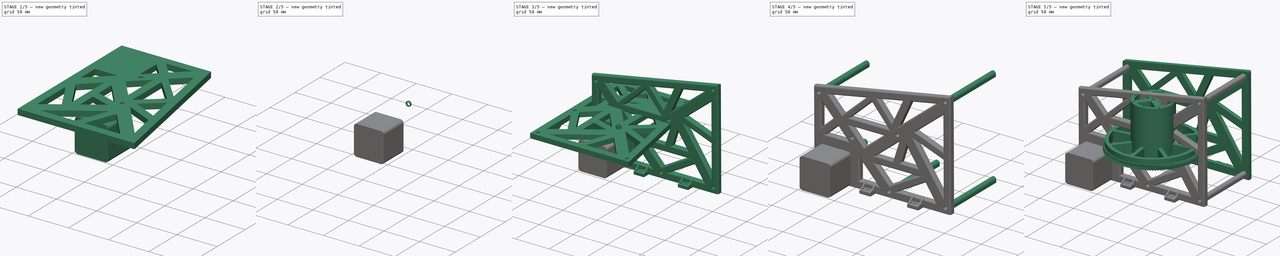
[diagram: build sequence overview — one tinted view per stage of 5, left to right]
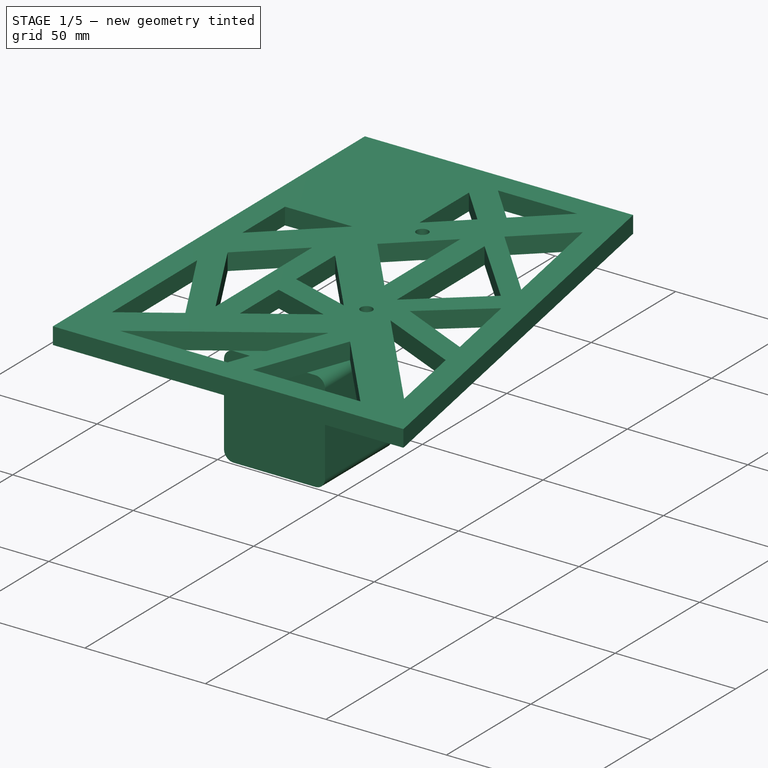
[diagram: stage 1 of 5 — iso view after this stage's code; geometry added in this stage tinted green]
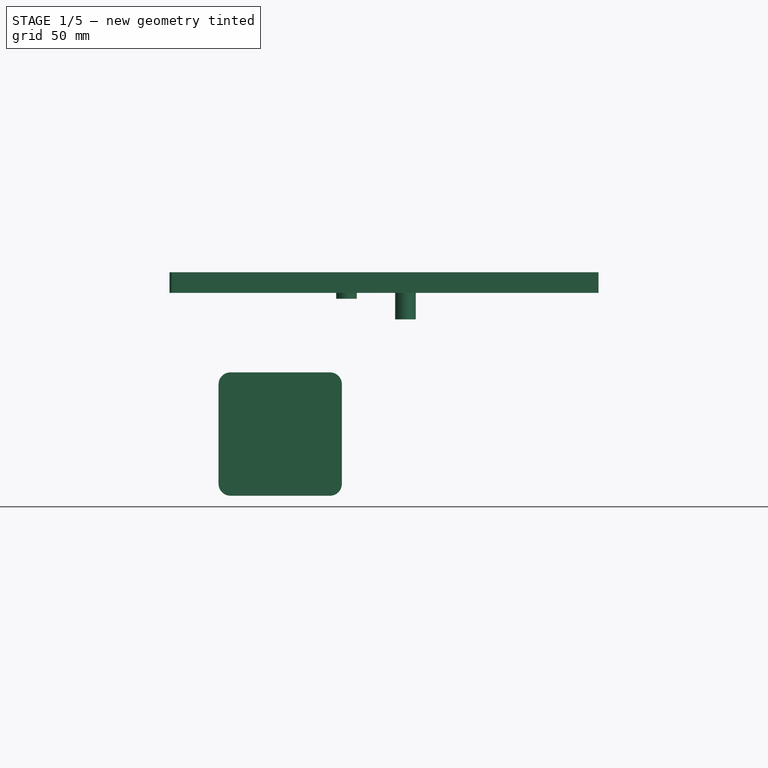
[diagram: stage 1 of 5 — front view after this stage's code; geometry added in this stage tinted green]
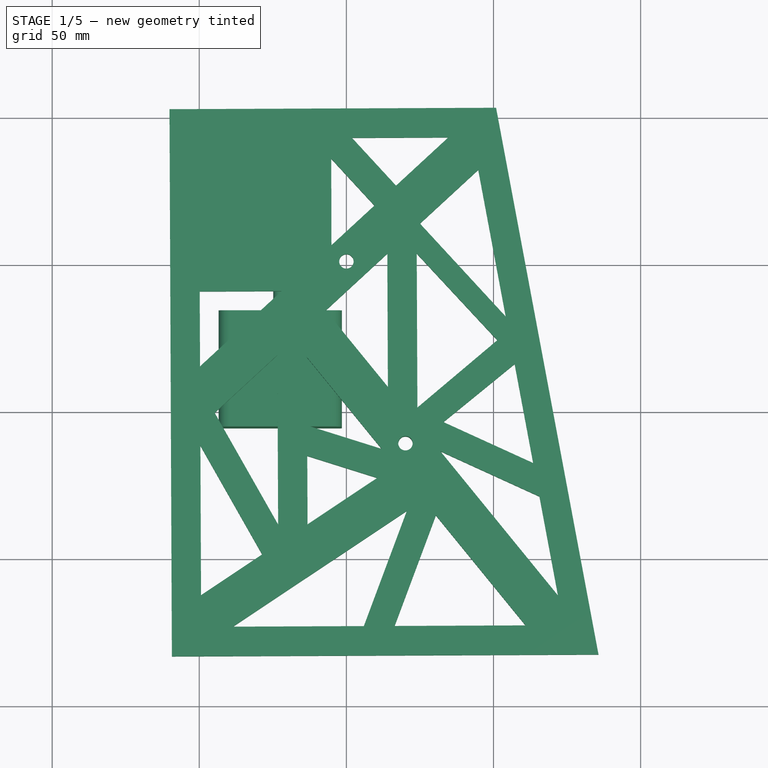
[diagram: stage 1 of 5 — top view after this stage's code; geometry added in this stage tinted green]
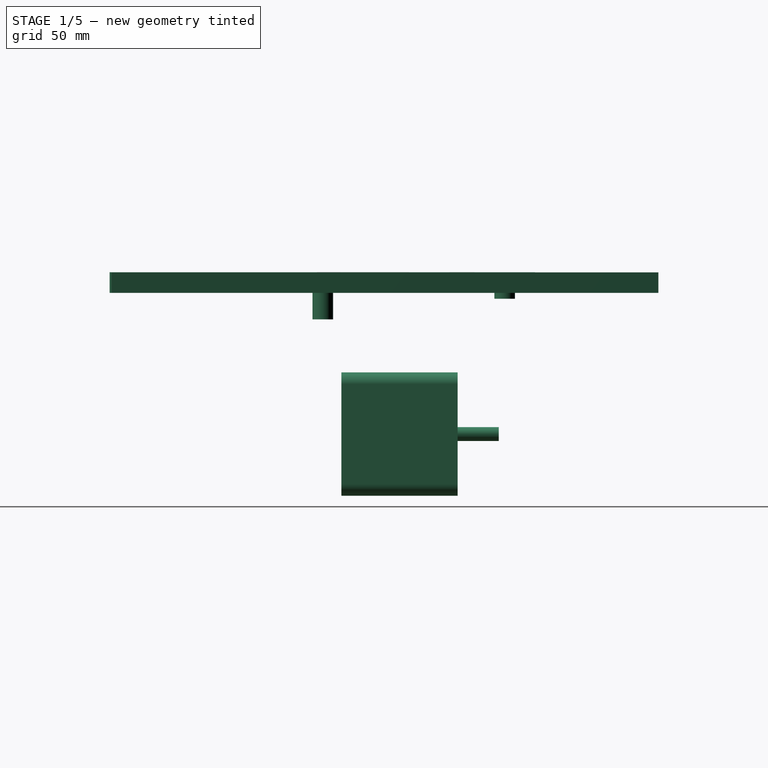
[diagram: stage 1 of 5 — right view after this stage's code; geometry added in this stage tinted green]
FCSTD DOCUMENT  (FreeCAD 0.21R33771 (Git))
Label: reductor
License: All rights reserved
LicenseURL: http://en.wikipedia.org/wiki/All_rights_reserved
objects: Sketcher::SketchObject×53, PartDesign::Pad×27, PartDesign::Pocket×24, Part::FeaturePython×14, PartDesign::Body×9, PartDesign::Fillet×7, PartDesign::ShapeBinder×5, PartDesign::FeaturePython×4, PartDesign::Plane×4, PartDesign::Hole×3, App::DocumentObjectGroup×3, App::Part×3, Part::MultiFuse×1
note: 212 computed .brp shape members not serialized (recipe doc carries the construction recipe); baked Part::Feature solids carry a one-line shape summary decoded from their .brp

FEATURE [PartDesign::FeaturePython] InvoluteGear  # WARN: FeaturePython — macro-defined, semantics opaque (R4)
  AttacherType = Attacher::AttachEngine3D
  Placement = pos=(-22.5,-38.9711,0.00045675) rot=(0,0,-1;1.25689rad)
  angular_backlash = 0
  backlash = 0
  beta = -15
  clearance = 0.25
  da = 12
  df = 7.5
  double_helix = true
  dw = 10
  head = 0
  head_fillet = 0
  height = 7
  module = 1
  numpoints = 6
  pressure_angle = 20
  properties_from_tool = false
  reversed_backlash = false
  root_fillet = 0
  shift = 0
  simple = false
  teeth = 10
  transverse_pitch = 3.14159
  undercut = false
  version = 0.0.4
  expr: angular_backlash = backlash / dw * 360 ° / pi
  expr: dw = teeth * module
FEATURE [Sketcher::SketchObject] Sketch
  FullyConstrained = true
  MapMode = 5
  Placement = pos=(-22.5,-38.9715,7.00091) rot=(2.8e-05,2.7e-05,-1;1.25689rad)
  Support = -> [InvoluteGear]
  sketch-geometry (1):
    g0: Circle CenterX=0 CenterY=0 CenterZ=0 NormalX=0 NormalY=0 NormalZ=1 AngleXU=0 Radius=2.35
  constraints (2):
    c: Coincident(g0,g-1)
    c: Diameter(g0) = 4.7
FEATURE [PartDesign::Pocket] Pocket
  BaseFeature = -> InvoluteGear
  Direction = (-5.74635e-06,4.52544e-05,-1)
  Length = 5
  Length2 = 5
  Placement = pos=(-22.5,-38.9711,0.00045675) rot=(0,0,-1;1.25689rad)
  Profile = -> Sketch
  ReferenceAxis = -> Sketch [N_Axis]
  Type = 0
FEATURE [PartDesign::Body] Body  label="малая ведущая"
  Group = -> [InvoluteGear,Sketch,Pocket]
  Origin = -> Origin
  Placement = pos=(0,0,0) rot=(1,0,0;1.5708rad)
  Tip = -> Pocket
FEATURE [PartDesign::FeaturePython] InvoluteGear001  # WARN: FeaturePython — macro-defined, semantics opaque (R4)
  AttacherType = Attacher::AttachEngine3D
  MapMode = 5
  Placement = pos=(1.45995e-08,1.48649e-08,0.00045675) rot=(-1.4e-05,4.6e-05,1;0.981748rad)
  angular_backlash = 0
  backlash = 0
  beta = 15
  clearance = 0.25
  da = 82
  df = 77.5
  double_helix = true
  dw = 80
  head = 0
  head_fillet = 0
  height = 7
  module = 1
  numpoints = 6
  pressure_angle = 20
  properties_from_tool = false
  reversed_backlash = false
  root_fillet = 0
  shift = 0
  simple = false
  teeth = 80
  transverse_pitch = 3.14159
  undercut = false
  version = 0.0.4
  expr: angular_backlash = backlash / dw * 360 ° / pi
  expr: dw = teeth * module
FEATURE [Sketcher::SketchObject] Sketch001
  FullyConstrained = false
  MapMode = 5
  Placement = pos=(0.000223828,0.000227777,7.00046) rot=(-1.4e-05,4.6e-05,1;0.981748rad)
  Support = -> [InvoluteGear001]
  sketch-geometry (23):
    g0: Circle CenterX=0 CenterY=0 CenterZ=0 NormalX=0 NormalY=0 NormalZ=1 AngleXU=0 Radius=12.5
    g1: Circle CenterX=0 CenterY=0 CenterZ=0 NormalX=0 NormalY=0 NormalZ=1 AngleXU=0 Radius=38.75
    g2: LineSegment StartX=-2.5 StartY=12.2474 StartZ=0 EndX=-2.5 EndY=33.6573 EndZ=0
    g3: LineSegment StartX=2.5 StartY=12.2474 StartZ=0 EndX=2.5 EndY=33.6573 EndZ=0
    g4: LineSegment StartX=12.2474 StartY=2.5 StartZ=0 EndX=33.6573 EndY=2.5 EndZ=0
    g5: LineSegment StartX=12.2474 StartY=-2.5 StartZ=0 EndX=33.6573 EndY=-2.5 EndZ=0
    g6: LineSegment StartX=-12.2474 StartY=2.5 StartZ=0 EndX=-33.6573 EndY=2.5 EndZ=0
    g7: LineSegment StartX=-12.2474 StartY=-2.5 StartZ=0 EndX=-33.6573 EndY=-2.5 EndZ=0
    g8: LineSegment StartX=-2.5 StartY=-12.2474 StartZ=0 EndX=-2.5 EndY=-33.6573 EndZ=0
    g9: LineSegment StartX=2.5 StartY=-12.2474 StartZ=0 EndX=2.5 EndY=-33.6573 EndZ=0
    g10: ArcOfCircle CenterX=0 CenterY=0 CenterZ=0 NormalX=0 NormalY=0 NormalZ=1 AngleXU=0 Radius=12.5 StartAngle=1.77215 EndAngle=2.94023
    g11: ArcOfCircle CenterX=0 CenterY=0 CenterZ=0 NormalX=0 NormalY=0 NormalZ=1 AngleXU=0 Radius=12.5 StartAngle=0.201358 EndAngle=1.36944
    g12: ArcOfCircle CenterX=0 CenterY=0 CenterZ=0 NormalX=0 NormalY=0 NormalZ=1 AngleXU=0 Radius=12.5 StartAngle=4.91375 EndAngle=6.08183
    g13: ArcOfCircle CenterX=0 CenterY=0 CenterZ=0 NormalX=0 NormalY=0 NormalZ=1 AngleXU=0 Radius=12.5 StartAngle=3.34295 EndAngle=4.51103
    g14: ArcOfCircle CenterX=0 CenterY=0 CenterZ=0 NormalX=0 NormalY=0 NormalZ=1 AngleXU=0 Radius=33.75 StartAngle=1.64494 EndAngle=3.06745
    g15: ArcOfCircle CenterX=0 CenterY=0 CenterZ=0 NormalX=0 NormalY=0 NormalZ=1 AngleXU=0 Radius=33.75 StartAngle=0.074142 EndAngle=1.49665
    g16: ArcOfCircle CenterX=0 CenterY=0 CenterZ=0 NormalX=0 NormalY=0 NormalZ=1 AngleXU=0 Radius=33.75 StartAngle=4.78653 EndAngle=6.20904
    g17: ArcOfCircle CenterX=0 CenterY=0 CenterZ=0 NormalX=0 NormalY=0 NormalZ=1 AngleXU=0 Radius=33.75 StartAngle=3.21573 EndAngle=4.63825
    g18: LineSegment StartX=-2.5 StartY=12.2474 StartZ=0 EndX=2.5 EndY=12.2474 EndZ=0
    g19: LineSegment StartX=12.2474 StartY=2.5 StartZ=0 EndX=12.2474 EndY=-2.5 EndZ=0
    g20: LineSegment StartX=2.5 StartY=-12.2474 StartZ=0 EndX=-2.5 EndY=-12.2474 EndZ=0
    g21: LineSegment StartX=-12.2474 StartY=2.5 StartZ=0 EndX=-12.2474 EndY=-2.5 EndZ=0
    g22: LineSegment StartX=8.04309 StartY=32.7776 StartZ=0 EndX=9.23466 EndY=37.6336 EndZ=0
  constraints (62):
    c: Coincident(g0,g-1)
    c: Diameter(g0) = 25
    c: Coincident(g1,g0)
    c: Vertical(g2)
    c: PointOnObject(g3,g0)
    c: Vertical(g3)
    c: Horizontal(g4)
    c: PointOnObject(g5,g0)
    c: Horizontal(g5)
    c: PointOnObject(g6,g0)
    c: Horizontal(g6)
    c: Horizontal(g7)
    c: PointOnObject(g8,g0)
    c: Vertical(g8)
    c: Vertical(g9)
    c: Equal(g9,g8)
    c: Equal(g8,g6)
    c: Equal(g6,g7)
    c: Equal(g7,g2)
    c: Equal(g2,g3)
    c: Equal(g3,g4)
    c: Equal(g4,g5)
    c: Coincident(g10,g0)
    c: Coincident(g10,g6)
    c: Coincident(g11,g10)
    c: Coincident(g11,g3)
    c: Coincident(g12,g10)
    c: Coincident(g12,g5)
    c: Coincident(g13,g10)
    c: Coincident(g13,g8)
    c: Coincident(g14,g10)
    c: Coincident(g14,g6)
    c: Coincident(g14,g2)
    c: Coincident(g15,g10)
    c: Coincident(g15,g3)
    c: Coincident(g15,g4)
    c: Coincident(g16,g10)
    c: Coincident(g16,g5)
    c: Coincident(g16,g9)
    c: Coincident(g17,g10)
    c: Coincident(g17,g8)
    c: Coincident(g17,g7)
    c: Coincident(g10,g2)
    c: Coincident(g11,g4)
    c: Coincident(g12,g9)
    c: Coincident(g7,g13)
    c: Coincident(g18,g2)
    c: Horizontal(g18)
    c: Coincident(g18,g3)
    c: Coincident(g19,g4)
    c: Vertical(g19)
    c: Coincident(g19,g5)
    c: Coincident(g20,g9)
    c: Coincident(g20,g8)
    c: Horizontal(g20)
    c: Coincident(g21,g6)
    c: Coincident(g21,g7)
    c: PointOnObject(g22,g15)
    c: PointOnObject(g22,g1)
    c: Perpendicular(g15,g22)
    c: Distance(g22) = 5
    c: DistanceX(g18,g18) = 5
FEATURE [PartDesign::Pocket] Pocket001
  BaseFeature = -> InvoluteGear001
  Direction = (-3.19734e-05,-3.25374e-05,-1)
  Length = 8
  Length2 = 5
  Placement = pos=(1.45995e-08,1.48649e-08,0.00045675) rot=(-1.4e-05,4.6e-05,1;0.981748rad)
  Profile = -> Sketch001
  ReferenceAxis = -> Sketch001 [N_Axis]
  Type = 0
FEATURE [Sketcher::SketchObject] Sketch002
  FullyConstrained = true
  MapMode = 5
  Placement = pos=(0.000223828,0.000227777,7.00046) rot=(-1.4e-05,4.6e-05,1;0.981748rad)
  Support = -> [Pocket001]
  sketch-geometry (1):
    g0: Circle CenterX=0 CenterY=0 CenterZ=0 NormalX=0 NormalY=0 NormalZ=1 AngleXU=0 Radius=7.85
  constraints (2):
    c: Coincident(g0,g-1)
    c: Diameter(g0) = 15.7
FEATURE [PartDesign::Pocket] Pocket002
  BaseFeature = -> Pocket001
  Direction = (-3.19734e-05,-3.25374e-05,-1)
  Length = 5.2
  Length2 = 5
  Placement = pos=(1.45995e-08,1.48649e-08,0.00045675) rot=(-1.4e-05,4.6e-05,1;0.981748rad)
  Profile = -> Sketch002
  ReferenceAxis = -> Sketch002 [N_Axis]
  Type = 0
FEATURE [Sketcher::SketchObject] Sketch003
  FullyConstrained = true
  MapMode = 5
  Placement = pos=(5.75667e-05,5.85821e-05,1.80046) rot=(-1.4e-05,4.6e-05,1;0.981748rad)
  Support = -> [Pocket002]
  sketch-geometry (1):
    g0: Circle CenterX=0 CenterY=0 CenterZ=0 NormalX=0 NormalY=0 NormalZ=1 AngleXU=0 Radius=2.45
  constraints (2):
    c: Coincident(g0,g-1)
    c: Diameter(g0) = 4.9
FEATURE [PartDesign::Pocket] Pocket003
  BaseFeature = -> Pocket002
  Direction = (-3.19734e-05,-3.25374e-05,-1)
  Length = 5
  Length2 = 5
  Placement = pos=(1.45995e-08,1.48649e-08,0.00045675) rot=(-1.4e-05,4.6e-05,1;0.981748rad)
  Profile = -> Sketch003
  ReferenceAxis = -> Sketch003 [N_Axis]
  Type = 0
FEATURE [Sketcher::SketchObject] Sketch008
  FullyConstrained = true
  MapMode = 5
  Placement = pos=(1.46179e-08,1.48836e-08,0.000457323) rot=(0.881921,0.471397,-2.2e-05;3.14158rad)
  Support = -> [Pocket003]
  sketch-geometry (2):
    g0: Circle CenterX=0 CenterY=0 CenterZ=0 NormalX=0 NormalY=0 NormalZ=1 AngleXU=0 Radius=6
    g1: Circle CenterX=0 CenterY=0 CenterZ=0 NormalX=0 NormalY=0 NormalZ=1 AngleXU=0 Radius=2.45
  constraints (4):
    c: Coincident(g0,g-1)
    c: Diameter(g0) = 12
    c: Coincident(g1,g0)
    c: Diameter(g1) = 4.9
FEATURE [PartDesign::Pad] Pad
  BaseFeature = -> Pocket003
  Direction = (-3.20348e-05,-3.26341e-05,-1)
  Length = 0.4
  Length2 = 10
  Placement = pos=(1.45995e-08,1.48649e-08,0.00045675) rot=(-1.4e-05,4.6e-05,1;0.981748rad)
  Profile = -> Sketch008
  ReferenceAxis = -> Sketch008 [N_Axis]
  Type = 0
FEATURE [PartDesign::Body] Body002  label="малая переходная"
  Group = -> [InvoluteGear002,Sketch009,Pocket007]
  Origin = -> Origin002
  Placement = pos=(0,0.4,0) rot=(1,0,0;1.5708rad)
  Tip = -> Pocket007
FEATURE [PartDesign::ShapeBinder] ReferencePocket
  Placement = pos=(-22.5,-38.9711,0.00045675) rot=(0,0,-1;1.25689rad)
  Support = -> [Pocket]
  TraceSupport = false
FEATURE [Sketcher::SketchObject] Sketch010
  ExternalGeometry = -> [ReferencePocket]
  FullyConstrained = true
  MapMode = 5
  Placement = pos=(-22.5,-38.9715,7.00091) rot=(2.8e-05,2.7e-05,-1;1.25689rad)
  Support = -> [ReferencePocket]
  sketch-geometry (1):
    g0: Circle CenterX=0 CenterY=0 CenterZ=0 NormalX=0 NormalY=0 NormalZ=1 AngleXU=0 Radius=2.35
  constraints (2):
    c: Coincident(g0,g-3)
    c: Tangent(g0,g-3)
FEATURE [PartDesign::Pad] Pad001
  Direction = (5.74635e-06,-4.52544e-05,1)
  Length = 5
  Length2 = 10
  Placement = pos=(-22.5,-38.9711,0.00045675) rot=(0,0,-1;1.25689rad)
  Profile = -> Sketch010
  ReferenceAxis = -> Sketch010 [N_Axis]
  Reversed = true
  Type = 0
FEATURE [PartDesign::Pad] Pad002
  BaseFeature = -> Pad001
  Direction = (5.74635e-06,-4.52544e-05,1)
  Length = 9
  Length2 = 10
  Placement = pos=(-22.5,-38.9711,0.00045675) rot=(0,0,-1;1.25689rad)
  Profile = -> Sketch010
  ReferenceAxis = -> Sketch010 [N_Axis]
  Type = 0
FEATURE [PartDesign::Body] Body004  label="Тело004"
  Group = -> [ReferencePocket,Sketch010,Pad001,Pad002]
  Origin = -> Origin005
  Placement = pos=(0,0,0) rot=(1,0,0;1.5708rad)
  Tip = -> Pad002
FEATURE [PartDesign::ShapeBinder] ReferencePad002
  Placement = pos=(5.17171e-05,-0.000407289,9) rot=(0,0,1;0rad)
  Support = -> [Pad002]
  TraceSupport = false
FEATURE [Sketcher::SketchObject] Sketch011
  ExternalGeometry = -> [ReferencePad002]
  FullyConstrained = true
  MapMode = 5
  Placement = pos=(9.19562e-05,-0.000724185,16.0025) rot=(0.992034,0.125967,3e-06;4.6e-05rad)
  Support = -> [ReferencePad002]
  sketch-geometry (5):
    g0: LineSegment StartX=-43.45 StartY=-59.9211 StartZ=0 EndX=-43.45 EndY=-18.0211 EndZ=0
    g1: LineSegment StartX=-43.45 StartY=-18.0211 StartZ=0 EndX=-1.55 EndY=-18.0211 EndZ=0
    g2: LineSegment StartX=-1.55 StartY=-18.0211 StartZ=0 EndX=-1.55 EndY=-59.9211 EndZ=0
    g3: LineSegment StartX=-1.55 StartY=-59.9211 StartZ=0 EndX=-43.45 EndY=-59.9211 EndZ=0
    g4: GeomPoint X=-22.5 Y=-38.9711 Z=0
  constraints (12):
    c: Coincident(g0,g1)
    c: Coincident(g1,g2)
    c: Coincident(g2,g3)
    c: Coincident(g3,g0)
    c: Horizontal(g1)
    c: Horizontal(g3)
    c: Vertical(g0)
    c: Vertical(g2)
    c: Symmetric(g1,g0,g4)
    c: Coincident(g4,g-3)
    c: DistanceX(g1,g1) = 41.9
    c: DistanceY(g2,g2) = 41.9
FEATURE [PartDesign::Pad] Pad003
  Direction = (5.74635e-06,-4.52544e-05,1)
  Length = 39.5
  Length2 = 10
  Placement = pos=(5.17171e-05,-0.000407289,9) rot=(0,0,1;0rad)
  Profile = -> Sketch011
  ReferenceAxis = -> Sketch011 [N_Axis]
  Type = 0
FEATURE [PartDesign::Fillet] Fillet
  Base = -> Pad003 [Edge2,Edge1,Edge5,Edge8]
  BaseFeature = -> Pad003
  Placement = pos=(5.17171e-05,-0.000407289,9) rot=(0,0,1;0rad)
  Radius = 4
  SupportTransform = false
  UseAllEdges = false
FEATURE [PartDesign::Body] Body005  label="Тело005"
  Group = -> [ReferencePad002,Sketch011,Pad003,Fillet]
  Origin = -> Origin006
  Placement = pos=(0,0,0) rot=(1,0,0;1.5708rad)
  Tip = -> Fillet
FEATURE [PartDesign::ShapeBinder] ReferencePad
  Placement = pos=(1.45995e-08,1.48649e-08,0.00045675) rot=(-1.4e-05,4.6e-05,1;0.981748rad)
  Support = -> [Pad]
  TraceSupport = false
FEATURE [PartDesign::Plane] DatumPlane
  AttachmentOffset = pos=(0,0,0) rot=(0,0,1;0.593412rad)
  Length = 60.2632
  MapMode = 5
  Placement = pos=(0.000223828,0.000227777,7.00046) rot=(0,3.2e-05,1;1.57516rad)
  ResizeMode = 0
  Support = -> [ReferencePad]
  Width = 60.2632
FEATURE [Sketcher::SketchObject] Sketch012
  FullyConstrained = true
  MapMode = 5
  Placement = pos=(0.000223828,0.000227777,7.00046) rot=(0,3.2e-05,1;1.57516rad)
  Support = -> [DatumPlane]
  sketch-geometry (2):
    g0: Circle CenterX=0 CenterY=0 CenterZ=0 NormalX=0 NormalY=0 NormalZ=1 AngleXU=0 Radius=3.5
    g1: Circle CenterX=0 CenterY=0 CenterZ=0 NormalX=0 NormalY=0 NormalZ=1 AngleXU=0 Radius=2.45
  constraints (4):
    c: Coincident(g0,g-1)
    c: Diameter(g0) = 7
    c: Coincident(g1,g0)
    c: Diameter(g1) = 4.9
FEATURE [PartDesign::Pad] Pad004
  Direction = (3.19734e-05,3.25374e-05,1)
  Length = 2
  Length2 = 10
  Placement = pos=(0.000223828,0.000227777,7.00046) rot=(0,3.2e-05,1;1.57516rad)
  Profile = -> Sketch012
  ReferenceAxis = -> Sketch012 [N_Axis]
  Type = 0
FEATURE [Sketcher::SketchObject] Sketch013
  FullyConstrained = false
  MapMode = 5
  Placement = pos=(0.000287775,0.000292851,9.00046) rot=(0,3.2e-05,1;1.57516rad)
  Support = -> [Pad004]
  sketch-geometry (7):
    g0: LineSegment StartX=52 StartY=-51.1 StartZ=0 EndX=-134 EndY=-85.1 EndZ=0
    g1: LineSegment StartX=-134 StartY=-85.1 StartZ=0 EndX=-134 EndY=59.9 EndZ=0
    g2: LineSegment StartX=-134 StartY=59.9 StartZ=0 EndX=52 EndY=59.9 EndZ=0
    g3: LineSegment StartX=52 StartY=59.9 StartZ=0 EndX=52 EndY=-51.1 EndZ=0
    g4: LineSegment StartX=52 StartY=-51.1 StartZ=0 EndX=-134 EndY=-51.1 EndZ=0
    g5: LineSegment StartX=-17.8345 StartY=0 StartZ=0 EndX=-17.8345 EndY=59.9 EndZ=0
    g6: LineSegment StartX=0 StartY=0 StartZ=0 EndX=52 EndY=0 EndZ=0
  constraints (21):
    c: Coincident(g1,g0)
    c: Vertical(g1)
    c: Coincident(g2,g1)
    c: Horizontal(g2)
    c: Coincident(g3,g2)
    c: Coincident(g3,g0)
    c: Vertical(g3)
    c: Coincident(g4,g0)
    c: PointOnObject(g4,g1)
    c: Horizontal(g4)
    c: PointOnObject(g5,g-1)
    c: PointOnObject(g5,g2)
    c: Vertical(g5)
    c: DistanceY(g5,g5) = 59.9
    c: DistanceX(g4,g4) = 186
    c: DistanceY(g3,g3) = 111
    c: DistanceY(g1,g1) = 145
    c: Coincident(g6,g-1)
    c: Horizontal(g6)
    c: PointOnObject(g6,g3)
    c: DistanceX(g6,g6) = 52
FEATURE [PartDesign::Pad] Pad005
  BaseFeature = -> Pad004
  Direction = (3.19734e-05,3.25374e-05,1)
  Length = 7
  Length2 = 10
  Placement = pos=(0.000223828,0.000227777,7.00046) rot=(0,3.2e-05,1;1.57516rad)
  Profile = -> Sketch013
  ReferenceAxis = -> Sketch013 [N_Axis]
  Type = 0
FEATURE [Sketcher::SketchObject] Sketch014
  ExternalGeometry = -> [Pad005]
  FullyConstrained = true
  MapMode = 5
  Placement = pos=(0.000511589,0.000520613,16.0005) rot=(0,3.2e-05,1;1.57516rad)
  Support = -> [Pad005]
  sketch-geometry (142):
    g0: LineSegment StartX=52 StartY=15 StartZ=0 EndX=0 EndY=15 EndZ=0
    g1: LineSegment StartX=0 StartY=15 StartZ=0 EndX=0 EndY=59.9 EndZ=0
    g2: Circle CenterX=-1e-16 CenterY=0 CenterZ=0 NormalX=0 NormalY=0 NormalZ=1 AngleXU=0 Radius=2.45
    g3: Circle CenterX=-61.9 CenterY=-19.8 CenterZ=0 NormalX=0 NormalY=0 NormalZ=1 AngleXU=0 Radius=2.45
    g4: LineSegment StartX=-61.9 StartY=-19.8 StartZ=0 EndX=-61.9 EndY=0 EndZ=0
    g5: LineSegment StartX=-61.9 StartY=-19.8 StartZ=0 EndX=0 EndY=-19.8 EndZ=0
    g6: LineSegment StartX=52 StartY=15 StartZ=0 EndX=0 EndY=15 EndZ=0
    g7: LineSegment StartX=0 StartY=15 StartZ=0 EndX=0 EndY=59.9 EndZ=0
    g8: LineSegment StartX=-1e-16 StartY=-15 StartZ=0 EndX=-1e-16 EndY=0 EndZ=0
    g9: LineSegment StartX=-1e-16 StartY=15 StartZ=0 EndX=-1e-16 EndY=0 EndZ=0
    g10: LineSegment StartX=-10 StartY=49.9 StartZ=0 EndX=-124 EndY=49.9 EndZ=0
    g11: LineSegment StartX=-124 StartY=49.9 StartZ=0 EndX=-124 EndY=-73.272 EndZ=0
    g12: LineSegment StartX=-124 StartY=-73.272 StartZ=0 EndX=42 EndY=-42.928 EndZ=0
    g13: LineSegment StartX=42 StartY=-42.928 StartZ=0 EndX=42 EndY=5 EndZ=0
    g14: LineSegment StartX=42 StartY=5 StartZ=0 EndX=-10 EndY=5 EndZ=0
    g15: LineSegment StartX=-10 StartY=5 StartZ=0 EndX=-10 EndY=49.9 EndZ=0
    g16: LineSegment StartX=42 StartY=5 StartZ=0 EndX=52 EndY=5 EndZ=0
    g17: LineSegment StartX=42 StartY=-42.928 StartZ=0 EndX=42 EndY=-52.928 EndZ=0
    g18: LineSegment StartX=-124 StartY=-73.272 StartZ=0 EndX=-134 EndY=-73.272 EndZ=0
    g19: LineSegment StartX=-124 StartY=49.9 StartZ=0 EndX=-124 EndY=59.9 EndZ=0
    g20: LineSegment StartX=-10 StartY=49.9 StartZ=0 EndX=0 EndY=49.9 EndZ=0
    g21: LineSegment StartX=42 StartY=5 StartZ=0 EndX=42 EndY=15 EndZ=0
    g22: LineSegment StartX=42 StartY=-34.8315 StartZ=0 EndX=-35.4515 EndY=49.9 EndZ=0
    g23: LineSegment StartX=30.9284 StartY=-44.9518 StartZ=0 EndX=-55.7739 EndY=49.9 EndZ=0
    g24: LineSegment StartX=30.9284 StartY=-44.9518 StartZ=0 EndX=42 EndY=-34.8315 EndZ=0
    g25: LineSegment StartX=-35.4515 StartY=49.9 StartZ=0 EndX=-46.5231 EndY=39.7797 EndZ=0
    g26: LineSegment StartX=-1e-16 StartY=0 StartZ=0 EndX=5.53578 EndY=5.06015 EndZ=0
    g27: LineSegment StartX=-1e-16 StartY=0 StartZ=0 EndX=-5.53578 EndY=-5.06015 EndZ=0
    g28: LineSegment StartX=-16.6697 StartY=7.12034 StartZ=0 EndX=-113.88 EndY=-71.4221 EndZ=0
    g29: LineSegment StartX=-26.7901 StartY=18.1919 StartZ=0 EndX=-124 EndY=-60.3505 EndZ=0
    g30: LineSegment StartX=-113.88 StartY=-71.4221 StartZ=0 EndX=-124 EndY=-60.3505 EndZ=0
    g31: LineSegment StartX=-61.9 StartY=-19.8 StartZ=0 EndX=-57.1953 EndY=-25.6229 EndZ=0
    g32: LineSegment StartX=-61.9 StartY=-19.8 StartZ=0 EndX=-66.6047 EndY=-13.9771 EndZ=0
    g33: LineSegment StartX=11.6998 StartY=-23.9157 StartZ=0 EndX=-55.0823 EndY=-23.9157 EndZ=0
    g34: LineSegment StartX=2.55894 StartY=-13.9157 StartZ=0 EndX=-42.7055 EndY=-13.9157 EndZ=0
    g35: LineSegment StartX=2.55894 StartY=-23.9157 StartZ=0 EndX=2.55894 EndY=-13.9157 EndZ=0
    g36: LineSegment StartX=11.6998 StartY=-23.9157 StartZ=0 EndX=30.9284 EndY=-44.9518 EndZ=0
    g37: LineSegment StartX=2.55894 StartY=-13.9157 StartZ=0 EndX=-16.6697 EndY=7.12034 EndZ=0
    g38: LineSegment StartX=-69.5613 StartY=-16.3658 StartZ=0 EndX=-113.222 EndY=49.9 EndZ=0
    g39: LineSegment StartX=-81.2288 StartY=-25.7928 StartZ=0 EndX=-124 EndY=39.1224 EndZ=0
    g40: LineSegment StartX=-124 StartY=39.1224 StartZ=0 EndX=-112.332 EndY=48.5494 EndZ=0
    g41: LineSegment StartX=-113.222 StartY=49.9 StartZ=0 EndX=-124 EndY=49.9 EndZ=0
    g42: LineSegment StartX=-124 StartY=39.1224 StartZ=0 EndX=-124 EndY=49.9 EndZ=0
    g43: LineSegment StartX=-69.5613 StartY=-16.3658 StartZ=0 EndX=-26.7901 EndY=18.1919 EndZ=0
    g44: LineSegment StartX=-81.2288 StartY=-25.7928 StartZ=0 EndX=-124 EndY=-60.3505 EndZ=0
    g45: LineSegment StartX=-32.4819 StartY=13.593 StartZ=0 EndX=-89.3005 EndY=13.593 EndZ=0
    g46: LineSegment StartX=-31.7271 StartY=23.593 StartZ=0 EndX=-95.8893 EndY=23.593 EndZ=0
    g47: LineSegment StartX=-32.4819 StartY=13.593 StartZ=0 EndX=-26.7901 EndY=18.1919 EndZ=0
    g48: LineSegment StartX=-26.7901 StartY=18.1919 StartZ=0 EndX=-31.7271 EndY=23.593 EndZ=0
    g49: LineSegment StartX=-32.4819 StartY=13.593 StartZ=0 EndX=-32.4819 EndY=23.593 EndZ=0
    g50: LineSegment StartX=-20.3378 StartY=33.3657 StartZ=0 EndX=-10 EndY=42.8289 EndZ=0
    g51: LineSegment StartX=-27.0847 StartY=40.7467 StartZ=0 EndX=-17.0711 EndY=49.9 EndZ=0
    g52: LineSegment StartX=-17.0711 StartY=49.9 StartZ=0 EndX=-10 EndY=49.9 EndZ=0
    g53: LineSegment StartX=-10 StartY=42.8289 StartZ=0 EndX=-10 EndY=49.9 EndZ=0
    g54: LineSegment StartX=42 StartY=-2.07107 StartZ=0 EndX=25.6857 EndY=-16.9837 EndZ=0
    g55: LineSegment StartX=18.9456 StartY=-9.61009 StartZ=0 EndX=34.9289 EndY=5 EndZ=0
    g56: LineSegment StartX=42 StartY=-2.07107 StartZ=0 EndX=42 EndY=5 EndZ=0
    g57: LineSegment StartX=34.9289 StartY=5 StartZ=0 EndX=42 EndY=5 EndZ=0
    g58: LineSegment StartX=-51.2854 StartY=44.9896 StartZ=0 EndX=-89.3416 EndY=23.593 EndZ=0
    g59: LineSegment StartX=-99.4917 StartY=29.0606 StartZ=0 EndX=-62.4266 EndY=49.9 EndZ=0
    g60: LineSegment StartX=-51.2854 StartY=44.9896 StartZ=0 EndX=-55.7739 EndY=49.9 EndZ=0
    g61: LineSegment StartX=-55.7739 StartY=49.9 StartZ=0 EndX=-62.4266 EndY=49.9 EndZ=0
    g62: LineSegment StartX=-89.3416 StartY=23.593 StartZ=0 EndX=-95.8893 EndY=23.593 EndZ=0
    g63: LineSegment StartX=-99.4917 StartY=29.0606 StartZ=0 EndX=-95.8893 EndY=23.593 EndZ=0
    g64: LineSegment StartX=-62.4266 StartY=49.9 StartZ=0 EndX=-55.6797 EndY=42.519 EndZ=0
    g65: LineSegment StartX=-113.222 StartY=49.9 StartZ=0 EndX=-99.4917 EndY=29.0606 EndZ=0
    g66: LineSegment StartX=-99.4917 StartY=29.0606 StartZ=0 EndX=-62.4266 EndY=49.9 EndZ=0
    g67: LineSegment StartX=-62.4266 StartY=49.9 StartZ=0 EndX=-113.222 EndY=49.9 EndZ=0
    g68: LineSegment StartX=-35.4515 StartY=49.9 StartZ=0 EndX=-10 EndY=49.9 EndZ=0
    g69: LineSegment StartX=-10 StartY=49.9 StartZ=0 EndX=-10 EndY=22.0562 EndZ=0
    g70: LineSegment StartX=-10 StartY=22.0562 StartZ=0 EndX=-35.4515 EndY=49.9 EndZ=0
    g71: LineSegment StartX=-51.2854 StartY=44.9896 StartZ=0 EndX=-89.3416 EndY=23.593 EndZ=0
    g72: LineSegment StartX=-89.3416 StartY=23.593 StartZ=0 EndX=-31.7271 EndY=23.593 EndZ=0
    g73: LineSegment StartX=-31.7271 StartY=23.593 StartZ=0 EndX=-51.2854 EndY=44.9896 EndZ=0
    g74: LineSegment StartX=-16.6697 StartY=7.12034 StartZ=0 EndX=2.55894 EndY=-13.9157 EndZ=0
    g75: LineSegment StartX=2.55894 StartY=-13.9157 StartZ=0 EndX=-42.7055 EndY=-13.9157 EndZ=0
    g76: LineSegment StartX=-16.6697 StartY=7.12034 StartZ=0 EndX=-42.7055 EndY=-13.9157 EndZ=0
    g77: LineSegment StartX=34.9289 StartY=5 StartZ=0 EndX=18.9456 EndY=-9.61009 EndZ=0
    g78: LineSegment StartX=18.9456 StartY=-9.61009 StartZ=0 EndX=5.53578 EndY=5.06015 EndZ=0
    g79: LineSegment StartX=5.53578 StartY=5.06015 StartZ=0 EndX=34.9289 EndY=5 EndZ=0
    g80: LineSegment StartX=42 StartY=-2.07107 StartZ=0 EndX=25.6857 EndY=-16.9837 EndZ=0
    g81: LineSegment StartX=42 StartY=-34.8315 StartZ=0 EndX=25.6857 EndY=-16.9837 EndZ=0
    g82: LineSegment StartX=42 StartY=-34.8315 StartZ=0 EndX=42 EndY=-2.07107 EndZ=0
    g83: LineSegment StartX=-59.2073 StartY=-27.2486 StartZ=0 EndX=-35.1451 EndY=-57.0298 EndZ=0
    g84: LineSegment StartX=-49.7791 StartY=-23.9157 StartZ=0 EndX=-23.8427 EndY=-54.9637 EndZ=0
    g85: LineSegment StartX=-59.2073 StartY=-27.2486 StartZ=0 EndX=-55.0823 EndY=-23.9157 EndZ=0
    g86: LineSegment StartX=-55.0823 StartY=-23.9157 StartZ=0 EndX=-49.7791 EndY=-23.9157 EndZ=0
    g87: LineSegment StartX=-35.1451 StartY=-57.0298 StartZ=0 EndX=-27.3668 EndY=-50.7451 EndZ=0
    g88: LineSegment StartX=-59.2073 StartY=-27.2486 StartZ=0 EndX=-49.7791 EndY=-23.9157 EndZ=0
    g89: LineSegment StartX=2.81644 StartY=-23.9157 StartZ=0 EndX=-27.0065 EndY=-51.1763 EndZ=0
    g90: LineSegment StartX=12.7502 StartY=-25.0649 StartZ=0 EndX=-18.9881 EndY=-54.0763 EndZ=0
    g91: LineSegment StartX=-27.0065 StartY=-51.1763 StartZ=0 EndX=-23.8427 EndY=-54.9637 EndZ=0
    g92: LineSegment StartX=-23.8427 StartY=-54.9637 StartZ=0 EndX=-18.9881 EndY=-54.0763 EndZ=0
    g93: LineSegment StartX=2.81644 StartY=-23.9157 StartZ=0 EndX=12.7502 EndY=-25.0649 EndZ=0
    g94: LineSegment StartX=-54.7634 StartY=-32.7488 StartZ=0 EndX=-68.8158 EndY=-63.1846 EndZ=0
    g95: LineSegment StartX=-80.2091 StartY=-65.2672 StartZ=0 EndX=-64.7075 EndY=-31.6925 EndZ=0
    g96: LineSegment StartX=-54.7634 StartY=-32.7488 StartZ=0 EndX=-59.2073 EndY=-27.2486 EndZ=0
    g97: LineSegment StartX=-59.2073 StartY=-27.2486 StartZ=0 EndX=-64.7075 EndY=-31.6925 EndZ=0
    g98: LineSegment StartX=-68.8158 StartY=-63.1846 StartZ=0 EndX=-80.2091 EndY=-65.2672 EndZ=0
    g99: LineSegment StartX=-54.7634 StartY=-32.7488 StartZ=0 EndX=-64.7075 EndY=-31.6925 EndZ=0
    g100: LineSegment StartX=-35.1451 StartY=-57.0298 StartZ=0 EndX=-68.8158 EndY=-63.1846 EndZ=0
    g101: LineSegment StartX=-80.2091 StartY=-65.2672 StartZ=0 EndX=-113.88 EndY=-71.4221 EndZ=0
    g102: LineSegment StartX=-86.4805 StartY=-30.036 StartZ=0 EndX=-124 EndY=-15.8453 EndZ=0
    g103: LineSegment StartX=-84.9435 StartY=-20.1549 StartZ=0 EndX=-124 EndY=-5.38284 EndZ=0
    g104: LineSegment StartX=-81.2288 StartY=-25.7928 StartZ=0 EndX=-86.4805 EndY=-30.036 EndZ=0
    g105: LineSegment StartX=-81.2288 StartY=-25.7928 StartZ=0 EndX=-84.9435 EndY=-20.1549 EndZ=0
    g106: LineSegment StartX=-124 StartY=-15.8453 StartZ=0 EndX=-124 EndY=-5.38284 EndZ=0
    g107: LineSegment StartX=-86.4805 StartY=-30.036 StartZ=0 EndX=-84.9435 EndY=-20.1549 EndZ=0
    g108: LineSegment StartX=-124 StartY=-60.3505 StartZ=0 EndX=-124 EndY=-15.8453 EndZ=0
    g109: LineSegment StartX=-124 StartY=-5.38284 StartZ=0 EndX=-124 EndY=39.1224 EndZ=0
    g110: LineSegment StartX=-124 StartY=39.1224 StartZ=0 EndX=-124 EndY=-5.38284 EndZ=0
    g111: LineSegment StartX=-124 StartY=-5.38284 StartZ=0 EndX=-84.9435 EndY=-20.1549 EndZ=0
    g112: LineSegment StartX=-84.9435 StartY=-20.1549 StartZ=0 EndX=-124 EndY=39.1224 EndZ=0
    g113: LineSegment StartX=-86.4805 StartY=-30.036 StartZ=0 EndX=-124 EndY=-60.3505 EndZ=0
    g114: LineSegment StartX=-124 StartY=-60.3505 StartZ=0 EndX=-124 EndY=-15.8453 EndZ=0
    g115: LineSegment StartX=-86.4805 StartY=-30.036 StartZ=0 EndX=-124 EndY=-15.8453 EndZ=0
    g116: LineSegment StartX=-64.7075 StartY=-31.6925 StartZ=0 EndX=-113.88 EndY=-71.4221 EndZ=0
    g117: LineSegment StartX=-80.2091 StartY=-65.2672 StartZ=0 EndX=-113.88 EndY=-71.4221 EndZ=0
    g118: LineSegment StartX=-80.2091 StartY=-65.2672 StartZ=0 EndX=-64.7075 EndY=-31.6925 EndZ=0
    g119: LineSegment StartX=-54.7634 StartY=-32.7488 StartZ=0 EndX=-68.8158 EndY=-63.1846 EndZ=0
    g120: LineSegment StartX=-35.1451 StartY=-57.0298 StartZ=0 EndX=-68.8158 EndY=-63.1846 EndZ=0
    g121: LineSegment StartX=-35.1451 StartY=-57.0298 StartZ=0 EndX=-54.7634 EndY=-32.7488 EndZ=0
    g122: LineSegment StartX=2.55894 StartY=-23.9157 StartZ=0 EndX=-27.0065 EndY=-51.1763 EndZ=0
    g123: LineSegment StartX=-27.0065 StartY=-51.1763 StartZ=0 EndX=-49.7791 EndY=-23.9157 EndZ=0
    g124: LineSegment StartX=-49.7791 StartY=-23.9157 StartZ=0 EndX=2.55894 EndY=-23.9157 EndZ=0
    g125: LineSegment StartX=30.9284 StartY=-44.9518 StartZ=0 EndX=12.7502 EndY=-25.0649 EndZ=0
    g126: LineSegment StartX=12.7502 StartY=-25.0649 StartZ=0 EndX=-18.9881 EndY=-54.0763 EndZ=0
    g127: LineSegment StartX=-18.9881 StartY=-54.0763 StartZ=0 EndX=30.9284 EndY=-44.9518 EndZ=0
    g128: LineSegment StartX=-63.7738 StartY=-11.6897 StartZ=0 EndX=-55.7054 EndY=13.593 EndZ=0
    g129: LineSegment StartX=-73.6549 StartY=-10.1527 StartZ=0 EndX=-66.0771 EndY=13.593 EndZ=0
    g130: LineSegment StartX=-63.7738 StartY=-11.6897 StartZ=0 EndX=-69.5613 EndY=-16.3658 EndZ=0
    g131: LineSegment StartX=-73.6549 StartY=-10.1527 StartZ=0 EndX=-69.5613 EndY=-16.3658 EndZ=0
    g132: LineSegment StartX=-73.6549 StartY=-10.1527 StartZ=0 EndX=-63.7738 EndY=-11.6897 EndZ=0
    g133: LineSegment StartX=-66.0771 StartY=13.593 StartZ=0 EndX=-55.7054 EndY=13.593 EndZ=0
    g134: LineSegment StartX=-55.7054 StartY=13.593 StartZ=0 EndX=-32.4819 EndY=13.593 EndZ=0
    g135: LineSegment StartX=-66.0771 StartY=13.593 StartZ=0 EndX=-89.3005 EndY=13.593 EndZ=0
    g136: LineSegment StartX=-32.4819 StartY=13.593 StartZ=0 EndX=-63.7738 EndY=-11.6897 EndZ=0
    g137: LineSegment StartX=-63.7738 StartY=-11.6897 StartZ=0 EndX=-55.7054 EndY=13.593 EndZ=0
    g138: LineSegment StartX=-55.7054 StartY=13.593 StartZ=0 EndX=-32.4819 EndY=13.593 EndZ=0
    g139: LineSegment StartX=-66.0771 StartY=13.593 StartZ=0 EndX=-89.3005 EndY=13.593 EndZ=0
    g140: LineSegment StartX=-73.6549 StartY=-10.1527 StartZ=0 EndX=-89.3005 EndY=13.593 EndZ=0
    g141: LineSegment StartX=-73.6549 StartY=-10.1527 StartZ=0 EndX=-66.0771 EndY=13.593 EndZ=0
  constraints (368):
    c: Horizontal(g0)
    c: PointOnObject(g0,g-4)
    c: Coincident(g1,g0)
    c: Vertical(g1)
    c: Block(g0)
    c: Coincident(g2,g-7)
    c: Diameter(g3) = 4.9
    c: Coincident(g4,g3)
    c: PointOnObject(g4,g-1)
    c: Vertical(g4)
    c: Coincident(g5,g3)
    c: PointOnObject(g5,g-2)
    c: Horizontal(g5)
    c: DistanceX(g5,g5) = 61.9
    c: DistanceY(g4,g4) = 19.8
    c: Horizontal(g6)
    c: Vertical(g7)
    c: PointOnObject(g6,g-4)
    c: Coincident(g7,g6)
    c: Coincident(g6,g0)
    c: PointOnObject(g7,g-6)
    c: Coincident(g8,g2)
    c: Parallel(g-2,g8)
    c: Coincident(g9,g2)
    c: Parallel(g9,g-2)
    c: Equal(g8,g9)
    c: DistanceY(g8,g8) = 15
    c: Horizontal(g10)
    c: Vertical(g11)
    c: Vertical(g13)
    c: Horizontal(g14)
    c: Vertical(g15)
    c: Coincident(g15,g14)
    c: Coincident(g10,g15)
    c: Coincident(g10,g11)
    c: Coincident(g11,g12)
    c: Coincident(g12,g13)
    c: Coincident(g13,g14)
    c: PointOnObject(g16,g-4)
    c: Horizontal(g16)
    c: DistanceX(g16,g16) = 10
    c: Parallel(g12,g-3)
    c: Coincident(g17,g12)
    c: PointOnObject(g17,g-3)
    c: Vertical(g17)
    c: DistanceY(g17,g17) = 10
    c: PointOnObject(g18,g-5)
    c: Horizontal(g18)
    c: DistanceX(g18,g18) = 10
    c: PointOnObject(g19,g-6)
    c: Vertical(g19)
    c: DistanceY(g19,g19) = 10
    c: PointOnObject(g20,g1)
    c: Horizontal(g20)
    c: DistanceX(g20,g20) = 10
    c: PointOnObject(g21,g0)
    c: Vertical(g21)
    c: DistanceY(g21,g21) = 10
    c: Diameter(g2) = 4.9
    c: PointOnObject(g1,g-6)
    c: Coincident(g20,g10)
    c: Coincident(g19,g10)
    c: Coincident(g18,g11)
    c: Coincident(g16,g13)
    c: Coincident(g21,g13)
    c: PointOnObject(g22,g13)
    c: PointOnObject(g22,g10)
    c: PointOnObject(g23,g12)
    c: PointOnObject(g23,g10)
    c: Coincident(g24,g23)
    c: Coincident(g24,g22)
    c: Distance(g24) = 15
    c: PointOnObject(g25,g23)
    c: Perpendicular(g22,g24)
    c: Perpendicular(g22,g25)
    c: Distance(g25) = 15
    c: Coincident(g26,g2)
    c: PointOnObject(g26,g22)
    c: Coincident(g27,g2)
    c: PointOnObject(g27,g23)
    c: Parallel(g27,g26)
    c: Equal(g27,g26)
    c: Distance(g27) = 7.5
    c: Coincident(g25,g22)
    c: PointOnObject(g28,g23)
    c: PointOnObject(g28,g12)
    c: PointOnObject(g29,g23)
    c: PointOnObject(g29,g11)
    c: Coincident(g30,g28)
    c: Coincident(g30,g29)
    c: Parallel(g30,g23)
    c: Distance(g30) = 15
    c: Distance(g28,g29) = 15
    c: Coincident(g31,g3)
    c: PointOnObject(g31,g28)
    c: Coincident(g32,g3)
    c: PointOnObject(g32,g29)
    c: Perpendicular(g29,g32)
    c: Parallel(g32,g31)
    c: Equal(g31,g32)
    c: PointOnObject(g33,g23)
    c: Horizontal(g33)
    c: PointOnObject(g34,g23)
    c: Horizontal(g34)
    c: PointOnObject(g34,g28)
    c: PointOnObject(g33,g28)
    c: PointOnObject(g35,g33)
    c: Vertical(g35)
    c: DistanceY(g35,g35) = 10
    c: Coincident(g36,g33)
    c: Coincident(g36,g23)
    c: Coincident(g37,g34)
    c: Coincident(g37,g28)
    c: Equal(g36,g37)
    c: PointOnObject(g38,g29)
    c: PointOnObject(g39,g29)
    c: PointOnObject(g39,g11)
    c: Coincident(g40,g39)
    c: PointOnObject(g40,g38)
    c: Parallel(g40,g29)
    c: Distance(g39,g38) = 15
    c: Distance(g40) = 15
    c: PointOnObject(g38,g10)
    c: Coincident(g41,g38)
    c: Coincident(g41,g10)
    c: Coincident(g42,g39)
    c: Coincident(g42,g10)
    c: Equal(g41,g42)
    c: Coincident(g43,g38)
    c: Coincident(g43,g29)
    c: Coincident(g44,g39)
    c: Coincident(g44,g29)
    c: Equal(g43,g44)
    c: PointOnObject(g45,g29)
    c: PointOnObject(g45,g38)
    c: Horizontal(g45)
    c: PointOnObject(g46,g23)
    c: PointOnObject(g46,g38)
    c: Horizontal(g46)
    c: Coincident(g47,g45)
    c: Coincident(g47,g29)
    c: Coincident(g48,g29)
    c: Coincident(g48,g46)
    c: PointOnObject(g49,g46)
    c: Vertical(g49)
    c: Equal(g47,g48)
    c: DistanceY(g49,g49) = 10
    c: Coincident(g49,g45)
    c: Coincident(g35,g34)
    c: PointOnObject(g50,g22)
    c: PointOnObject(g51,g22)
    c: Distance(g50,g51) = 10
    c: Distance(g50,g51) = 10
    c: Perpendicular(g22,g51)
    c: PointOnObject(g51,g10)
    c: PointOnObject(g50,g15)
    c: Coincident(g52,g51)
    c: Coincident(g52,g10)
    c: Coincident(g53,g50)
    c: Coincident(g53,g10)
    c: Equal(g52,g53)
    c: PointOnObject(g54,g13)
    c: PointOnObject(g54,g22)
    c: PointOnObject(g55,g22)
    c: PointOnObject(g55,g14)
    c: Parallel(g55,g54)
    c: Perpendicular(g22,g54)
    c: Distance(g55,g54) = 10
    c: Coincident(g56,g54)
    c: Coincident(g57,g55)
    c: Coincident(g57,g56)
    c: Coincident(g56,g13)
    c: Equal(g56,g57)
    c: PointOnObject(g58,g23)
    c: PointOnObject(g58,g46)
    c: PointOnObject(g59,g38)
    c: PointOnObject(g59,g10)
    c: Coincident(g60,g58)
    c: Coincident(g60,g23)
    c: Coincident(g61,g23)
    c: Coincident(g61,g59)
    c: Parallel(g58,g59)
    c: Equal(g60,g61)
    c: Coincident(g62,g58)
    c: Coincident(g62,g46)
    c: Coincident(g63,g59)
    c: Coincident(g63,g46)
    c: Equal(g62,g63)
    c: Coincident(g64,g59)
    c: PointOnObject(g64,g58)
    c: Parallel(g64,g23)
    c: Distance(g64) = 10
    c: Coincident(g65,g59)
    c: Coincident(g66,g65)
    c: Coincident(g66,g59)
    c: Coincident(g67,g66)
    c: Coincident(g67,g65)
    c: Coincident(g65,g38)
    c: Coincident(g68,g10)
    c: Coincident(g69,g68)
    c: PointOnObject(g69,g15)
    c: PointOnObject(g69,g22)
    c: Coincident(g70,g69)
    c: Coincident(g68,g70)
    c: Coincident(g68,g22)
    c: Coincident(g71,g58)
    c: Coincident(g71,g58)
    c: Coincident(g72,g71)
    c: Coincident(g72,g46)
    c: Coincident(g73,g72)
    c: Coincident(g73,g71)
    c: Coincident(g74,g28)
    c: Coincident(g74,g34)
    c: Coincident(g75,g74)
    c: Coincident(g75,g34)
    c: Coincident(g76,g74)
    c: Coincident(g76,g75)
    c: Coincident(g77,g55)
    c: Coincident(g77,g55)
    c: Coincident(g78,g77)
    c: Coincident(g78,g26)
    c: Coincident(g79,g78)
    c: Coincident(g79,g77)
    c: Coincident(g80,g54)
    c: Coincident(g80,g54)
    c: Coincident(g81,g22)
    c: Coincident(g81,g80)
    c: Coincident(g82,g81)
    c: Coincident(g82,g80)
    c: PointOnObject(g83,g28)
    c: PointOnObject(g84,g33)
    c: PointOnObject(g84,g12)
    c: Coincident(g85,g83)
    c: Coincident(g85,g33)
    c: Coincident(g86,g33)
    c: Coincident(g86,g84)
    c: Equal(g85,g86)
    c: PointOnObject(g87,g84)
    c: Parallel(g28,g87)
    c: Distance(g87) = 10
    c: Coincident(g88,g83)
    c: Coincident(g88,g84)
    c: Distance(g88) = 10
    c: Coincident(g87,g83)
    c: PointOnObject(g83,g12)
    c: Perpendicular(g28,g83)
    c: PointOnObject(g89,g33)
    c: PointOnObject(g89,g84)
    c: PointOnObject(g90,g23)
    c: PointOnObject(g90,g12)
    c: Coincident(g91,g89)
    c: Coincident(g91,g84)
    c: Coincident(g92,g84)
    c: Coincident(g92,g90)
    c: Coincident(g93,g89)
    c: Coincident(g93,g90)
    c: Equal(g91,g92)
    c: Perpendicular(g23,g90)
    c: Parallel(g90,g89)
    c: Distance(g93) = 10
    c: PointOnObject(g94,g83)
    c: PointOnObject(g94,g12)
    c: PointOnObject(g95,g12)
    c: PointOnObject(g95,g28)
    c: Coincident(g96,g94)
    c: Coincident(g96,g83)
    c: Coincident(g97,g83)
    c: Coincident(g97,g95)
    c: Coincident(g98,g94)
    c: Coincident(g98,g95)
    c: Coincident(g99,g94)
    c: Coincident(g99,g95)
    c: Equal(g96,g97)
    c: Parallel(g94,g95)
    c: Distance(g99) = 10
    c: Coincident(g100,g83)
    c: Coincident(g100,g94)
    c: Coincident(g101,g95)
    c: Coincident(g101,g28)
    c: Equal(g100,g101)
    c: PointOnObject(g102,g29)
    c: PointOnObject(g103,g39)
    c: PointOnObject(g103,g11)
    c: Parallel(g102,g103)
    c: PointOnObject(g102,g11)
    c: Coincident(g104,g39)
    c: Coincident(g104,g102)
    c: Coincident(g105,g39)
    c: Coincident(g105,g103)
    c: Equal(g104,g105)
    c: Coincident(g106,g102)
    c: Coincident(g106,g103)
    c: Coincident(g107,g102)
    c: Coincident(g107,g103)
    c: Distance(g107) = 10
    c: Coincident(g108,g29)
    c: Coincident(g108,g102)
    c: Coincident(g109,g103)
    c: Coincident(g109,g39)
    c: Equal(g108,g109)
    c: Coincident(g110,g39)
    c: Coincident(g110,g103)
    c: Coincident(g111,g110)
    c: Coincident(g111,g103)
    c: Coincident(g112,g111)
    c: Coincident(g112,g110)
    c: Coincident(g113,g102)
    c: Coincident(g113,g29)
    c: Coincident(g114,g29)
    c: Coincident(g114,g102)
    c: Coincident(g115,g113)
    c: Coincident(g115,g114)
    c: Coincident(g116,g95)
    c: Coincident(g116,g28)
    c: Coincident(g117,g95)
    c: Coincident(g117,g116)
    c: Coincident(g118,g117)
    c: Coincident(g118,g116)
    c: Coincident(g119,g94)
    c: Coincident(g119,g94)
    c: Coincident(g120,g83)
    c: Coincident(g120,g119)
    c: Coincident(g121,g120)
    c: Coincident(g121,g119)
    c: Coincident(g122,g35)
    c: Coincident(g122,g89)
    c: Coincident(g123,g89)
    c: Coincident(g123,g84)
    c: Coincident(g124,g84)
    c: Coincident(g124,g122)
    c: Coincident(g125,g23)
    c: Coincident(g125,g90)
    c: Coincident(g126,g90)
    c: Coincident(g126,g90)
    c: Coincident(g127,g90)
    c: Coincident(g127,g125)
    c: PointOnObject(g128,g45)
    c: PointOnObject(g129,g38)
    c: PointOnObject(g129,g45)
    c: PointOnObject(g128,g29)
    c: Coincident(g130,g128)
    c: Coincident(g130,g38)
    c: Coincident(g131,g129)
    c: Coincident(g131,g38)
    c: Equal(g130,g131)
    c: Coincident(g132,g129)
    c: Coincident(g132,g128)
    c: Coincident(g133,g129)
    c: Coincident(g133,g128)
    c: Distance(g132) = 10
    c: Parallel(g128,g129)
    c: Coincident(g134,g128)
    c: Coincident(g134,g45)
    c: Coincident(g135,g129)
    c: Coincident(g135,g45)
    c: Equal(g134,g135)
    c: Coincident(g136,g45)
    c: Coincident(g136,g128)
    c: Coincident(g137,g128)
    c: Coincident(g137,g128)
    c: Coincident(g138,g128)
    c: Coincident(g138,g136)
    c: Coincident(g139,g129)
    c: Coincident(g139,g45)
    c: Coincident(g140,g129)
    c: Coincident(g140,g139)
    c: Coincident(g141,g140)
    c: Coincident(g141,g139)
FEATURE [PartDesign::Pocket] Pocket008
  BaseFeature = -> Pad005
  Direction = (-3.19734e-05,-3.25374e-05,-1)
  Length = 8
  Length2 = 5
  Placement = pos=(0.000223828,0.000227777,7.00046) rot=(0,3.2e-05,1;1.57516rad)
  Profile = -> Sketch014
  ReferenceAxis = -> Sketch014 [N_Axis]
  Type = 0
FEATURE [Sketcher::SketchObject] Sketch015
  ExternalGeometry = -> [Pocket008]
  FullyConstrained = true
  MapMode = 5
  Placement = pos=(0.000287775,0.000292851,9.00046) rot=(0.705562,0.708648,-2.3e-05;3.14159rad)
  Support = -> [Pocket008]
  sketch-geometry (2):
    g0: Circle CenterX=-61.9 CenterY=19.8 CenterZ=0 NormalX=0 NormalY=0 NormalZ=1 AngleXU=0 Radius=2.45
    g1: Circle CenterX=-61.9 CenterY=19.8 CenterZ=0 NormalX=0 NormalY=0 NormalZ=1 AngleXU=0 Radius=3.5
  constraints (4):
    c: Coincident(g0,g-3)
    c: Tangent(g0,g-3)
    c: Coincident(g1,g0)
    c: Diameter(g1) = 7
FEATURE [PartDesign::Pad] Pad006
  BaseFeature = -> Pocket008
  Direction = (-3.19734e-05,-3.25374e-05,-1)
  Length = 9
  Length2 = 10
  Placement = pos=(0.000223828,0.000227777,7.00046) rot=(0,3.2e-05,1;1.57516rad)
  Profile = -> Sketch015
  ReferenceAxis = -> Sketch015 [N_Axis]
  Type = 0
FEATURE [App::DocumentObjectGroup] GrExplode_Slice001  label="правый бок001"
  Group = -> [Slice001_child0,Slice001_child1,Slice001_child2]
FEATURE [Part::MultiFuse] Fusion  label="двигатель"
  Shapes = -> [Body004,Body005]
FEATURE [App::Part] Part  label="двигатель001"
  Group = -> [Body005,Body004,Fusion]
  Origin = -> Origin004
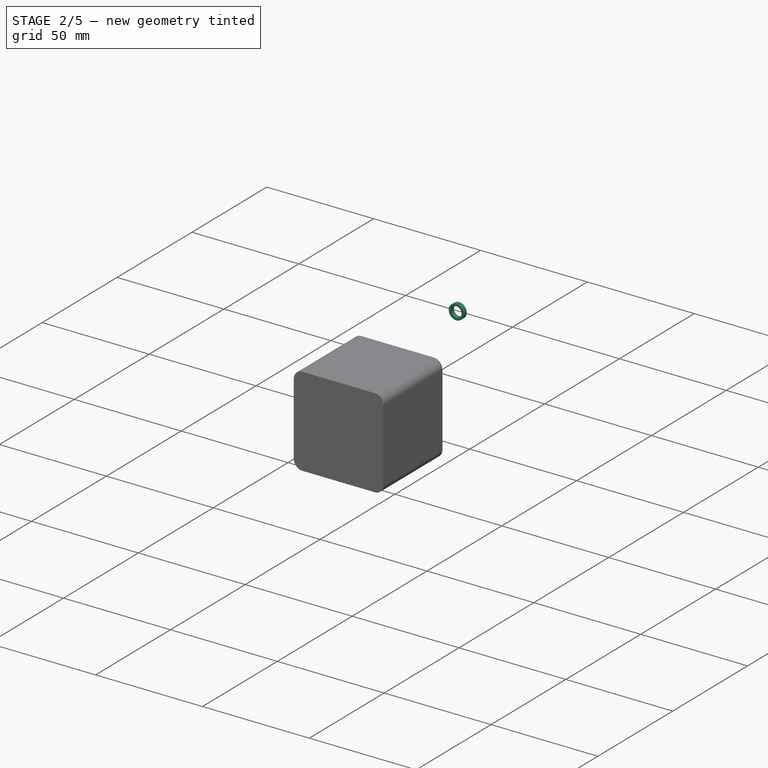
[diagram: stage 2 of 5 — iso view after this stage's code; geometry added in this stage tinted green]
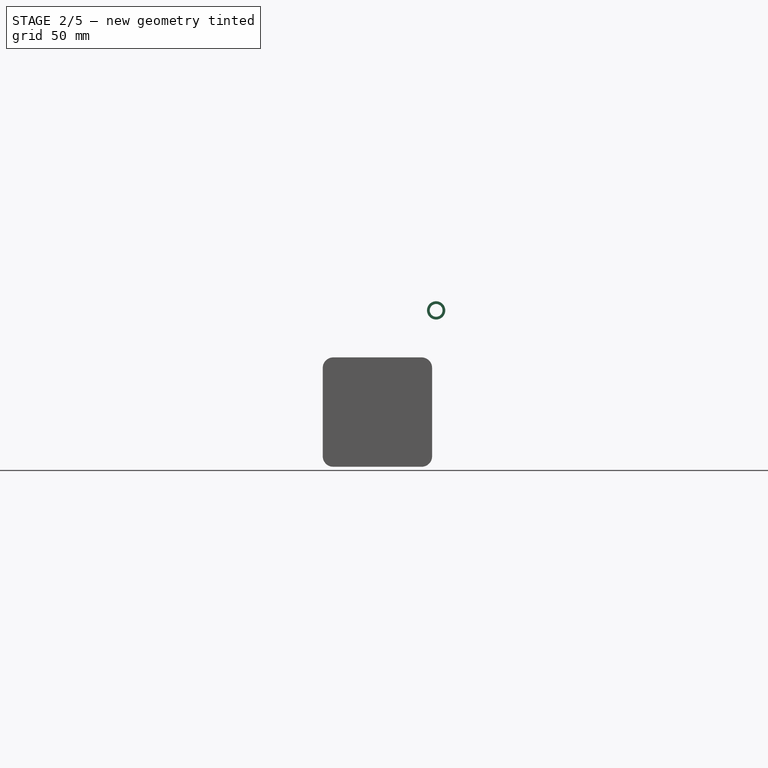
[diagram: stage 2 of 5 — front view after this stage's code; geometry added in this stage tinted green]
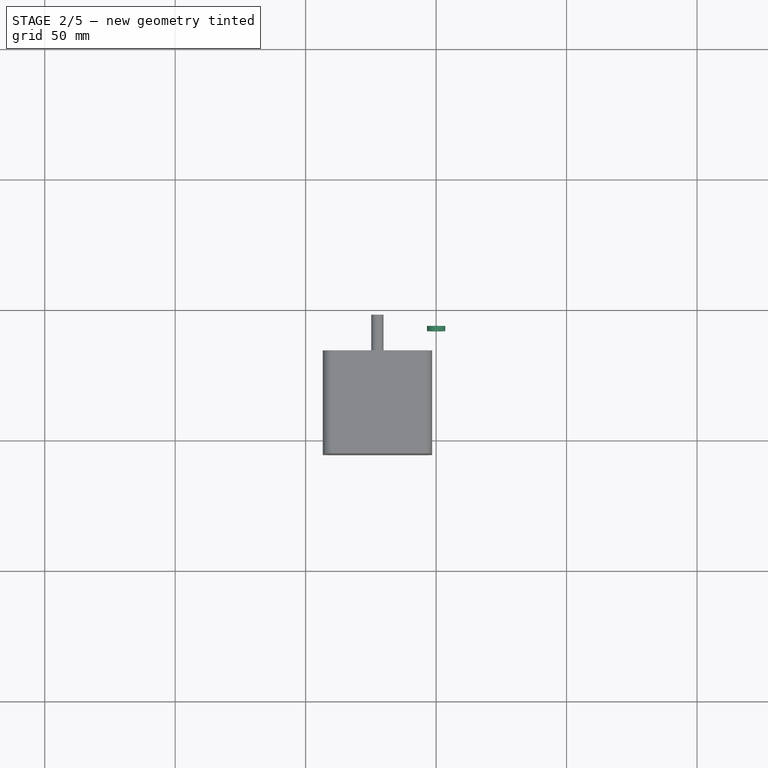
[diagram: stage 2 of 5 — top view after this stage's code; geometry added in this stage tinted green]
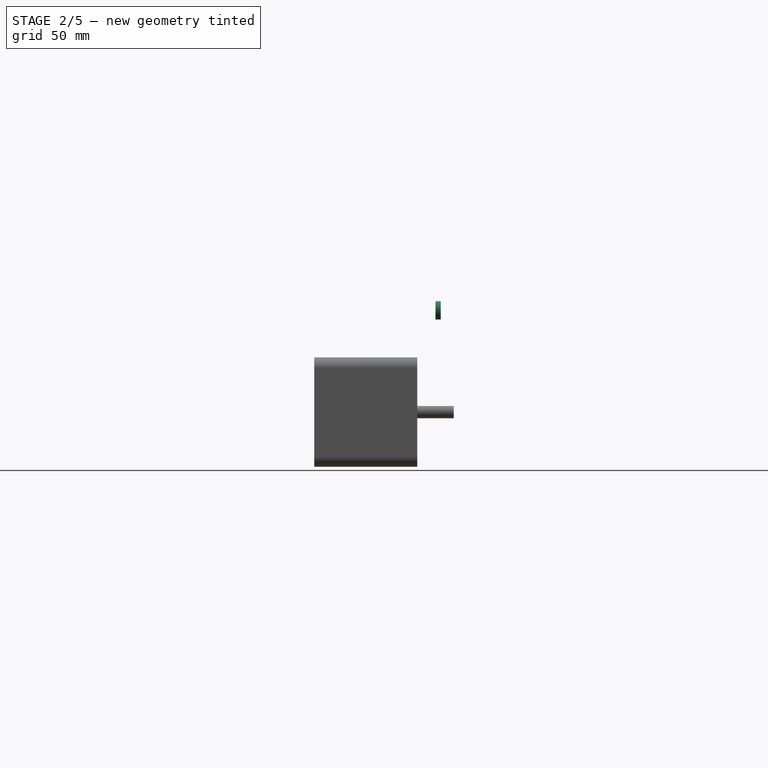
[diagram: stage 2 of 5 — right view after this stage's code; geometry added in this stage tinted green]
FEATURE [Sketcher::SketchObject] Sketch016
  FullyConstrained = true
  MapMode = 5
  Placement = pos=(0.000287775,0.000292851,9.00046) rot=(0.705562,0.708648,-2.3e-05;3.14159rad)
  Support = -> [Pad006]
  sketch-geometry (3):
    g0: Circle CenterX=22.65 CenterY=-38.88 CenterZ=0 NormalX=0 NormalY=0 NormalZ=1 AngleXU=0 Radius=3.5
    g1: LineSegment StartX=0 StartY=0 StartZ=0 EndX=0 EndY=-38.88 EndZ=0
    g2: LineSegment StartX=0 StartY=-38.88 StartZ=0 EndX=22.65 EndY=-38.88 EndZ=0
  constraints (8):
    c: Diameter(g0) = 7
    c: Coincident(g1,g-1)
    c: Vertical(g1)
    c: Coincident(g2,g1)
    c: Horizontal(g2)
    c: Coincident(g2,g0)
    c: DistanceY(g1,g1) = 38.88
    c: DistanceX(g2,g2) = 22.65
FEATURE [PartDesign::Pocket] Pocket009
  BaseFeature = -> Pad006
  Direction = (3.19734e-05,3.25374e-05,1)
  Length = 10
  Length2 = 5
  Placement = pos=(0.000223828,0.000227777,7.00046) rot=(0,3.2e-05,1;1.57516rad)
  Profile = -> Sketch016
  ReferenceAxis = -> Sketch016 [N_Axis]
  Type = 0
FEATURE [Sketcher::SketchObject] Sketch022
  ExternalGeometry = -> [Pocket009]
  FullyConstrained = true
  MapMode = 5
  Placement = pos=(0.000287775,0.000292851,9.00046) rot=(0.705562,0.708648,-2.3e-05;3.14159rad)
  Support = -> [Pocket009]
  sketch-geometry (11):
    g0: Circle CenterX=7.19972 CenterY=-23.4297 CenterZ=0 NormalX=0 NormalY=0 NormalZ=1 AngleXU=0 Radius=0.95
    g1: Circle CenterX=38.1003 CenterY=-23.4297 CenterZ=0 NormalX=0 NormalY=0 NormalZ=1 AngleXU=0 Radius=0.95
    g2: Circle CenterX=38.1003 CenterY=-54.3303 CenterZ=0 NormalX=0 NormalY=0 NormalZ=1 AngleXU=0 Radius=0.95
    g3: Circle CenterX=7.19972 CenterY=-54.3303 CenterZ=0 NormalX=0 NormalY=0 NormalZ=1 AngleXU=0 Radius=0.95
    g4: LineSegment StartX=7.19972 StartY=-23.4297 StartZ=0 EndX=38.1003 EndY=-23.4297 EndZ=0
    g5: LineSegment StartX=38.1003 StartY=-23.4297 StartZ=0 EndX=38.1003 EndY=-54.3303 EndZ=0
    g6: LineSegment StartX=7.19972 StartY=-23.4297 StartZ=0 EndX=7.19972 EndY=-54.3303 EndZ=0
    g7: LineSegment StartX=7.19972 StartY=-54.3303 StartZ=0 EndX=38.1003 EndY=-54.3303 EndZ=0
    g8: LineSegment StartX=22.65 StartY=-38.88 StartZ=0 EndX=38.1003 EndY=-23.4297 EndZ=0
    g9: LineSegment StartX=22.65 StartY=-38.88 StartZ=0 EndX=7.19972 EndY=-54.3303 EndZ=0
    g10: LineSegment StartX=7.19972 StartY=-23.4297 StartZ=0 EndX=38.1003 EndY=-54.3303 EndZ=0
  constraints (26):
    c: Equal(g0,g1)
    c: Equal(g1,g2)
    c: Equal(g2,g3)
    c: Diameter(g0) = 1.9
    c: Horizontal(g4)
    c: Vertical(g5)
    c: Vertical(g6)
    c: Horizontal(g7)
    c: Coincident(g7,g2)
    c: Coincident(g7,g3)
    c: Coincident(g0,g6)
    c: Coincident(g6,g3)
    c: Coincident(g4,g0)
    c: Coincident(g1,g4)
    c: Coincident(g1,g5)
    c: Coincident(g2,g5)
    c: Coincident(g8,g-3)
    c: Coincident(g8,g1)
    c: Coincident(g9,g8)
    c: Coincident(g9,g3)
    c: Parallel(g9,g8)
    c: Equal(g8,g9)
    c: Distance(g1,g3) = 43.7
    c: Coincident(g10,g0)
    c: Coincident(g10,g2)
    c: Perpendicular(g10,g8)
FEATURE [PartDesign::Pocket] Pocket012
  BaseFeature = -> Pocket009
  Direction = (3.19734e-05,3.25374e-05,1)
  Length = 10
  Length2 = 5
  Placement = pos=(0.000223828,0.000227777,7.00046) rot=(0,3.2e-05,1;1.57516rad)
  Profile = -> Sketch022
  ReferenceAxis = -> Sketch022 [N_Axis]
  Type = 0
FEATURE [Sketcher::SketchObject] Sketch023
  ExternalGeometry = -> [Pocket012]
  FullyConstrained = true
  MapMode = 5
  Placement = pos=(0.000287775,0.000292851,9.00046) rot=(0.705562,0.708648,-2.3e-05;3.14159rad)
  Support = -> [Pocket012]
  sketch-geometry (13):
    g0: Circle CenterX=-127 CenterY=-52.9 CenterZ=0 NormalX=0 NormalY=0 NormalZ=1 AngleXU=0 Radius=2.45
    g1: Circle CenterX=-50 CenterY=-52.9 CenterZ=0 NormalX=0 NormalY=0 NormalZ=1 AngleXU=0 Radius=2.45
    g2: Circle CenterX=48 CenterY=-52.9 CenterZ=0 NormalX=0 NormalY=0 NormalZ=1 AngleXU=0 Radius=2.45
    g3: Circle CenterX=45 CenterY=44.1 CenterZ=0 NormalX=0 NormalY=0 NormalZ=1 AngleXU=0 Radius=2.45
    g4: Circle CenterX=-127 CenterY=77.1 CenterZ=0 NormalX=0 NormalY=0 NormalZ=1 AngleXU=0 Radius=2.45
    g5: LineSegment StartX=-127 StartY=77.1 StartZ=0 EndX=-127 EndY=85.1 EndZ=0
    g6: LineSegment StartX=-127 StartY=85.1 StartZ=0 EndX=-134 EndY=85.1 EndZ=0
    g7: LineSegment StartX=-127 StartY=-52.9 StartZ=0 EndX=-134 EndY=-52.9 EndZ=0
    g8: LineSegment StartX=-50 StartY=-52.9 StartZ=0 EndX=-50 EndY=-59.9 EndZ=0
    g9: LineSegment StartX=-127 StartY=-52.9 StartZ=0 EndX=-50 EndY=-52.9 EndZ=0
    g10: LineSegment StartX=48 StartY=-52.9 StartZ=0 EndX=52 EndY=-52.9 EndZ=0
    g11: LineSegment StartX=45 StartY=44.1 StartZ=0 EndX=45 EndY=51.1 EndZ=0
    g12: LineSegment StartX=45 StartY=51.1 StartZ=0 EndX=52 EndY=51.1 EndZ=0
  constraints (36):
    c: Equal(g0,g1)
    c: Equal(g1,g2)
    c: Equal(g2,g3)
    c: Equal(g3,g4)
    c: Diameter(g4) = 4.9
    c: Coincident(g5,g4)
    c: Vertical(g5)
    c: Coincident(g6,g5)
    c: Horizontal(g6)
    c: Coincident(g6,g-4)
    c: DistanceX(g6,g6) = 7
    c: DistanceY(g5,g5) = 8
    c: Coincident(g7,g0)
    c: PointOnObject(g7,g-4)
    c: Horizontal(g7)
    c: DistanceX(g7,g7) = 7
    c: DistanceY(g-6,g7) = 7
    c: Coincident(g8,g1)
    c: Vertical(g8)
    c: PointOnObject(g8,g-6)
    c: Coincident(g9,g0)
    c: Coincident(g9,g1)
    c: Horizontal(g9)
    c: DistanceX(g9,g9) = 77
    c: Coincident(g10,g2)
    c: PointOnObject(g10,g-5)
    c: Horizontal(g10)
    c: DistanceX(g10,g10) = 4
    c: DistanceY(g-6,g10) = 7
    c: Coincident(g11,g3)
    c: Vertical(g11)
    c: Coincident(g12,g11)
    c: Horizontal(g12)
    c: DistanceX(g12,g12) = 7
    c: DistanceY(g11,g11) = 7
    c: Coincident(g12,g-5)
FEATURE [Sketcher::SketchObject] Sketch024
  ExternalGeometry = -> [Pocket012]
  FullyConstrained = true
  MapMode = 5
  Placement = pos=(0.000287775,0.000292851,9.00046) rot=(0.705562,0.708648,-2.3e-05;3.14159rad)
  Support = -> [Pocket012]
  sketch-geometry (13):
    g0: Circle CenterX=-127 CenterY=-52.9 CenterZ=0 NormalX=0 NormalY=0 NormalZ=1 AngleXU=0 Radius=2.45
    g1: Circle CenterX=-50 CenterY=-52.9 CenterZ=0 NormalX=0 NormalY=0 NormalZ=1 AngleXU=0 Radius=2.45
    g2: Circle CenterX=48 CenterY=-52.9 CenterZ=0 NormalX=0 NormalY=0 NormalZ=1 AngleXU=0 Radius=2.45
    g3: Circle CenterX=45 CenterY=44.1 CenterZ=0 NormalX=0 NormalY=0 NormalZ=1 AngleXU=0 Radius=2.45
    g4: Circle CenterX=-127 CenterY=77.1 CenterZ=0 NormalX=0 NormalY=0 NormalZ=1 AngleXU=0 Radius=2.45
    g5: LineSegment StartX=-127 StartY=77.1 StartZ=0 EndX=-127 EndY=85.1 EndZ=0
    g6: LineSegment StartX=-127 StartY=85.1 StartZ=0 EndX=-134 EndY=85.1 EndZ=0
    g7: LineSegment StartX=-127 StartY=-52.9 StartZ=0 EndX=-134 EndY=-52.9 EndZ=0
    g8: LineSegment StartX=-50 StartY=-52.9 StartZ=0 EndX=-50 EndY=-59.9 EndZ=0
    g9: LineSegment StartX=-127 StartY=-52.9 StartZ=0 EndX=-50 EndY=-52.9 EndZ=0
    g10: LineSegment StartX=48 StartY=-52.9 StartZ=0 EndX=52 EndY=-52.9 EndZ=0
    g11: LineSegment StartX=45 StartY=44.1 StartZ=0 EndX=45 EndY=51.1 EndZ=0
    g12: LineSegment StartX=45 StartY=51.1 StartZ=0 EndX=52 EndY=51.1 EndZ=0
  constraints (36):
    c: Equal(g0,g1)
    c: Equal(g1,g2)
    c: Equal(g2,g3)
    c: Equal(g3,g4)
    c: Diameter(g4) = 4.9
    c: Coincident(g5,g4)
    c: Vertical(g5)
    c: Coincident(g6,g5)
    c: Horizontal(g6)
    c: Coincident(g6,g-4)
    c: DistanceX(g6,g6) = 7
    c: DistanceY(g5,g5) = 8
    c: Coincident(g7,g0)
    c: PointOnObject(g7,g-4)
    c: Horizontal(g7)
    c: DistanceX(g7,g7) = 7
    c: DistanceY(g-6,g7) = 7
    c: Coincident(g8,g1)
    c: Vertical(g8)
    c: PointOnObject(g8,g-6)
    c: Coincident(g9,g0)
    c: Coincident(g9,g1)
    c: Horizontal(g9)
    c: DistanceX(g9,g9) = 77
    c: Coincident(g10,g2)
    c: PointOnObject(g10,g-5)
    c: Horizontal(g10)
    c: DistanceX(g10,g10) = 4
    c: DistanceY(g-6,g10) = 7
    c: Coincident(g11,g3)
    c: Vertical(g11)
    c: Coincident(g12,g11)
    c: Horizontal(g12)
    c: DistanceX(g12,g12) = 7
    c: DistanceY(g11,g11) = 7
    c: Coincident(g12,g-5)
FEATURE [PartDesign::Pocket] Pocket014
  BaseFeature = -> Pocket012
  Direction = (3.19734e-05,3.25374e-05,1)
  Length = 10
  Length2 = 5
  Placement = pos=(0.000223828,0.000227777,7.00046) rot=(0,3.2e-05,1;1.57516rad)
  Profile = -> Sketch023
  ReferenceAxis = -> Sketch023 [N_Axis]
  Type = 0
FEATURE [Sketcher::SketchObject] Sketch025
  ExternalGeometry = -> [Pocket014]
  FullyConstrained = true
  MapMode = 5
  Placement = pos=(0.000511589,0.000520613,16.0005) rot=(0,3.2e-05,1;1.57516rad)
  Support = -> [Pocket014]
  sketch-geometry (13):
    g0: LineSegment StartX=-17 StartY=55.9 StartZ=0 EndX=-17 EndY=59.9 EndZ=0
    g1: LineSegment StartX=-17 StartY=59.9 StartZ=0 EndX=-32 EndY=59.9 EndZ=0
    g2: LineSegment StartX=-32 StartY=59.9 StartZ=0 EndX=-32 EndY=55.9 EndZ=0
    g3: LineSegment StartX=-32 StartY=55.9 StartZ=0 EndX=-17 EndY=55.9 EndZ=0
    g4: GeomPoint X=-24.5 Y=57.9 Z=0
    g5: LineSegment StartX=-82 StartY=55.9 StartZ=0 EndX=-82 EndY=59.9 EndZ=0
    g6: LineSegment StartX=-82 StartY=59.9 StartZ=0 EndX=-97 EndY=59.9 EndZ=0
    g7: LineSegment StartX=-97 StartY=59.9 StartZ=0 EndX=-97 EndY=55.9 EndZ=0
    g8: LineSegment StartX=-97 StartY=55.9 StartZ=0 EndX=-82 EndY=55.9 EndZ=0
    g9: GeomPoint X=-89.5 Y=57.9 Z=0
    g10: LineSegment StartX=-24.5 StartY=57.9 StartZ=0 EndX=-89.5 EndY=57.9 EndZ=0
    g11: LineSegment StartX=-97 StartY=55.9 StartZ=0 EndX=-97 EndY=52.9 EndZ=0
    g12: LineSegment StartX=-97 StartY=52.9 StartZ=0 EndX=-127 EndY=52.9 EndZ=0
  constraints (33):
    c: Coincident(g0,g1)
    c: Coincident(g1,g2)
    c: Coincident(g2,g3)
    c: Coincident(g3,g0)
    c: Horizontal(g1)
    c: Horizontal(g3)
    c: Vertical(g0)
    c: Vertical(g2)
    c: Symmetric(g1,g0,g4)
    c: Coincident(g5,g6)
    c: Coincident(g6,g7)
    c: Coincident(g7,g8)
    c: Coincident(g8,g5)
    c: Horizontal(g6)
    c: Horizontal(g8)
    c: Vertical(g5)
    c: Vertical(g7)
    c: Symmetric(g6,g5,g9)
    c: Equal(g3,g8)
    c: Equal(g2,g7)
    c: PointOnObject(g0,g-5)
    c: PointOnObject(g5,g-5)
    c: Coincident(g10,g4)
    c: Coincident(g10,g9)
    c: Coincident(g11,g7)
    c: Vertical(g11)
    c: Coincident(g12,g11)
    c: Coincident(g12,g-8)
    c: Horizontal(g12)
    c: DistanceX(g3,g3) = 15
    c: DistanceY(g0,g0) = 4
    c: DistanceX(g12,g12) = 30
    c: DistanceX(g10,g10) = 65
FEATURE [PartDesign::Pad] Pad010
  BaseFeature = -> Pocket014
  Direction = (3.19734e-05,3.25374e-05,1)
  Length = 10
  Length2 = 10
  Placement = pos=(0.000223828,0.000227777,7.00046) rot=(0,3.2e-05,1;1.57516rad)
  Profile = -> Sketch025
  ReferenceAxis = -> Sketch025 [N_Axis]
  Type = 0
FEATURE [Sketcher::SketchObject] Sketch027
  ExternalGeometry = -> [Pad010]
  FullyConstrained = true
  MapMode = 5
  Placement = pos=(0.423465,-96.9988,7.0036) rot=(0.999995,0.002198,0.002166;1.57077rad)
  Support = -> [Pad010]
  sketch-geometry (3):
    g0: LineSegment StartX=-55.9 StartY=19 StartZ=0 EndX=-55.9 EndY=9 EndZ=0
    g1: LineSegment StartX=-49.9 StartY=9 StartZ=0 EndX=-55.9 EndY=19 EndZ=0
    g2: LineSegment StartX=-49.9 StartY=9 StartZ=0 EndX=-55.9 EndY=9 EndZ=0
  constraints (6):
    c: Coincident(g0,g-6)
    c: Coincident(g0,g-6)
    c: Coincident(g1,g-3)
    c: Coincident(g1,g0)
    c: Coincident(g2,g1)
    c: Coincident(g2,g0)
FEATURE [Sketcher::SketchObject] Sketch028
  AttachmentOffset = pos=(0,0,-80) rot=(0,0,1;0rad)
  ExternalGeometry = -> [Pad010]
  FullyConstrained = true
  MapMode = 5
  Placement = pos=(0.0744001,-16.9996,7.00101) rot=(0.999995,0.002198,0.002166;1.57077rad)
  Support = -> [Pad010]
  sketch-geometry (3):
    g0: LineSegment StartX=-55.9 StartY=9 StartZ=0 EndX=-49.9 EndY=9 EndZ=0
    g1: LineSegment StartX=-49.9 StartY=9 StartZ=0 EndX=-55.9 EndY=19 EndZ=0
    g2: LineSegment StartX=-55.9 StartY=19 StartZ=0 EndX=-55.9 EndY=9 EndZ=0
  constraints (6):
    c: Coincident(g0,g-4)
    c: Coincident(g0,g-3)
    c: Coincident(g1,g0)
    c: Coincident(g1,g-4)
    c: Coincident(g2,g1)
    c: Coincident(g2,g0)
FEATURE [Sketcher::SketchObject] Sketch029
  AttachmentOffset = pos=(0,0,-15) rot=(0,0,1;0rad)
  ExternalGeometry = -> [Pad010]
  FullyConstrained = true
  MapMode = 5
  Placement = pos=(0.358015,-81.999,7.00311) rot=(0.999995,0.002198,0.002166;1.57077rad)
  Support = -> [Pad010]
  sketch-geometry (3):
    g0: LineSegment StartX=-55.9 StartY=19 StartZ=0 EndX=-55.9 EndY=9 EndZ=0
    g1: LineSegment StartX=-55.9 StartY=9 StartZ=0 EndX=-49.9 EndY=9 EndZ=0
    g2: LineSegment StartX=-55.9 StartY=19 StartZ=0 EndX=-49.9 EndY=9 EndZ=0
  constraints (7):
    c: Coincident(g0,g-5)
    c: PointOnObject(g0,g-4)
    c: Vertical(g0)
    c: Coincident(g1,g0)
    c: Coincident(g1,g-3)
    c: Coincident(g2,g0)
    c: Coincident(g2,g1)
FEATURE [Sketcher::SketchObject] Sketch031
  AttachmentOffset = pos=(0,0,-65) rot=(0,0,1;0rad)
  ExternalGeometry = -> [Pad010]
  FullyConstrained = true
  MapMode = 5
  Placement = pos=(0.13985,-31.9995,7.00149) rot=(0.999995,0.002198,0.002166;1.57077rad)
  Support = -> [Pad010]
  sketch-geometry (3):
    g0: LineSegment StartX=-55.9 StartY=19 StartZ=0 EndX=-55.9 EndY=9 EndZ=0
    g1: LineSegment StartX=-55.9 StartY=9 StartZ=0 EndX=-49.9 EndY=9 EndZ=0
    g2: LineSegment StartX=-49.9 StartY=9 StartZ=0 EndX=-55.9 EndY=19 EndZ=0
  constraints (6):
    c: Coincident(g0,g-5)
    c: Coincident(g0,g-5)
    c: Coincident(g1,g0)
    c: Coincident(g1,g-3)
    c: Coincident(g2,g1)
    c: Coincident(g2,g0)
FEATURE [PartDesign::Pad] Pad011
  BaseFeature = -> Pad010
  Direction = (0.00436331,-0.99999,3.23976e-05)
  Length = 2
  Length2 = 10
  Placement = pos=(0.000223828,0.000227777,7.00046) rot=(0,3.2e-05,1;1.57516rad)
  Profile = -> Sketch027
  ReferenceAxis = -> Sketch027 [N_Axis]
  Reversed = true
  Type = 0
FEATURE [PartDesign::Pad] Pad012
  BaseFeature = -> Pad011
  Direction = (0.00436331,-0.99999,3.23976e-05)
  Length = 2
  Length2 = 10
  Placement = pos=(0.000223828,0.000227777,7.00046) rot=(0,3.2e-05,1;1.57516rad)
  Profile = -> Sketch029
  ReferenceAxis = -> Sketch029 [N_Axis]
  Type = 0
FEATURE [PartDesign::Pad] Pad014
  BaseFeature = -> Pad012
  Direction = (0.00436331,-0.99999,3.23976e-05)
  Length = 2
  Length2 = 10
  Placement = pos=(0.000223828,0.000227777,7.00046) rot=(0,3.2e-05,1;1.57516rad)
  Profile = -> Sketch031
  ReferenceAxis = -> Sketch031 [N_Axis]
  Reversed = true
  Type = 0
FEATURE [PartDesign::Pad] Pad015
  BaseFeature = -> Pad014
  Direction = (0.00436331,-0.99999,3.23976e-05)
  Length = 2
  Length2 = 10
  Placement = pos=(0.000223828,0.000227777,7.00046) rot=(0,3.2e-05,1;1.57516rad)
  Profile = -> Sketch028
  ReferenceAxis = -> Sketch028 [N_Axis]
  Type = 0
FEATURE [Sketcher::SketchObject] Sketch074
  FullyConstrained = false
  MapMode = 5
  Placement = pos=(-55.8992,-0.243681,7.00225) rot=(0.575671,0.578207,0.57817;2.09692rad)
  sketch-geometry (18):
    g0: LineSegment StartX=-95 StartY=-8 StartZ=0 EndX=-95 EndY=2 EndZ=0
    g1: LineSegment StartX=-95 StartY=2 StartZ=0 EndX=-84 EndY=2 EndZ=0
    g2: LineSegment StartX=-84 StartY=2 StartZ=0 EndX=-84 EndY=-8 EndZ=0
    g3: LineSegment StartX=-84 StartY=-8 StartZ=0 EndX=-95 EndY=-8 EndZ=0
    g4: GeomPoint X=-89.5 Y=-3 Z=0
    g5: LineSegment StartX=-28.2461 StartY=2 StartZ=0 EndX=-28.2461 EndY=-8 EndZ=0
    g6: LineSegment StartX=-28.2461 StartY=-8 StartZ=0 EndX=-17.2461 EndY=-8 EndZ=0
    g7: LineSegment StartX=-17.2461 StartY=-8 StartZ=0 EndX=-17.2461 EndY=2 EndZ=0
    g8: LineSegment StartX=-17.2461 StartY=2 StartZ=0 EndX=-28.2461 EndY=2 EndZ=0
    g9: GeomPoint X=-22.7461 Y=-3 Z=0
    g10: LineSegment StartX=19 StartY=2 StartZ=0 EndX=19 EndY=-8 EndZ=0
    g11: LineSegment StartX=19 StartY=-8 StartZ=0 EndX=30 EndY=-8 EndZ=0
    g12: LineSegment StartX=30 StartY=-8 StartZ=0 EndX=30 EndY=2 EndZ=0
    g13: LineSegment StartX=30 StartY=2 StartZ=0 EndX=19 EndY=2 EndZ=0
    g14: GeomPoint X=24.5 Y=-3 Z=0
    g15: Circle CenterX=-89.5 CenterY=-3 CenterZ=0 NormalX=0 NormalY=0 NormalZ=1 AngleXU=0 Radius=1.5
    g16: Circle CenterX=-22.7461 CenterY=-3 CenterZ=0 NormalX=0 NormalY=0 NormalZ=1 AngleXU=0 Radius=1.5
    g17: Circle CenterX=24.5 CenterY=-3 CenterZ=0 NormalX=0 NormalY=0 NormalZ=1 AngleXU=0 Radius=1.5
  constraints (27):
    c: Coincident(g0,g1)
    c: Coincident(g1,g2)
    c: Coincident(g2,g3)
    c: Coincident(g3,g0)
    c: Horizontal(g1)
    c: Vertical(g2)
    c: Symmetric(g1,g0,g4)
    c: Coincident(g5,g6)
    c: Coincident(g6,g7)
    c: Coincident(g7,g8)
    c: Coincident(g8,g5)
    c: Horizontal(g8)
    c: Vertical(g7)
    c: Symmetric(g6,g5,g9)
    c: Coincident(g10,g11)
    c: Coincident(g11,g12)
    c: Coincident(g12,g13)
    c: Coincident(g13,g10)
    c: Horizontal(g13)
    c: Vertical(g12)
    c: Symmetric(g11,g10,g14)
    c: Coincident(g15,g4)
    c: Coincident(g16,g9)
    c: Coincident(g17,g14)
    c: Equal(g15,g16)
    c: Equal(g16,g17)
    c: Diameter(g15) = 3
FEATURE [Sketcher::SketchObject] Sketch075
  ExternalGeometry = -> [Pad015]
  FullyConstrained = true
  MapMode = 5
  Placement = pos=(0.423465,-96.9988,7.0036) rot=(0.999995,0.002198,0.002166;1.57077rad)
  Support = -> [Pad015]
  sketch-geometry (6):
    g0: LineSegment StartX=-54.9 StartY=15.3897 StartZ=0 EndX=-51.6662 EndY=10 EndZ=0
    g1: LineSegment StartX=-54.9 StartY=10 StartZ=0 EndX=-51.6662 EndY=10 EndZ=0
    g2: LineSegment StartX=-54.9 StartY=15.3897 StartZ=0 EndX=-54.9 EndY=10 EndZ=0
    g3: LineSegment StartX=-54.9 StartY=15.3897 StartZ=0 EndX=-54.0425 EndY=15.9042 EndZ=0
    g4: LineSegment StartX=-51.6662 StartY=10 StartZ=0 EndX=-51.6662 EndY=9 EndZ=0
    g5: LineSegment StartX=-54.9 StartY=10 StartZ=0 EndX=-55.9 EndY=10 EndZ=0
  constraints (18):
    c: Horizontal(g1)
    c: Vertical(g2)
    c: Coincident(g0,g2)
    c: Coincident(g1,g2)
    c: Coincident(g0,g1)
    c: Parallel(g0,g-3)
    c: Coincident(g3,g0)
    c: PointOnObject(g3,g-3)
    c: Coincident(g4,g0)
    c: PointOnObject(g4,g-5)
    c: Vertical(g4)
    c: Coincident(g5,g1)
    c: PointOnObject(g5,g-4)
    c: Horizontal(g5)
    c: DistanceX(g5,g5) = 1
    c: DistanceY(g4,g4) = 1
    c: Perpendicular(g-3,g3)
    c: Distance(g3) = 1
FEATURE [PartDesign::Pocket] Pocket033
  BaseFeature = -> Pad015
  Direction = (-0.00436331,0.99999,-3.23976e-05)
  Length = 190
  Length2 = 5
  Placement = pos=(0.000223828,0.000227777,7.00046) rot=(0,3.2e-05,1;1.57516rad)
  Profile = -> Sketch075
  ReferenceAxis = -> Sketch075 [N_Axis]
  Type = 0
FEATURE [Sketcher::SketchObject] Sketch076
  ExternalGeometry = -> [Pocket033]
  FullyConstrained = true
  MapMode = 5
  Placement = pos=(-55.8992,-0.243681,7.00225) rot=(0.575671,0.578207,0.57817;2.09692rad)
  Support = -> [Pocket033]
  sketch-geometry (12):
    g0: LineSegment StartX=-19 StartY=9 StartZ=0 EndX=-19 EndY=19 EndZ=0
    g1: LineSegment StartX=-19 StartY=19 StartZ=0 EndX=-30 EndY=19 EndZ=0
    g2: LineSegment StartX=-30 StartY=19 StartZ=0 EndX=-30 EndY=9 EndZ=0
    g3: LineSegment StartX=-30 StartY=9 StartZ=0 EndX=-19 EndY=9 EndZ=0
    g4: GeomPoint X=-24.5 Y=14 Z=0
    g5: LineSegment StartX=-84 StartY=9 StartZ=0 EndX=-84 EndY=19 EndZ=0
    g6: LineSegment StartX=-84 StartY=19 StartZ=0 EndX=-95 EndY=19 EndZ=0
    g7: LineSegment StartX=-95 StartY=19 StartZ=0 EndX=-95 EndY=9 EndZ=0
    g8: LineSegment StartX=-95 StartY=9 StartZ=0 EndX=-84 EndY=9 EndZ=0
    g9: GeomPoint X=-89.5 Y=14 Z=0
    g10: Circle CenterX=-24.5 CenterY=14 CenterZ=0 NormalX=0 NormalY=0 NormalZ=1 AngleXU=0 Radius=1.5
    g11: Circle CenterX=-89.5 CenterY=14 CenterZ=0 NormalX=0 NormalY=0 NormalZ=1 AngleXU=0 Radius=1.5
  constraints (24):
    c: Coincident(g0,g1)
    c: Coincident(g1,g2)
    c: Coincident(g2,g3)
    c: Coincident(g3,g0)
    c: Horizontal(g3)
    c: Vertical(g2)
    c: Symmetric(g1,g0,g4)
    c: Coincident(g5,g6)
    c: Coincident(g6,g7)
    c: Coincident(g7,g8)
    c: Coincident(g8,g5)
    c: Horizontal(g8)
    c: Vertical(g7)
    c: Symmetric(g6,g5,g9)
    c: Coincident(g0,g-6)
    c: Coincident(g0,g-6)
    c: Coincident(g1,g-5)
    c: Coincident(g6,g-3)
    c: Coincident(g5,g-4)
    c: Coincident(g5,g-4)
    c: Coincident(g10,g4)
    c: Coincident(g11,g9)
    c: Equal(g10,g11)
    c: Diameter(g10) = 3
FEATURE [PartDesign::Hole] Hole002
  BaseFeature = -> Pocket033
  CustomThreadClearance = 0
  Depth = 25
  DepthType = 0
  Diameter = 3
  DrillForDepth = false
  DrillPoint = 1
  DrillPointAngle = 118
  HoleCutCountersinkAngle = 90
  HoleCutCustomValues = false
  HoleCutDepth = 1
  HoleCutDiameter = 5
  HoleCutType = 3
  ModelThread = false
  Placement = pos=(0.000223828,0.000227777,7.00046) rot=(0,3.2e-05,1;1.57516rad)
  Profile = -> Sketch076
  Tapered = false
  TaperedAngle = 90
  ThreadClass = 0
  ThreadDepth = 25
  ThreadDepthType = 0
  ThreadDirection = 0
  ThreadFit = 0
  ThreadSize = 0
  ThreadType = 0
  Threaded = false
  UseCustomThreadClearance = false
FEATURE [PartDesign::Fillet] Fillet004
  Base = -> Hole002 [Edge124,Edge125,Edge126,Edge103,Edge104,Edge105,Edge99,Edge100,Edge101,Edge96,Edge98,Edge97,Edge90,Edge91,Edge89,Edge87,Edge88,Edge86,Edge93,Edge94,Edge92,Edge120,Edge121,Edge122,Edge114,Edge113,Edge112,Edge109,Edge110,Edge111,Edge107,Edge108,Edge106,Edge118,Edge117,Edge116,Edge79,Edge80,Edge71,Edge70]
  BaseFeature = -> Hole002
  Placement = pos=(0.000223828,0.000227777,7.00046) rot=(0,3.2e-05,1;1.57516rad)
  Radius = 2
  SupportTransform = false
  UseAllEdges = false
FEATURE [PartDesign::Fillet] Fillet005
  Base = -> Fillet004 [Edge81,Edge9,Edge2,Edge1,Edge7,Edge14,Edge16,Edge118,Edge24,Edge22]
  BaseFeature = -> Fillet004
  Placement = pos=(0.000223828,0.000227777,7.00046) rot=(0,3.2e-05,1;1.57516rad)
  Radius = 2
  SupportTransform = false
  UseAllEdges = false
FEATURE [PartDesign::Fillet] Fillet006
  Base = -> Fillet005 [Edge24,Edge26,Edge130,Edge134,Edge28]
  BaseFeature = -> Fillet005
  Placement = pos=(0.000223828,0.000227777,7.00046) rot=(0,3.2e-05,1;1.57516rad)
  Radius = 2
  SupportTransform = false
  UseAllEdges = false
FEATURE [App::DocumentObjectGroup] GrExplode_Slice  label="левый бок001"
  Group = -> [Slice_child0,Slice_child1,Slice_child2,Slice_child3,Slice_child4,Slice_child5,Slice_child6]
FEATURE [PartDesign::Plane] DatumPlane003
  Length = 60.2632
  MapMode = 5
  Placement = pos=(0.000287775,0.000292851,9.00046) rot=(0.705562,0.708648,-2.3e-05;3.14159rad)
  ResizeMode = 0
  Support = -> [Fillet006]
  Width = 60.2632
FEATURE [PartDesign::Body] Body006  label="Тело"
  Group = -> [DatumPlane,ReferencePad,Sketch012,Pad004,Sketch013,Pad005,Sketch014,Pocket008,Sketch015,Pad006,Sketch016,Pocket009,Sketch022,Pocket012,Sketch023,Pocket014,Sketch025,Pad010,Sketch027,Sketch028,Sketch031,Sketch029,Pad011,Pad012,Pad014,Pad015,Sketch075,Pocket033,Sketch076,Hole002,Fillet004,Fillet005,Fillet006,DatumPlane003]
  Origin = -> Origin008
  Tip = -> Fillet006
FEATURE [App::Part] Part001  label="правый бок"
  Group = -> [Body006]
  Origin = -> Origin007
  Placement = pos=(0,0,0) rot=(0.57735,-0.57735,0.57735;2.0944rad)
FEATURE [Part::FeaturePython] Slice001  # WARN: FeaturePython — macro-defined, semantics opaque (R4)
  Base = -> Fillet006
  Mode = 1
  Tolerance = 0
  Tools = -> [DatumPlane003]
FEATURE [Part::FeaturePython] Slice001_child2  label="маленькая распорка"  # WARN: FeaturePython — macro-defined, semantics opaque (R4)
  Base = -> Slice001
  FilterType = 1
  Invert = false
  OverrideMaxVal = 0
  Placement = pos=(0,0,0) rot=(-0.58,0.58,-0.58;4.18879rad)
  WindowFrom = 80
  WindowTo = 100
  items = 2
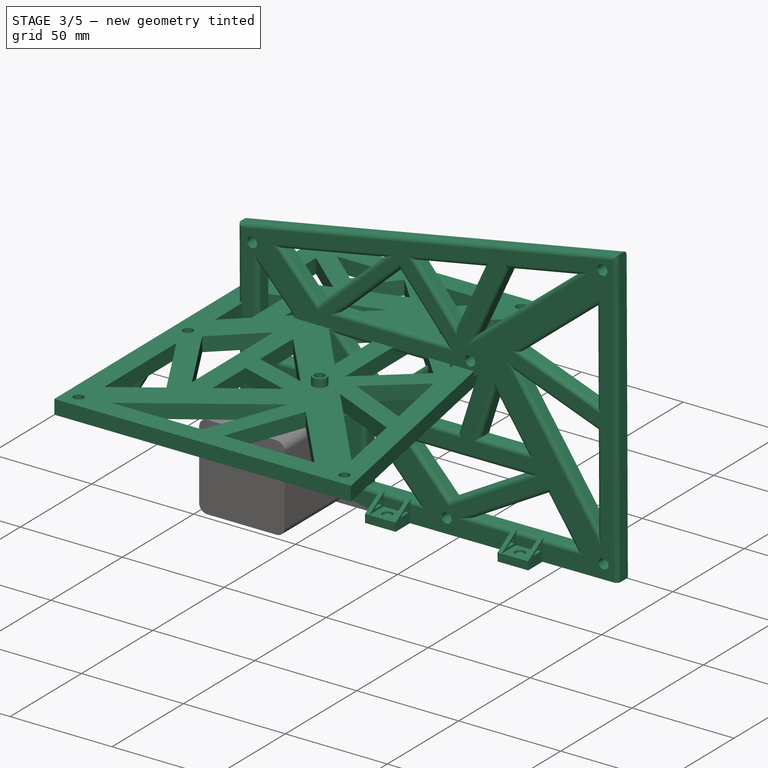
[diagram: stage 3 of 5 — iso view after this stage's code; geometry added in this stage tinted green]
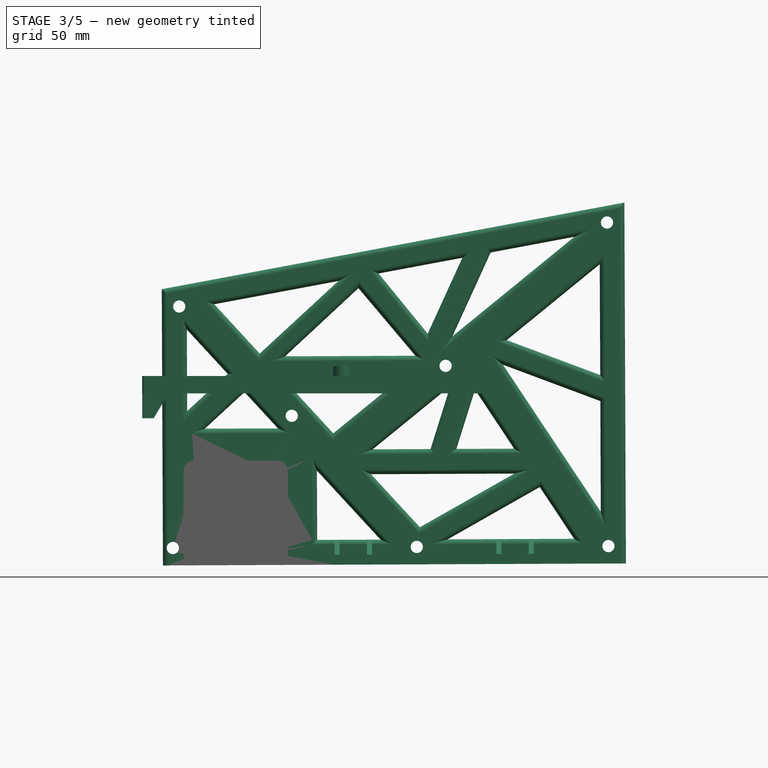
[diagram: stage 3 of 5 — front view after this stage's code; geometry added in this stage tinted green]
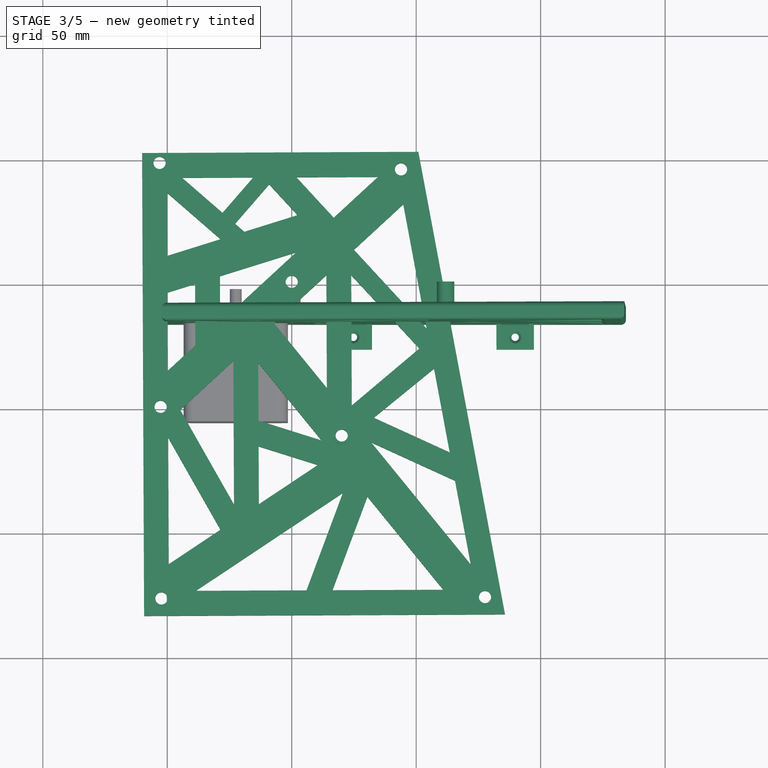
[diagram: stage 3 of 5 — top view after this stage's code; geometry added in this stage tinted green]
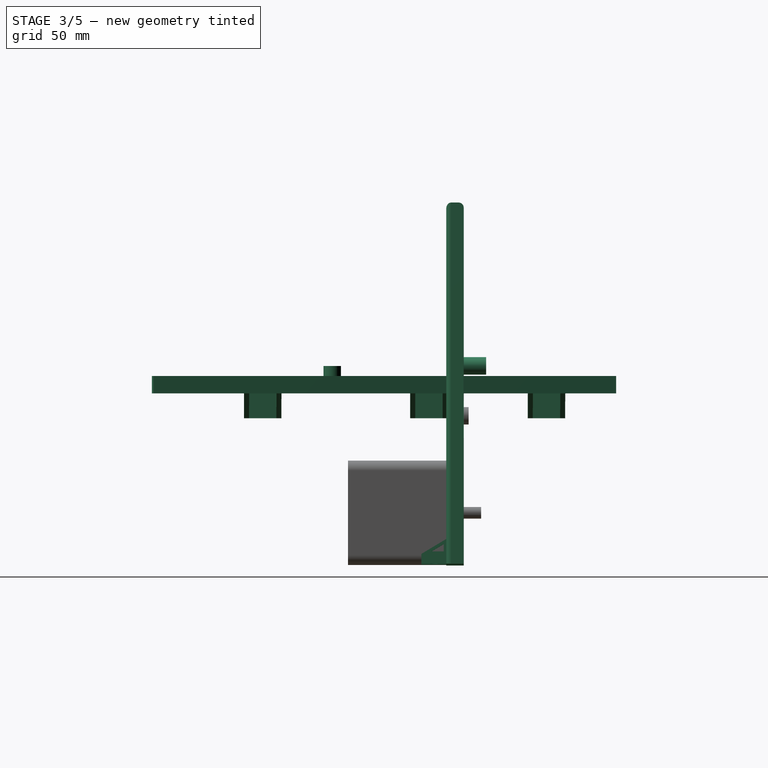
[diagram: stage 3 of 5 — right view after this stage's code; geometry added in this stage tinted green]
FEATURE [PartDesign::ShapeBinder] ReferencePad003
  Placement = pos=(1.45995e-08,1.48649e-08,0.00045675) rot=(-1.4e-05,4.6e-05,1;0.981748rad)
  Support = -> [Pad]
  TraceSupport = false
FEATURE [PartDesign::Plane] DatumPlane001
  AttachmentOffset = pos=(0,0,0) rot=(0,0,1;0.593412rad)
  Length = 60.2632
  MapMode = 5
  Placement = pos=(0.000223828,0.000227777,7.00046) rot=(0,3.2e-05,1;1.57516rad)
  ResizeMode = 0
  Support = -> [ReferencePad003]
  Width = 60.2632
FEATURE [Sketcher::SketchObject] Sketch017
  FullyConstrained = true
  MapMode = 5
  Placement = pos=(0.000223828,0.000227777,7.00046) rot=(0,3.2e-05,1;1.57516rad)
  Support = -> [DatumPlane001]
  sketch-geometry (2):
    g0: Circle CenterX=0 CenterY=0 CenterZ=0 NormalX=0 NormalY=0 NormalZ=1 AngleXU=0 Radius=3.5
    g1: Circle CenterX=0 CenterY=0 CenterZ=0 NormalX=0 NormalY=0 NormalZ=1 AngleXU=0 Radius=2.45
  constraints (4):
    c: Coincident(g0,g-1)
    c: Diameter(g0) = 7
    c: Coincident(g1,g0)
    c: Diameter(g1) = 4.9
FEATURE [PartDesign::Pad] Pad007
  Direction = (3.19734e-05,3.25374e-05,1)
  Length = 2
  Length2 = 10
  Placement = pos=(0.000223828,0.000227777,7.00046) rot=(0,3.2e-05,1;1.57516rad)
  Profile = -> Sketch017
  ReferenceAxis = -> Sketch017 [N_Axis]
  Type = 0
FEATURE [Sketcher::SketchObject] Sketch018
  FullyConstrained = false
  MapMode = 5
  Placement = pos=(0.000287775,0.000292851,9.00046) rot=(0,3.2e-05,1;1.57516rad)
  Support = -> [Pad007]
  sketch-geometry (7):
    g0: LineSegment StartX=52 StartY=-51.1 StartZ=0 EndX=-134 EndY=-85.1 EndZ=0
    g1: LineSegment StartX=-134 StartY=-85.1 StartZ=0 EndX=-134 EndY=59.9 EndZ=0
    g2: LineSegment StartX=-134 StartY=59.9 StartZ=0 EndX=52 EndY=59.9 EndZ=0
    g3: LineSegment StartX=52 StartY=59.9 StartZ=0 EndX=52 EndY=-51.1 EndZ=0
    g4: LineSegment StartX=52 StartY=-51.1 StartZ=0 EndX=-134 EndY=-51.1 EndZ=0
    g5: LineSegment StartX=-17.8345 StartY=0 StartZ=0 EndX=-17.8345 EndY=59.9 EndZ=0
    g6: LineSegment StartX=0 StartY=0 StartZ=0 EndX=52 EndY=0 EndZ=0
  constraints (21):
    c: Coincident(g1,g0)
    c: Vertical(g1)
    c: Coincident(g2,g1)
    c: Horizontal(g2)
    c: Coincident(g3,g2)
    c: Coincident(g3,g0)
    c: Vertical(g3)
    c: Coincident(g4,g0)
    c: PointOnObject(g4,g1)
    c: Horizontal(g4)
    c: PointOnObject(g5,g-1)
    c: PointOnObject(g5,g2)
    c: Vertical(g5)
    c: DistanceY(g5,g5) = 59.9
    c: DistanceX(g4,g4) = 186
    c: DistanceY(g3,g3) = 111
    c: DistanceY(g1,g1) = 145
    c: Coincident(g6,g-1)
    c: Horizontal(g6)
    c: PointOnObject(g6,g3)
    c: DistanceX(g6,g6) = 52
FEATURE [PartDesign::Pad] Pad008
  BaseFeature = -> Pad007
  Direction = (3.19734e-05,3.25374e-05,1)
  Length = 7
  Length2 = 10
  Placement = pos=(0.000223828,0.000227777,7.00046) rot=(0,3.2e-05,1;1.57516rad)
  Profile = -> Sketch018
  ReferenceAxis = -> Sketch018 [N_Axis]
  Type = 0
FEATURE [Sketcher::SketchObject] Sketch019
  ExternalGeometry = -> [Pad008]
  FullyConstrained = true
  MapMode = 5
  Placement = pos=(0.000511589,0.000520613,16.0005) rot=(0,3.2e-05,1;1.57516rad)
  Support = -> [Pad008]
  sketch-geometry (177):
    g0: LineSegment StartX=52 StartY=15 StartZ=0 EndX=0 EndY=15 EndZ=0
    g1: LineSegment StartX=0 StartY=15 StartZ=0 EndX=0 EndY=59.9 EndZ=0
    g2: Circle CenterX=-6e-16 CenterY=-3e-16 CenterZ=0 NormalX=0 NormalY=0 NormalZ=1 AngleXU=0 Radius=2.45
    g3: Circle CenterX=-61.9 CenterY=-19.8 CenterZ=0 NormalX=0 NormalY=0 NormalZ=1 AngleXU=0 Radius=2.45
    g4: LineSegment StartX=-61.9 StartY=-19.8 StartZ=0 EndX=-61.9 EndY=0 EndZ=0
    g5: LineSegment StartX=-61.9 StartY=-19.8 StartZ=0 EndX=0 EndY=-19.8 EndZ=0
    g6: LineSegment StartX=52 StartY=15 StartZ=0 EndX=0 EndY=15 EndZ=0
    g7: LineSegment StartX=0 StartY=15 StartZ=0 EndX=0 EndY=59.9 EndZ=0
    g8: LineSegment StartX=-6e-16 StartY=-15 StartZ=0 EndX=-6e-16 EndY=0 EndZ=0
    g9: LineSegment StartX=-6e-16 StartY=15 StartZ=0 EndX=-6e-16 EndY=0 EndZ=0
    g10: LineSegment StartX=-10 StartY=49.9 StartZ=0 EndX=-124 EndY=49.9 EndZ=0
    g11: LineSegment StartX=-124 StartY=49.9 StartZ=0 EndX=-124 EndY=-73.272 EndZ=0
    g12: LineSegment StartX=-124 StartY=-73.272 StartZ=0 EndX=42 EndY=-42.928 EndZ=0
    g13: LineSegment StartX=42 StartY=-42.928 StartZ=0 EndX=42 EndY=5 EndZ=0
    g14: LineSegment StartX=42 StartY=5 StartZ=0 EndX=-10 EndY=5 EndZ=0
    g15: LineSegment StartX=-10 StartY=5 StartZ=0 EndX=-10 EndY=49.9 EndZ=0
    g16: LineSegment StartX=42 StartY=5 StartZ=0 EndX=52 EndY=5 EndZ=0
    g17: LineSegment StartX=42 StartY=-42.928 StartZ=0 EndX=42 EndY=-52.928 EndZ=0
    g18: LineSegment StartX=-124 StartY=-73.272 StartZ=0 EndX=-134 EndY=-73.272 EndZ=0
    g19: LineSegment StartX=-124 StartY=49.9 StartZ=0 EndX=-124 EndY=59.9 EndZ=0
    g20: LineSegment StartX=-10 StartY=49.9 StartZ=0 EndX=0 EndY=49.9 EndZ=0
    g21: LineSegment StartX=42 StartY=5 StartZ=0 EndX=42 EndY=15 EndZ=0
    g22: LineSegment StartX=42 StartY=-34.8315 StartZ=0 EndX=-35.4515 EndY=49.9 EndZ=0
    g23: LineSegment StartX=30.9284 StartY=-44.9518 StartZ=0 EndX=-55.7739 EndY=49.9 EndZ=0
    g24: LineSegment StartX=30.9284 StartY=-44.9518 StartZ=0 EndX=42 EndY=-34.8315 EndZ=0
    g25: LineSegment StartX=-35.4515 StartY=49.9 StartZ=0 EndX=-46.5231 EndY=39.7797 EndZ=0
    g26: LineSegment StartX=-6e-16 StartY=-3e-16 StartZ=0 EndX=5.53578 EndY=5.06015 EndZ=0
    g27: LineSegment StartX=-6e-16 StartY=-3e-16 StartZ=0 EndX=-5.53578 EndY=-5.06015 EndZ=0
    g28: LineSegment StartX=-16.6697 StartY=7.12034 StartZ=0 EndX=-113.88 EndY=-71.4221 EndZ=0
    g29: LineSegment StartX=-26.7901 StartY=18.1919 StartZ=0 EndX=-124 EndY=-60.3505 EndZ=0
    g30: LineSegment StartX=-113.88 StartY=-71.4221 StartZ=0 EndX=-124 EndY=-60.3505 EndZ=0
    g31: LineSegment StartX=-61.9 StartY=-19.8 StartZ=0 EndX=-57.1953 EndY=-25.6229 EndZ=0
    g32: LineSegment StartX=-61.9 StartY=-19.8 StartZ=0 EndX=-66.6047 EndY=-13.9771 EndZ=0
    g33: LineSegment StartX=11.6998 StartY=-23.9157 StartZ=0 EndX=-55.0823 EndY=-23.9157 EndZ=0
    g34: LineSegment StartX=2.55894 StartY=-13.9157 StartZ=0 EndX=-42.7055 EndY=-13.9157 EndZ=0
    g35: LineSegment StartX=2.55894 StartY=-23.9157 StartZ=0 EndX=2.55894 EndY=-13.9157 EndZ=0
    g36: LineSegment StartX=11.6998 StartY=-23.9157 StartZ=0 EndX=30.9284 EndY=-44.9518 EndZ=0
    g37: LineSegment StartX=2.55894 StartY=-13.9157 StartZ=0 EndX=-16.6697 EndY=7.12034 EndZ=0
    g38: LineSegment StartX=-69.5613 StartY=-16.3658 StartZ=0 EndX=-113.222 EndY=49.9 EndZ=0
    g39: LineSegment StartX=-81.2288 StartY=-25.7928 StartZ=0 EndX=-124 EndY=39.1224 EndZ=0
    g40: LineSegment StartX=-124 StartY=39.1224 StartZ=0 EndX=-112.332 EndY=48.5494 EndZ=0
    g41: LineSegment StartX=-113.222 StartY=49.9 StartZ=0 EndX=-124 EndY=49.9 EndZ=0
    g42: LineSegment StartX=-124 StartY=39.1224 StartZ=0 EndX=-124 EndY=49.9 EndZ=0
    g43: LineSegment StartX=-69.5613 StartY=-16.3658 StartZ=0 EndX=-26.7901 EndY=18.1919 EndZ=0
    g44: LineSegment StartX=-81.2288 StartY=-25.7928 StartZ=0 EndX=-124 EndY=-60.3505 EndZ=0
    g45: LineSegment StartX=-32.4819 StartY=13.593 StartZ=0 EndX=-89.3005 EndY=13.593 EndZ=0
    g46: LineSegment StartX=-31.7271 StartY=23.593 StartZ=0 EndX=-95.8893 EndY=23.593 EndZ=0
    g47: LineSegment StartX=-32.4819 StartY=13.593 StartZ=0 EndX=-26.7901 EndY=18.1919 EndZ=0
    g48: LineSegment StartX=-26.7901 StartY=18.1919 StartZ=0 EndX=-31.7271 EndY=23.593 EndZ=0
    g49: LineSegment StartX=-32.4819 StartY=13.593 StartZ=0 EndX=-32.4819 EndY=23.593 EndZ=0
    g50: LineSegment StartX=42 StartY=-2.07107 StartZ=0 EndX=25.6857 EndY=-16.9837 EndZ=0
    g51: LineSegment StartX=18.9456 StartY=-9.61009 StartZ=0 EndX=34.9289 EndY=5 EndZ=0
    g52: LineSegment StartX=42 StartY=-2.07107 StartZ=0 EndX=42 EndY=5 EndZ=0
    g53: LineSegment StartX=34.9289 StartY=5 StartZ=0 EndX=42 EndY=5 EndZ=0
    g54: LineSegment StartX=-51.2854 StartY=44.9896 StartZ=0 EndX=-89.3416 EndY=23.593 EndZ=0
    g55: LineSegment StartX=-99.4917 StartY=29.0606 StartZ=0 EndX=-62.4266 EndY=49.9 EndZ=0
    g56: LineSegment StartX=-51.2854 StartY=44.9896 StartZ=0 EndX=-55.7739 EndY=49.9 EndZ=0
    g57: LineSegment StartX=-55.7739 StartY=49.9 StartZ=0 EndX=-62.4266 EndY=49.9 EndZ=0
    g58: LineSegment StartX=-89.3416 StartY=23.593 StartZ=0 EndX=-95.8893 EndY=23.593 EndZ=0
    g59: LineSegment StartX=-99.4917 StartY=29.0606 StartZ=0 EndX=-95.8893 EndY=23.593 EndZ=0
    g60: LineSegment StartX=-62.4266 StartY=49.9 StartZ=0 EndX=-55.6797 EndY=42.519 EndZ=0
    g61: LineSegment StartX=-113.222 StartY=49.9 StartZ=0 EndX=-99.4917 EndY=29.0606 EndZ=0
    g62: LineSegment StartX=-99.4917 StartY=29.0606 StartZ=0 EndX=-62.4266 EndY=49.9 EndZ=0
    g63: LineSegment StartX=-62.4266 StartY=49.9 StartZ=0 EndX=-113.222 EndY=49.9 EndZ=0
    g64: LineSegment StartX=-51.2854 StartY=44.9896 StartZ=0 EndX=-89.3416 EndY=23.593 EndZ=0
    g65: LineSegment StartX=-89.3416 StartY=23.593 StartZ=0 EndX=-31.7271 EndY=23.593 EndZ=0
    g66: LineSegment StartX=-31.7271 StartY=23.593 StartZ=0 EndX=-51.2854 EndY=44.9896 EndZ=0
    g67: LineSegment StartX=-16.6697 StartY=7.12034 StartZ=0 EndX=2.55894 EndY=-13.9157 EndZ=0
    g68: LineSegment StartX=2.55894 StartY=-13.9157 StartZ=0 EndX=-42.7055 EndY=-13.9157 EndZ=0
    g69: LineSegment StartX=-16.6697 StartY=7.12034 StartZ=0 EndX=-42.7055 EndY=-13.9157 EndZ=0
    g70: LineSegment StartX=42 StartY=-2.07107 StartZ=0 EndX=25.6857 EndY=-16.9837 EndZ=0
    g71: LineSegment StartX=42 StartY=-34.8315 StartZ=0 EndX=25.6857 EndY=-16.9837 EndZ=0
    g72: LineSegment StartX=42 StartY=-34.8315 StartZ=0 EndX=42 EndY=-2.07107 EndZ=0
    g73: LineSegment StartX=-59.2073 StartY=-27.2486 StartZ=0 EndX=-35.1451 EndY=-57.0298 EndZ=0
    g74: LineSegment StartX=-49.7791 StartY=-23.9157 StartZ=0 EndX=-23.8427 EndY=-54.9637 EndZ=0
    g75: LineSegment StartX=-59.2073 StartY=-27.2486 StartZ=0 EndX=-55.0823 EndY=-23.9157 EndZ=0
    g76: LineSegment StartX=-55.0823 StartY=-23.9157 StartZ=0 EndX=-49.7791 EndY=-23.9157 EndZ=0
    g77: LineSegment StartX=-35.1451 StartY=-57.0298 StartZ=0 EndX=-27.3668 EndY=-50.7451 EndZ=0
    g78: LineSegment StartX=-59.2073 StartY=-27.2486 StartZ=0 EndX=-49.7791 EndY=-23.9157 EndZ=0
    g79: LineSegment StartX=2.81644 StartY=-23.9157 StartZ=0 EndX=-27.0065 EndY=-51.1763 EndZ=0
    g80: LineSegment StartX=12.7502 StartY=-25.0649 StartZ=0 EndX=-18.9881 EndY=-54.0763 EndZ=0
    g81: LineSegment StartX=-27.0065 StartY=-51.1763 StartZ=0 EndX=-23.8427 EndY=-54.9637 EndZ=0
    g82: LineSegment StartX=-23.8427 StartY=-54.9637 StartZ=0 EndX=-18.9881 EndY=-54.0763 EndZ=0
    g83: LineSegment StartX=2.81644 StartY=-23.9157 StartZ=0 EndX=12.7502 EndY=-25.0649 EndZ=0
    g84: LineSegment StartX=-54.7634 StartY=-32.7488 StartZ=0 EndX=-68.8158 EndY=-63.1846 EndZ=0
    g85: LineSegment StartX=-80.2091 StartY=-65.2672 StartZ=0 EndX=-64.7075 EndY=-31.6925 EndZ=0
    g86: LineSegment StartX=-54.7634 StartY=-32.7488 StartZ=0 EndX=-59.2073 EndY=-27.2486 EndZ=0
    g87: LineSegment StartX=-59.2073 StartY=-27.2486 StartZ=0 EndX=-64.7075 EndY=-31.6925 EndZ=0
    g88: LineSegment StartX=-68.8158 StartY=-63.1846 StartZ=0 EndX=-80.2091 EndY=-65.2672 EndZ=0
    g89: LineSegment StartX=-54.7634 StartY=-32.7488 StartZ=0 EndX=-64.7075 EndY=-31.6925 EndZ=0
    g90: LineSegment StartX=-35.1451 StartY=-57.0298 StartZ=0 EndX=-68.8158 EndY=-63.1846 EndZ=0
    g91: LineSegment StartX=-80.2091 StartY=-65.2672 StartZ=0 EndX=-113.88 EndY=-71.4221 EndZ=0
    g92: LineSegment StartX=-86.4805 StartY=-30.036 StartZ=0 EndX=-124 EndY=-15.8453 EndZ=0
    g93: LineSegment StartX=-84.9435 StartY=-20.1549 StartZ=0 EndX=-124 EndY=-5.38284 EndZ=0
    g94: LineSegment StartX=-81.2288 StartY=-25.7928 StartZ=0 EndX=-86.4805 EndY=-30.036 EndZ=0
    g95: LineSegment StartX=-81.2288 StartY=-25.7928 StartZ=0 EndX=-84.9435 EndY=-20.1549 EndZ=0
    g96: LineSegment StartX=-124 StartY=-15.8453 StartZ=0 EndX=-124 EndY=-5.38284 EndZ=0
    g97: LineSegment StartX=-86.4805 StartY=-30.036 StartZ=0 EndX=-84.9435 EndY=-20.1549 EndZ=0
    g98: LineSegment StartX=-124 StartY=-60.3505 StartZ=0 EndX=-124 EndY=-15.8453 EndZ=0
    g99: LineSegment StartX=-124 StartY=-5.38284 StartZ=0 EndX=-124 EndY=39.1224 EndZ=0
    g100: LineSegment StartX=-124 StartY=39.1224 StartZ=0 EndX=-124 EndY=-5.38284 EndZ=0
    g101: LineSegment StartX=-124 StartY=-5.38284 StartZ=0 EndX=-84.9435 EndY=-20.1549 EndZ=0
    g102: LineSegment StartX=-84.9435 StartY=-20.1549 StartZ=0 EndX=-124 EndY=39.1224 EndZ=0
    g103: LineSegment StartX=-86.4805 StartY=-30.036 StartZ=0 EndX=-124 EndY=-60.3505 EndZ=0
    g104: LineSegment StartX=-124 StartY=-60.3505 StartZ=0 EndX=-124 EndY=-15.8453 EndZ=0
    g105: LineSegment StartX=-86.4805 StartY=-30.036 StartZ=0 EndX=-124 EndY=-15.8453 EndZ=0
    g106: LineSegment StartX=-64.7075 StartY=-31.6925 StartZ=0 EndX=-113.88 EndY=-71.4221 EndZ=0
    g107: LineSegment StartX=-80.2091 StartY=-65.2672 StartZ=0 EndX=-113.88 EndY=-71.4221 EndZ=0
    g108: LineSegment StartX=-80.2091 StartY=-65.2672 StartZ=0 EndX=-64.7075 EndY=-31.6925 EndZ=0
    g109: LineSegment StartX=-54.7634 StartY=-32.7488 StartZ=0 EndX=-68.8158 EndY=-63.1846 EndZ=0
    g110: LineSegment StartX=-35.1451 StartY=-57.0298 StartZ=0 EndX=-68.8158 EndY=-63.1846 EndZ=0
    g111: LineSegment StartX=-35.1451 StartY=-57.0298 StartZ=0 EndX=-54.7634 EndY=-32.7488 EndZ=0
    g112: LineSegment StartX=2.55894 StartY=-23.9157 StartZ=0 EndX=-27.0065 EndY=-51.1763 EndZ=0
    g113: LineSegment StartX=-27.0065 StartY=-51.1763 StartZ=0 EndX=-49.7791 EndY=-23.9157 EndZ=0
    g114: LineSegment StartX=-49.7791 StartY=-23.9157 StartZ=0 EndX=2.55894 EndY=-23.9157 EndZ=0
    g115: LineSegment StartX=30.9284 StartY=-44.9518 StartZ=0 EndX=12.7502 EndY=-25.0649 EndZ=0
    g116: LineSegment StartX=12.7502 StartY=-25.0649 StartZ=0 EndX=-18.9881 EndY=-54.0763 EndZ=0
    g117: LineSegment StartX=-18.9881 StartY=-54.0763 StartZ=0 EndX=30.9284 EndY=-44.9518 EndZ=0
    g118: LineSegment StartX=-63.7738 StartY=-11.6897 StartZ=0 EndX=-55.7054 EndY=13.593 EndZ=0
    g119: LineSegment StartX=-73.6549 StartY=-10.1527 StartZ=0 EndX=-66.0771 EndY=13.593 EndZ=0
    g120: LineSegment StartX=-63.7738 StartY=-11.6897 StartZ=0 EndX=-69.5613 EndY=-16.3658 EndZ=0
    g121: LineSegment StartX=-73.6549 StartY=-10.1527 StartZ=0 EndX=-69.5613 EndY=-16.3658 EndZ=0
    g122: LineSegment StartX=-73.6549 StartY=-10.1527 StartZ=0 EndX=-63.7738 EndY=-11.6897 EndZ=0
    g123: LineSegment StartX=-66.0771 StartY=13.593 StartZ=0 EndX=-55.7054 EndY=13.593 EndZ=0
    g124: LineSegment StartX=-55.7054 StartY=13.593 StartZ=0 EndX=-32.4819 EndY=13.593 EndZ=0
    g125: LineSegment StartX=-66.0771 StartY=13.593 StartZ=0 EndX=-89.3005 EndY=13.593 EndZ=0
    g126: LineSegment StartX=-32.4819 StartY=13.593 StartZ=0 EndX=-63.7738 EndY=-11.6897 EndZ=0
    g127: LineSegment StartX=-63.7738 StartY=-11.6897 StartZ=0 EndX=-55.7054 EndY=13.593 EndZ=0
    g128: LineSegment StartX=-55.7054 StartY=13.593 StartZ=0 EndX=-32.4819 EndY=13.593 EndZ=0
    g129: LineSegment StartX=-66.0771 StartY=13.593 StartZ=0 EndX=-89.3005 EndY=13.593 EndZ=0
    g130: LineSegment StartX=-73.6549 StartY=-10.1527 StartZ=0 EndX=-89.3005 EndY=13.593 EndZ=0
    g131: LineSegment StartX=-73.6549 StartY=-10.1527 StartZ=0 EndX=-66.0771 EndY=13.593 EndZ=0
    g132: LineSegment StartX=0 StartY=49.9 StartZ=0 EndX=42 EndY=49.9 EndZ=0
    g133: LineSegment StartX=42 StartY=15 StartZ=0 EndX=42 EndY=49.9 EndZ=0
    g134: LineSegment StartX=11.7894 StartY=-1.78132 StartZ=0 EndX=-4.11472 EndY=49.9 EndZ=0
    g135: LineSegment StartX=26.7744 StartY=-2.45395 StartZ=0 EndX=10.6632 EndY=49.9 EndZ=0
    g136: LineSegment StartX=11.7894 StartY=-1.78132 StartZ=0 EndX=18.9456 EndY=-9.61009 EndZ=0
    g137: LineSegment StartX=18.9456 StartY=-9.61009 StartZ=0 EndX=26.7744 EndY=-2.45395 EndZ=0
    g138: LineSegment StartX=11.7894 StartY=-1.78132 StartZ=0 EndX=26.7744 EndY=-2.45395 EndZ=0
    g139: LineSegment StartX=-4.11472 StartY=49.9 StartZ=0 EndX=10.6632 EndY=49.9 EndZ=0
    g140: LineSegment StartX=-4.11472 StartY=49.9 StartZ=0 EndX=-35.4515 EndY=49.9 EndZ=0
    g141: LineSegment StartX=10.6632 StartY=49.9 StartZ=0 EndX=42 EndY=49.9 EndZ=0
    g142: LineSegment StartX=20.1894 StartY=18.9442 StartZ=0 EndX=42 EndY=43.8711 EndZ=0
    g143: LineSegment StartX=17.2482 StartY=28.5019 StartZ=0 EndX=35.9711 EndY=49.9 EndZ=0
    g144: LineSegment StartX=42 StartY=43.8711 StartZ=0 EndX=42 EndY=49.9 EndZ=0
    g145: LineSegment StartX=35.9711 StartY=49.9 StartZ=0 EndX=42 EndY=49.9 EndZ=0
    g146: LineSegment StartX=20.1894 StartY=18.9442 StartZ=0 EndX=17.2482 EndY=28.5019 EndZ=0
    g147: LineSegment StartX=17.2482 StartY=28.5019 StartZ=0 EndX=10.6632 EndY=49.9 EndZ=0
    g148: LineSegment StartX=26.7744 StartY=-2.45395 StartZ=0 EndX=20.1894 EndY=18.9442 EndZ=0
    g149: LineSegment StartX=38.9124 StartY=40.3423 StartZ=0 EndX=35.9711 EndY=49.9 EndZ=0
    g150: LineSegment StartX=2.36974 StartY=28.8284 StartZ=0 EndX=-16.1904 EndY=28.8284 EndZ=0
    g151: LineSegment StartX=-25.3312 StartY=38.8284 StartZ=0 EndX=-0.707609 EndY=38.8284 EndZ=0
    g152: LineSegment StartX=-16.1904 StartY=28.8284 StartZ=0 EndX=-16.1904 EndY=38.8284 EndZ=0
    g153: LineSegment StartX=-25.3312 StartY=38.8284 StartZ=0 EndX=-35.4515 EndY=49.9 EndZ=0
    g154: LineSegment StartX=-35.4515 StartY=49.9 StartZ=0 EndX=-25.3312 EndY=38.8284 EndZ=0
    g155: LineSegment StartX=-25.3312 StartY=38.8284 StartZ=0 EndX=-0.707609 EndY=38.8284 EndZ=0
    g156: LineSegment StartX=-0.707609 StartY=38.8284 StartZ=0 EndX=-4.11472 EndY=49.9 EndZ=0
    g157: LineSegment StartX=-35.4515 StartY=49.9 StartZ=0 EndX=-4.11472 EndY=49.9 EndZ=0
    g158: LineSegment StartX=-16.1904 StartY=28.8284 StartZ=0 EndX=11.7894 EndY=-1.78132 EndZ=0
    g159: LineSegment StartX=11.7894 StartY=-1.78132 StartZ=0 EndX=2.36974 EndY=28.8284 EndZ=0
    g160: LineSegment StartX=-16.1904 StartY=28.8284 StartZ=0 EndX=2.36974 EndY=28.8284 EndZ=0
    g161: LineSegment StartX=34.9289 StartY=5 StartZ=0 EndX=42 EndY=11.4635 EndZ=0
    g162: LineSegment StartX=39.1769 StartY=8.88295 StartZ=0 EndX=23.4366 EndY=22.6554 EndZ=0
    g163: LineSegment StartX=42 StartY=15.2884 StartZ=0 EndX=27.8351 EndY=27.6824 EndZ=0
    g164: LineSegment StartX=39.1769 StartY=8.88295 StartZ=0 EndX=42 EndY=11.4635 EndZ=0
    g165: LineSegment StartX=42 StartY=11.4635 StartZ=0 EndX=42 EndY=15.2884 EndZ=0
    g166: LineSegment StartX=39.1769 StartY=8.88295 StartZ=0 EndX=42 EndY=15.2884 EndZ=0
    g167: LineSegment StartX=26.7744 StartY=-2.45395 StartZ=0 EndX=39.1769 EndY=8.88295 EndZ=0
    g168: LineSegment StartX=23.4366 StartY=22.6554 StartZ=0 EndX=39.1769 EndY=8.88295 EndZ=0
    g169: LineSegment StartX=20.1894 StartY=18.9442 StartZ=0 EndX=23.4366 EndY=22.6554 EndZ=0
    g170: LineSegment StartX=20.1894 StartY=18.9442 StartZ=0 EndX=26.7744 EndY=-2.45395 EndZ=0
    g171: LineSegment StartX=27.8351 StartY=27.6824 StartZ=0 EndX=42 EndY=43.8711 EndZ=0
    g172: LineSegment StartX=27.8351 StartY=27.6824 StartZ=0 EndX=42 EndY=15.2884 EndZ=0
    g173: LineSegment StartX=42 StartY=15.2884 StartZ=0 EndX=42 EndY=43.8711 EndZ=0
    g174: LineSegment StartX=17.2482 StartY=28.5019 StartZ=0 EndX=35.9711 EndY=49.9 EndZ=0
    g175: LineSegment StartX=35.9711 StartY=49.9 StartZ=0 EndX=10.6632 EndY=49.9 EndZ=0
    g176: LineSegment StartX=10.6632 StartY=49.9 StartZ=0 EndX=17.2482 EndY=28.5019 EndZ=0
  constraints (453):
    c: Horizontal(g0)
    c: PointOnObject(g0,g-4)
    c: Coincident(g1,g0)
    c: Vertical(g1)
    c: Block(g0)
    c: Coincident(g2,g-7)
    c: Diameter(g3) = 4.9
    c: Coincident(g4,g3)
    c: PointOnObject(g4,g-1)
    c: Vertical(g4)
    c: Coincident(g5,g3)
    c: PointOnObject(g5,g-2)
    c: Horizontal(g5)
    c: DistanceX(g5,g5) = 61.9
    c: DistanceY(g4,g4) = 19.8
    c: Horizontal(g6)
    c: Vertical(g7)
    c: PointOnObject(g6,g-4)
    c: Coincident(g7,g6)
    c: Coincident(g6,g0)
    c: PointOnObject(g7,g-6)
    c: Coincident(g8,g2)
    c: Parallel(g-2,g8)
    c: Coincident(g9,g2)
    c: Parallel(g9,g-2)
    c: Equal(g8,g9)
    c: DistanceY(g8,g8) = 15
    c: Horizontal(g10)
    c: Vertical(g11)
    c: Vertical(g13)
    c: Horizontal(g14)
    c: Vertical(g15)
    c: Coincident(g15,g14)
    c: Coincident(g10,g15)
    c: Coincident(g10,g11)
    c: Coincident(g11,g12)
    c: Coincident(g12,g13)
    c: Coincident(g13,g14)
    c: PointOnObject(g16,g-4)
    c: Horizontal(g16)
    c: DistanceX(g16,g16) = 10
    c: Parallel(g12,g-3)
    c: Coincident(g17,g12)
    c: PointOnObject(g17,g-3)
    c: Vertical(g17)
    c: DistanceY(g17,g17) = 10
    c: PointOnObject(g18,g-5)
    c: Horizontal(g18)
    c: DistanceX(g18,g18) = 10
    c: PointOnObject(g19,g-6)
    c: Vertical(g19)
    c: DistanceY(g19,g19) = 10
    c: PointOnObject(g20,g1)
    c: Horizontal(g20)
    c: DistanceX(g20,g20) = 10
    c: PointOnObject(g21,g0)
    c: Vertical(g21)
    c: DistanceY(g21,g21) = 10
    c: Diameter(g2) = 4.9
    c: PointOnObject(g1,g-6)
    c: Coincident(g20,g10)
    c: Coincident(g19,g10)
    c: Coincident(g18,g11)
    c: Coincident(g16,g13)
    c: Coincident(g21,g13)
    c: PointOnObject(g22,g13)
    c: PointOnObject(g22,g10)
    c: PointOnObject(g23,g12)
    c: PointOnObject(g23,g10)
    c: Coincident(g24,g23)
    c: Coincident(g24,g22)
    c: Distance(g24) = 15
    c: PointOnObject(g25,g23)
    c: Perpendicular(g22,g24)
    c: Perpendicular(g22,g25)
    c: Distance(g25) = 15
    c: Coincident(g26,g2)
    c: PointOnObject(g26,g22)
    c: Coincident(g27,g2)
    c: PointOnObject(g27,g23)
    c: Parallel(g27,g26)
    c: Equal(g27,g26)
    c: Distance(g27) = 7.5
    c: Coincident(g25,g22)
    c: PointOnObject(g28,g23)
    c: PointOnObject(g28,g12)
    c: PointOnObject(g29,g23)
    c: PointOnObject(g29,g11)
    c: Coincident(g30,g28)
    c: Coincident(g30,g29)
    c: Parallel(g30,g23)
    c: Distance(g30) = 15
    c: Distance(g28,g29) = 15
    c: Coincident(g31,g3)
    c: PointOnObject(g31,g28)
    c: Coincident(g32,g3)
    c: PointOnObject(g32,g29)
    c: Perpendicular(g29,g32)
    c: Parallel(g32,g31)
    c: Equal(g31,g32)
    c: PointOnObject(g33,g23)
    c: Horizontal(g33)
    c: PointOnObject(g34,g23)
    c: Horizontal(g34)
    c: PointOnObject(g34,g28)
    c: PointOnObject(g33,g28)
    c: PointOnObject(g35,g33)
    c: Vertical(g35)
    c: DistanceY(g35,g35) = 10
    c: Coincident(g36,g33)
    c: Coincident(g36,g23)
    c: Coincident(g37,g34)
    c: Coincident(g37,g28)
    c: Equal(g36,g37)
    c: PointOnObject(g38,g29)
    c: PointOnObject(g39,g29)
    c: PointOnObject(g39,g11)
    c: Coincident(g40,g39)
    c: PointOnObject(g40,g38)
    c: Parallel(g40,g29)
    c: Distance(g39,g38) = 15
    c: Distance(g40) = 15
    c: PointOnObject(g38,g10)
    c: Coincident(g41,g38)
    c: Coincident(g41,g10)
    c: Coincident(g42,g39)
    c: Coincident(g42,g10)
    c: Equal(g41,g42)
    c: Coincident(g43,g38)
    c: Coincident(g43,g29)
    c: Coincident(g44,g39)
    c: Coincident(g44,g29)
    c: Equal(g43,g44)
    c: PointOnObject(g45,g29)
    c: PointOnObject(g45,g38)
    c: Horizontal(g45)
    c: PointOnObject(g46,g23)
    c: PointOnObject(g46,g38)
    c: Horizontal(g46)
    c: Coincident(g47,g45)
    c: Coincident(g47,g29)
    c: Coincident(g48,g29)
    c: Coincident(g48,g46)
    c: PointOnObject(g49,g46)
    c: Vertical(g49)
    c: Equal(g47,g48)
    c: DistanceY(g49,g49) = 10
    c: Coincident(g49,g45)
    c: Coincident(g35,g34)
    c: PointOnObject(g50,g13)
    c: PointOnObject(g50,g22)
    c: PointOnObject(g51,g22)
    c: PointOnObject(g51,g14)
    c: Parallel(g51,g50)
    c: Perpendicular(g22,g50)
    c: Distance(g51,g50) = 10
    c: Coincident(g52,g50)
    c: Coincident(g53,g51)
    c: Coincident(g53,g52)
    c: Coincident(g52,g13)
    c: Equal(g52,g53)
    c: PointOnObject(g54,g23)
    c: PointOnObject(g54,g46)
    c: PointOnObject(g55,g38)
    c: PointOnObject(g55,g10)
    c: Coincident(g56,g54)
    c: Coincident(g56,g23)
    c: Coincident(g57,g23)
    c: Coincident(g57,g55)
    c: Parallel(g54,g55)
    c: Equal(g56,g57)
    c: Coincident(g58,g54)
    c: Coincident(g58,g46)
    c: Coincident(g59,g55)
    c: Coincident(g59,g46)
    c: Equal(g58,g59)
    c: Coincident(g60,g55)
    c: PointOnObject(g60,g54)
    c: Parallel(g60,g23)
    c: Distance(g60) = 10
    c: Coincident(g61,g55)
    c: Coincident(g62,g61)
    c: Coincident(g62,g55)
    c: Coincident(g63,g62)
    c: Coincident(g63,g61)
    c: Coincident(g61,g38)
    c: Coincident(g64,g54)
    c: Coincident(g64,g54)
    c: Coincident(g65,g64)
    c: Coincident(g65,g46)
    c: Coincident(g66,g65)
    c: Coincident(g66,g64)
    c: Coincident(g67,g28)
    c: Coincident(g67,g34)
    c: Coincident(g68,g67)
    c: Coincident(g68,g34)
    c: Coincident(g69,g67)
    c: Coincident(g69,g68)
    c: Coincident(g70,g50)
    c: Coincident(g70,g50)
    c: Coincident(g71,g22)
    c: Coincident(g71,g70)
    c: Coincident(g72,g71)
    c: Coincident(g72,g70)
    c: PointOnObject(g73,g28)
    c: PointOnObject(g74,g33)
    c: PointOnObject(g74,g12)
    c: Coincident(g75,g73)
    c: Coincident(g75,g33)
    c: Coincident(g76,g33)
    c: Coincident(g76,g74)
    c: Equal(g75,g76)
    c: PointOnObject(g77,g74)
    c: Parallel(g28,g77)
    c: Distance(g77) = 10
    c: Coincident(g78,g73)
    c: Coincident(g78,g74)
    c: Distance(g78) = 10
    c: Coincident(g77,g73)
    c: PointOnObject(g73,g12)
    c: Perpendicular(g28,g73)
    c: PointOnObject(g79,g33)
    c: PointOnObject(g79,g74)
    c: PointOnObject(g80,g23)
    c: PointOnObject(g80,g12)
    c: Coincident(g81,g79)
    c: Coincident(g81,g74)
    c: Coincident(g82,g74)
    c: Coincident(g82,g80)
    c: Coincident(g83,g79)
    c: Coincident(g83,g80)
    c: Equal(g81,g82)
    c: Perpendicular(g23,g80)
    c: Parallel(g80,g79)
    c: Distance(g83) = 10
    c: PointOnObject(g84,g73)
    c: PointOnObject(g84,g12)
    c: PointOnObject(g85,g12)
    c: PointOnObject(g85,g28)
    c: Coincident(g86,g84)
    c: Coincident(g86,g73)
    c: Coincident(g87,g73)
    c: Coincident(g87,g85)
    c: Coincident(g88,g84)
    c: Coincident(g88,g85)
    c: Coincident(g89,g84)
    c: Coincident(g89,g85)
    c: Equal(g86,g87)
    c: Parallel(g84,g85)
    c: Distance(g89) = 10
    c: Coincident(g90,g73)
    c: Coincident(g90,g84)
    c: Coincident(g91,g85)
    c: Coincident(g91,g28)
    c: Equal(g90,g91)
    c: PointOnObject(g92,g29)
    c: PointOnObject(g93,g39)
    c: PointOnObject(g93,g11)
    c: Parallel(g92,g93)
    c: PointOnObject(g92,g11)
    c: Coincident(g94,g39)
    c: Coincident(g94,g92)
    c: Coincident(g95,g39)
    c: Coincident(g95,g93)
    c: Equal(g94,g95)
    c: Coincident(g96,g92)
    c: Coincident(g96,g93)
    c: Coincident(g97,g92)
    c: Coincident(g97,g93)
    c: Distance(g97) = 10
    c: Coincident(g98,g29)
    c: Coincident(g98,g92)
    c: Coincident(g99,g93)
    c: Coincident(g99,g39)
    c: Equal(g98,g99)
    c: Coincident(g100,g39)
    c: Coincident(g100,g93)
    c: Coincident(g101,g100)
    c: Coincident(g101,g93)
    c: Coincident(g102,g101)
    c: Coincident(g102,g100)
    c: Coincident(g103,g92)
    c: Coincident(g103,g29)
    c: Coincident(g104,g29)
    c: Coincident(g104,g92)
    c: Coincident(g105,g103)
    c: Coincident(g105,g104)
    c: Coincident(g106,g85)
    c: Coincident(g106,g28)
    c: Coincident(g107,g85)
    c: Coincident(g107,g106)
    c: Coincident(g108,g107)
    c: Coincident(g108,g106)
    c: Coincident(g109,g84)
    c: Coincident(g109,g84)
    c: Coincident(g110,g73)
    c: Coincident(g110,g109)
    c: Coincident(g111,g110)
    c: Coincident(g111,g109)
    c: Coincident(g112,g35)
    c: Coincident(g112,g79)
    c: Coincident(g113,g79)
    c: Coincident(g113,g74)
    c: Coincident(g114,g74)
    c: Coincident(g114,g112)
    c: Coincident(g115,g23)
    c: Coincident(g115,g80)
    c: Coincident(g116,g80)
    c: Coincident(g116,g80)
    c: Coincident(g117,g80)
    c: Coincident(g117,g115)
    c: PointOnObject(g118,g45)
    c: PointOnObject(g119,g38)
    c: PointOnObject(g119,g45)
    c: PointOnObject(g118,g29)
    c: Coincident(g120,g118)
    c: Coincident(g120,g38)
    c: Coincident(g121,g119)
    c: Coincident(g121,g38)
    c: Equal(g120,g121)
    c: Coincident(g122,g119)
    c: Coincident(g122,g118)
    c: Coincident(g123,g119)
    c: Coincident(g123,g118)
    c: Distance(g122) = 10
    c: Parallel(g118,g119)
    c: Coincident(g124,g118)
    c: Coincident(g124,g45)
    c: Coincident(g125,g119)
    c: Coincident(g125,g45)
    c: Equal(g124,g125)
    c: Coincident(g126,g45)
    c: Coincident(g126,g118)
    c: Coincident(g127,g118)
    c: Coincident(g127,g118)
    c: Coincident(g128,g118)
    c: Coincident(g128,g126)
    c: Coincident(g129,g119)
    c: Coincident(g129,g45)
    c: Coincident(g130,g119)
    c: Coincident(g130,g129)
    c: Coincident(g131,g130)
    c: Coincident(g131,g129)
    c: Coincident(g132,g20)
    c: Horizontal(g132)
    c: Coincident(g133,g21)
    c: Vertical(g133)
    c: Coincident(g132,g133)
    c: PointOnObject(g134,g22)
    c: PointOnObject(g134,g20)
    c: PointOnObject(g135,g51)
    c: PointOnObject(g135,g132)
    c: Coincident(g136,g134)
    c: Coincident(g136,g51)
    c: Coincident(g137,g51)
    c: Coincident(g137,g135)
    c: Equal(g136,g137)
    c: Parallel(g134,g135)
    c: Coincident(g138,g134)
    c: Coincident(g138,g135)
    c: Distance(g138) = 15
    c: Coincident(g139,g134)
    c: Coincident(g139,g135)
    c: Coincident(g140,g134)
    c: Coincident(g140,g22)
    c: Coincident(g141,g135)
    c: Coincident(g141,g132)
    c: Equal(g140,g141)
    c: PointOnObject(g142,g135)
    c: PointOnObject(g142,g133)
    c: PointOnObject(g143,g135)
    c: PointOnObject(g143,g132)
    c: Coincident(g144,g142)
    c: Coincident(g144,g132)
    c: Coincident(g145,g143)
    c: Coincident(g145,g132)
    c: Equal(g144,g145)
    c: Coincident(g146,g142)
    c: Coincident(g146,g143)
    c: Coincident(g147,g143)
    c: Coincident(g147,g135)
    c: Coincident(g148,g135)
    c: Coincident(g148,g142)
    c: Equal(g147,g148)
    c: PointOnObject(g149,g142)
    c: Coincident(g149,g143)
    c: Parallel(g149,g135)
    c: Distance(g149) = 10
    c: Equal(g146,g149)
    c: PointOnObject(g150,g134)
    c: PointOnObject(g150,g22)
    c: Horizontal(g150)
    c: PointOnObject(g151,g22)
    c: PointOnObject(g151,g134)
    c: Horizontal(g151)
    c: Coincident(g152,g150)
    c: PointOnObject(g152,g151)
    c: Vertical(g152)
    c: DistanceY(g152,g152) = 10
    c: Coincident(g153,g151)
    c: Coincident(g153,g22)
    c: Distance(g153) = 15
    c: Coincident(g154,g22)
    c: Coincident(g154,g151)
    c: Coincident(g155,g154)
    c: Coincident(g155,g151)
    c: Coincident(g156,g155)
    c: Coincident(g156,g134)
    c: Coincident(g157,g154)
    c: Coincident(g157,g156)
    c: Coincident(g158,g150)
    c: Coincident(g158,g134)
    c: Coincident(g159,g158)
    c: Coincident(g159,g150)
    c: Coincident(g160,g158)
    c: Coincident(g160,g159)
    c: Coincident(g161,g51)
    c: PointOnObject(g161,g21)
    c: Parallel(g161,g51)
    c: PointOnObject(g162,g161)
    c: PointOnObject(g162,g142)
    c: Perpendicular(g162,g142)
    c: PointOnObject(g163,g133)
    c: PointOnObject(g163,g142)
    c: Parallel(g162,g163)
    c: Coincident(g164,g162)
    c: Coincident(g164,g161)
    c: Coincident(g165,g161)
    c: Coincident(g165,g163)
    c: Equal(g164,g165)
    c: Coincident(g166,g162)
    c: Coincident(g166,g163)
    c: Distance(g166) = 7
    c: Coincident(g167,g135)
    c: Coincident(g167,g162)
    c: Coincident(g168,g162)
    c: Coincident(g168,g167)
    c: Coincident(g169,g142)
    c: Coincident(g169,g168)
    c: Coincident(g170,g169)
    c: Coincident(g170,g167)
    c: Coincident(g171,g163)
    c: Coincident(g171,g142)
    c: Coincident(g172,g171)
    c: Coincident(g172,g163)
    c: Coincident(g173,g172)
    c: Coincident(g173,g171)
    c: Coincident(g174,g143)
    c: Coincident(g174,g143)
    c: Coincident(g175,g174)
    c: Coincident(g175,g135)
    c: Coincident(g176,g175)
    c: Coincident(g176,g174)
FEATURE [PartDesign::Pocket] Pocket010
  BaseFeature = -> Pad008
  Direction = (-3.19734e-05,-3.25374e-05,-1)
  Length = 8
  Length2 = 5
  Placement = pos=(0.000223828,0.000227777,7.00046) rot=(0,3.2e-05,1;1.57516rad)
  Profile = -> Sketch019
  ReferenceAxis = -> Sketch019 [N_Axis]
  Type = 0
FEATURE [Sketcher::SketchObject] Sketch020
  ExternalGeometry = -> [Pocket010]
  FullyConstrained = true
  MapMode = 5
  Placement = pos=(0.000287775,0.000292851,9.00046) rot=(0.705562,0.708648,-2.3e-05;3.14159rad)
  Support = -> [Pocket010]
  sketch-geometry (2):
    g0: Circle CenterX=-61.9 CenterY=19.8 CenterZ=0 NormalX=0 NormalY=0 NormalZ=1 AngleXU=0 Radius=2.45
    g1: Circle CenterX=-61.9 CenterY=19.8 CenterZ=0 NormalX=0 NormalY=0 NormalZ=1 AngleXU=0 Radius=3.5
  constraints (4):
    c: Coincident(g0,g-3)
    c: Tangent(g0,g-3)
    c: Coincident(g1,g0)
    c: Diameter(g1) = 7
FEATURE [PartDesign::Pad] Pad009
  BaseFeature = -> Pocket010
  Direction = (-3.19734e-05,-3.25374e-05,-1)
  Length = 9
  Length2 = 10
  Placement = pos=(0.000223828,0.000227777,7.00046) rot=(0,3.2e-05,1;1.57516rad)
  Profile = -> Sketch020
  ReferenceAxis = -> Sketch020 [N_Axis]
  Type = 0
FEATURE [Sketcher::SketchObject] Sketch021
  ExternalGeometry = -> [Pad009]
  FullyConstrained = true
  MapMode = 5
  Placement = pos=(1.45812e-08,1.48462e-08,0.000456177) rot=(0.705562,0.708648,-2.3e-05;3.14159rad)
  Support = -> [Pad009]
  sketch-geometry (2):
    g0: Circle CenterX=-61.9 CenterY=19.8 CenterZ=0 NormalX=0 NormalY=0 NormalZ=1 AngleXU=0 Radius=3.5
    g1: Circle CenterX=0 CenterY=0 CenterZ=0 NormalX=0 NormalY=0 NormalZ=1 AngleXU=0 Radius=3.5
  constraints (4):
    c: Coincident(g0,g-3)
    c: Tangent(g0,g-3)
    c: Coincident(g1,g-4)
    c: Tangent(g1,g-4)
FEATURE [PartDesign::Pocket] Pocket011
  BaseFeature = -> Pad009
  Direction = (3.19734e-05,3.25374e-05,1)
  Length = 9
  Length2 = 5
  Placement = pos=(0.000223828,0.000227777,7.00046) rot=(0,3.2e-05,1;1.57516rad)
  Profile = -> Sketch021
  ReferenceAxis = -> Sketch021 [N_Axis]
  Type = 0
FEATURE [Sketcher::SketchObject] Sketch034
  AttachmentOffset = pos=(0,0,-7) rot=(0,0,1;0rad)
  ExternalGeometry = -> [Pocket014]
  FullyConstrained = false
  MapMode = 5
  Placement = pos=(0.000287775,0.000292851,9.00046) rot=(0,3.2e-05,1;1.57516rad)
  Support = -> [Pocket014]
  sketch-geometry (17):
    g0: LineSegment StartX=-15.2461 StartY=55.9 StartZ=0 EndX=-15.2461 EndY=59.9 EndZ=0
    g1: LineSegment StartX=-15.2461 StartY=59.9 StartZ=0 EndX=-30.2461 EndY=59.9 EndZ=0
    g2: LineSegment StartX=-30.2461 StartY=59.9 StartZ=0 EndX=-30.2461 EndY=55.9 EndZ=0
    g3: LineSegment StartX=-30.2461 StartY=55.9 StartZ=0 EndX=-15.2461 EndY=55.9 EndZ=0
    g4: GeomPoint X=-22.7461 Y=57.9 Z=0
    g5: LineSegment StartX=-82 StartY=55.9 StartZ=0 EndX=-82 EndY=59.9 EndZ=0
    g6: LineSegment StartX=-82 StartY=59.9 StartZ=0 EndX=-97 EndY=59.9 EndZ=0
    g7: LineSegment StartX=-97 StartY=59.9 StartZ=0 EndX=-97 EndY=55.9 EndZ=0
    g8: LineSegment StartX=-97 StartY=55.9 StartZ=0 EndX=-82 EndY=55.9 EndZ=0
    g9: GeomPoint X=-89.5 Y=57.9 Z=0
    g10: LineSegment StartX=17 StartY=55.9 StartZ=0 EndX=17 EndY=59.9 EndZ=0
    g11: LineSegment StartX=17 StartY=59.9 StartZ=0 EndX=32 EndY=59.9 EndZ=0
    g12: LineSegment StartX=32 StartY=59.9 StartZ=0 EndX=32 EndY=55.9 EndZ=0
    g13: LineSegment StartX=32 StartY=55.9 StartZ=0 EndX=17 EndY=55.9 EndZ=0
    g14: GeomPoint X=24.5 Y=57.9 Z=0
    g15: LineSegment StartX=-22.7461 StartY=57.9 StartZ=0 EndX=24.5 EndY=57.9 EndZ=0
    g16: LineSegment StartX=-89.5 StartY=57.9 StartZ=0 EndX=-22.7461 EndY=57.9 EndZ=0
  constraints (41):
    c: Coincident(g0,g1)
    c: Coincident(g1,g2)
    c: Coincident(g2,g3)
    c: Coincident(g3,g0)
    c: Horizontal(g1)
    c: Horizontal(g3)
    c: Vertical(g0)
    c: Vertical(g2)
    c: Symmetric(g1,g0,g4)
    c: Coincident(g5,g6)
    c: Coincident(g6,g7)
    c: Coincident(g7,g8)
    c: Coincident(g8,g5)
    c: Horizontal(g6)
    c: Horizontal(g8)
    c: Vertical(g5)
    c: Vertical(g7)
    c: Symmetric(g6,g5,g9)
    c: Equal(g7,g2)
    c: PointOnObject(g0,g-5)
    c: PointOnObject(g5,g-5)
    c: DistanceY(g2,g2) = 4
    c: Coincident(g10,g11)
    c: Coincident(g11,g12)
    c: Coincident(g12,g13)
    c: Coincident(g13,g10)
    c: Horizontal(g11)
    c: Horizontal(g13)
    c: Vertical(g10)
    c: Vertical(g12)
    c: Symmetric(g11,g10,g14)
    c: Coincident(g15,g14)
    c: Coincident(g15,g4)
    c: PointOnObject(g10,g-5)
    c: Equal(g10,g0)
    c: Equal(g3,g13)
    c: Coincident(g16,g9)
    c: Coincident(g16,g4)
    c: DistanceX(g3,g3) = 15
    c: DistanceX(g8,g8) = 15
    c: DistanceX(g-8,g7) = 30
FEATURE [PartDesign::Pocket] Pocket016
  BaseFeature = -> Pocket011
  Direction = (3.19734e-05,3.25374e-05,1)
  Length = 10
  Length2 = 5
  Placement = pos=(0.000223828,0.000227777,7.00046) rot=(0,3.2e-05,1;1.57516rad)
  Profile = -> Sketch024
  ReferenceAxis = -> Sketch024 [N_Axis]
  Type = 0
FEATURE [PartDesign::Pad] Pad017
  BaseFeature = -> Pocket016
  Direction = (3.19734e-05,3.25374e-05,1)
  Length = 10
  Length2 = 10
  Placement = pos=(0.000223828,0.000227777,7.00046) rot=(0,3.2e-05,1;1.57516rad)
  Profile = -> Sketch034
  ReferenceAxis = -> Sketch034 [N_Axis]
  Reversed = true
  Type = 0
FEATURE [PartDesign::Body] Body008  label="вторвя часть ведомой"
  Group = -> [ReferencePocket021,Sketch049,Pad027,Sketch050,Pocket022,Sketch051,Pocket023,Sketch052,Hole,Sketch054,Pocket027]
  Origin = -> Origin011
  Placement = pos=(0,60,0) rot=(-1,0,0;1.5708rad)
  Tip = -> Pocket027
FEATURE [App::DocumentObjectGroup] Group  label="шестерни"
  Group = -> [Body001,Body002,Body,GearConnector,GearConnector001,Body003,Body008]
FEATURE [Sketcher::SketchObject] Sketch060
  ExternalGeometry = -> [Pad017]
  FullyConstrained = true
  MapMode = 5
  Placement = pos=(0.423465,-96.9988,7.0036) rot=(0.999995,0.002198,0.002166;1.57077rad)
  Support = -> [Pad017]
  sketch-geometry (3):
    g0: LineSegment StartX=-55.9 StartY=-8 StartZ=0 EndX=-55.9 EndY=2 EndZ=0
    g1: LineSegment StartX=-55.9 StartY=2 StartZ=0 EndX=-49.9 EndY=2 EndZ=0
    g2: LineSegment StartX=-49.9 StartY=2 StartZ=0 EndX=-55.9 EndY=-8 EndZ=0
  constraints (6):
    c: Coincident(g0,g-4)
    c: Coincident(g0,g-4)
    c: Coincident(g1,g0)
    c: Coincident(g2,g1)
    c: Coincident(g2,g0)
    c: Coincident(g1,g-5)
FEATURE [PartDesign::Pad] Pad028
  BaseFeature = -> Pad017
  Direction = (0.00436331,-0.99999,3.23976e-05)
  Length = 2
  Length2 = 10
  Placement = pos=(0.000223828,0.000227777,7.00046) rot=(0,3.2e-05,1;1.57516rad)
  Profile = -> Sketch060
  ReferenceAxis = -> Sketch060 [N_Axis]
  Reversed = true
  Type = 0
FEATURE [Sketcher::SketchObject] Sketch061
  AttachmentOffset = pos=(0,0,-13) rot=(0,0,1;0rad)
  ExternalGeometry = -> [Pad017]
  FullyConstrained = true
  MapMode = 5
  Placement = pos=(0.366742,-83.999,7.00318) rot=(0.999995,0.002198,0.002166;1.57077rad)
  Support = -> [Pad017]
  sketch-geometry (3):
    g0: LineSegment StartX=-55.9 StartY=-8 StartZ=0 EndX=-55.9 EndY=2 EndZ=0
    g1: LineSegment StartX=-55.9 StartY=2 StartZ=0 EndX=-49.9 EndY=2 EndZ=0
    g2: LineSegment StartX=-49.9 StartY=2 StartZ=0 EndX=-55.9 EndY=-8 EndZ=0
  constraints (6):
    c: Coincident(g0,g-4)
    c: Coincident(g0,g-4)
    c: Coincident(g1,g0)
    c: Coincident(g2,g1)
    c: Coincident(g2,g0)
    c: Coincident(g1,g-5)
FEATURE [Sketcher::SketchObject] Sketch062
  ExternalGeometry = -> [Pad017]
  FullyConstrained = true
  MapMode = 5
  Placement = pos=(0.132197,-30.2456,7.00144) rot=(0.999995,0.002198,0.002166;1.57077rad)
  Support = -> [Pad017]
  sketch-geometry (3):
    g0: LineSegment StartX=-55.9 StartY=-8 StartZ=0 EndX=-55.9 EndY=2 EndZ=0
    g1: LineSegment StartX=-55.9 StartY=2 StartZ=0 EndX=-49.9 EndY=2 EndZ=0
    g2: LineSegment StartX=-49.9 StartY=2 StartZ=0 EndX=-55.9 EndY=-8 EndZ=0
  constraints (6):
    c: Coincident(g0,g-4)
    c: Coincident(g0,g-4)
    c: Coincident(g1,g0)
    c: Coincident(g2,g1)
    c: Coincident(g2,g0)
    c: Coincident(g1,g-5)
FEATURE [Sketcher::SketchObject] Sketch063
  AttachmentOffset = pos=(0,0,-15) rot=(0,0,1;0rad)
  ExternalGeometry = -> [Pad017]
  FullyConstrained = true
  MapMode = 5
  Placement = pos=(0.0667474,-15.2458,7.00095) rot=(0.999995,0.002198,0.002166;1.57077rad)
  Support = -> [Pad017]
  sketch-geometry (3):
    g0: LineSegment StartX=-55.9 StartY=-8 StartZ=0 EndX=-55.9 EndY=2 EndZ=0
    g1: LineSegment StartX=-55.9 StartY=2 StartZ=0 EndX=-49.9 EndY=2 EndZ=0
    g2: LineSegment StartX=-49.9 StartY=2 StartZ=0 EndX=-55.9 EndY=-8 EndZ=0
  constraints (6):
    c: Coincident(g0,g-4)
    c: Coincident(g0,g-4)
    c: Coincident(g1,g0)
    c: Coincident(g2,g1)
    c: Coincident(g2,g0)
    c: Coincident(g1,g-5)
FEATURE [Sketcher::SketchObject] Sketch064
  ExternalGeometry = -> [Pad017]
  FullyConstrained = true
  MapMode = 5
  Placement = pos=(-0.0739524,17.0001,6.99991) rot=(0.999995,0.002198,0.002166;1.57077rad)
  Support = -> [Pad017]
  sketch-geometry (3):
    g0: LineSegment StartX=-55.9 StartY=-8 StartZ=0 EndX=-55.9 EndY=2 EndZ=0
    g1: LineSegment StartX=-55.9 StartY=2 StartZ=0 EndX=-49.9 EndY=2 EndZ=0
    g2: LineSegment StartX=-49.9 StartY=2 StartZ=0 EndX=-55.9 EndY=-8 EndZ=0
  constraints (6):
    c: Coincident(g0,g-4)
    c: Coincident(g0,g-4)
    c: Coincident(g1,g0)
    c: Coincident(g2,g1)
    c: Coincident(g2,g0)
    c: Coincident(g1,g-5)
FEATURE [Sketcher::SketchObject] Sketch065
  AttachmentOffset = pos=(0,0,-15) rot=(0,0,1;0rad)
  ExternalGeometry = -> [Pad017]
  FullyConstrained = true
  MapMode = 5
  Placement = pos=(-0.139402,31.9999,6.99942) rot=(0.999995,0.002198,0.002166;1.57077rad)
  Support = -> [Pad017]
  sketch-geometry (3):
    g0: LineSegment StartX=-55.9 StartY=-8 StartZ=0 EndX=-55.9 EndY=2 EndZ=0
    g1: LineSegment StartX=-55.9 StartY=2 StartZ=0 EndX=-49.9 EndY=2 EndZ=0
    g2: LineSegment StartX=-49.9 StartY=2 StartZ=0 EndX=-55.9 EndY=-8 EndZ=0
  constraints (6):
    c: Coincident(g0,g-4)
    c: Coincident(g0,g-4)
    c: Coincident(g1,g0)
    c: Coincident(g2,g1)
    c: Coincident(g2,g0)
    c: Coincident(g1,g-5)
FEATURE [PartDesign::Pad] Pad029
  BaseFeature = -> Pad028
  Direction = (0.00436331,-0.99999,3.23976e-05)
  Length = 2
  Length2 = 10
  Placement = pos=(0.000223828,0.000227777,7.00046) rot=(0,3.2e-05,1;1.57516rad)
  Profile = -> Sketch061
  ReferenceAxis = -> Sketch061 [N_Axis]
  Reversed = true
  Type = 0
FEATURE [PartDesign::Pad] Pad030
  BaseFeature = -> Pad029
  Direction = (0.00436331,-0.99999,3.23976e-05)
  Length = 2
  Length2 = 10
  Placement = pos=(0.000223828,0.000227777,7.00046) rot=(0,3.2e-05,1;1.57516rad)
  Profile = -> Sketch062
  ReferenceAxis = -> Sketch062 [N_Axis]
  Reversed = true
  Type = 0
FEATURE [PartDesign::Pad] Pad031
  BaseFeature = -> Pad030
  Direction = (0.00436331,-0.99999,3.23976e-05)
  Length = 2
  Length2 = 10
  Placement = pos=(0.000223828,0.000227777,7.00046) rot=(0,3.2e-05,1;1.57516rad)
  Profile = -> Sketch063
  ReferenceAxis = -> Sketch063 [N_Axis]
  Type = 0
FEATURE [PartDesign::Pad] Pad032
  BaseFeature = -> Pad031
  Direction = (0.00436331,-0.99999,3.23976e-05)
  Length = 2
  Length2 = 10
  Placement = pos=(0.000223828,0.000227777,7.00046) rot=(0,3.2e-05,1;1.57516rad)
  Profile = -> Sketch064
  ReferenceAxis = -> Sketch064 [N_Axis]
  Reversed = true
  Type = 0
FEATURE [PartDesign::Pad] Pad033
  BaseFeature = -> Pad032
  Direction = (0.00436331,-0.99999,3.23976e-05)
  Length = 2
  Length2 = 10
  Placement = pos=(0.000223828,0.000227777,7.00046) rot=(0,3.2e-05,1;1.57516rad)
  Profile = -> Sketch065
  ReferenceAxis = -> Sketch065 [N_Axis]
  Type = 0
FEATURE [Sketcher::SketchObject] Sketch067
  FullyConstrained = false
  MapMode = 5
  Placement = pos=(0.000511589,0.000520613,16.0005) rot=(0,3.2e-05,1;1.57516rad)
  sketch-geometry (2):
    g0: Circle CenterX=-61.9 CenterY=-19.8 CenterZ=0 NormalX=0 NormalY=0 NormalZ=1 AngleXU=0 Radius=2.45
    g1: Circle CenterX=-61.9 CenterY=-19.8 CenterZ=0 NormalX=0 NormalY=0 NormalZ=1 AngleXU=0 Radius=3.5
  constraints (2):
    c: Coincident(g1,g0)
    c: Diameter(g1) = 7
FEATURE [PartDesign::Pad] Pad034
  BaseFeature = -> Pad033
  Direction = (3.19734e-05,3.25374e-05,1)
  Length = 4
  Length2 = 10
  Placement = pos=(0.000223828,0.000227777,7.00046) rot=(0,3.2e-05,1;1.57516rad)
  Profile = -> Sketch067
  ReferenceAxis = -> Sketch067 [N_Axis]
  Type = 0
FEATURE [Part::FeaturePython] Slice001_child0  label="стенка001"  # WARN: FeaturePython — macro-defined, semantics opaque (R4)
  Base = -> Slice001
  FilterType = 1
  Invert = false
  OverrideMaxVal = 0
  Placement = pos=(0,0,0) rot=(-0.58,0.58,-0.58;4.18879rad)
  WindowFrom = 80
  WindowTo = 100
  items = 0
FEATURE [Part::FeaturePython] Slice001_child1  label="большая распорка"  # WARN: FeaturePython — macro-defined, semantics opaque (R4)
  Base = -> Slice001
  FilterType = 1
  Invert = false
  OverrideMaxVal = 0
  Placement = pos=(0,0,0) rot=(-0.58,0.58,-0.58;4.18879rad)
  WindowFrom = 80
  WindowTo = 100
  items = 1
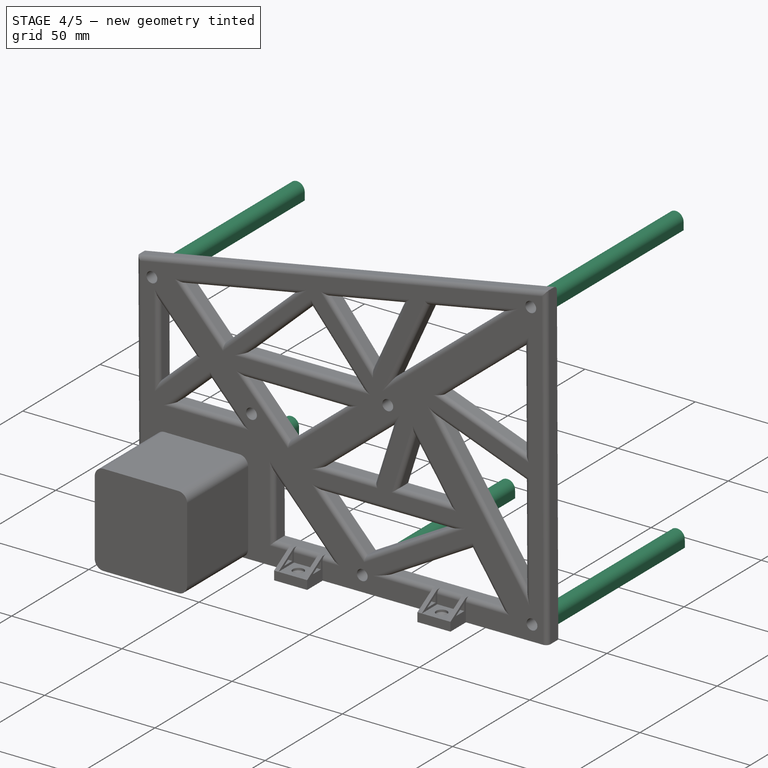
[diagram: stage 4 of 5 — iso view after this stage's code; geometry added in this stage tinted green]
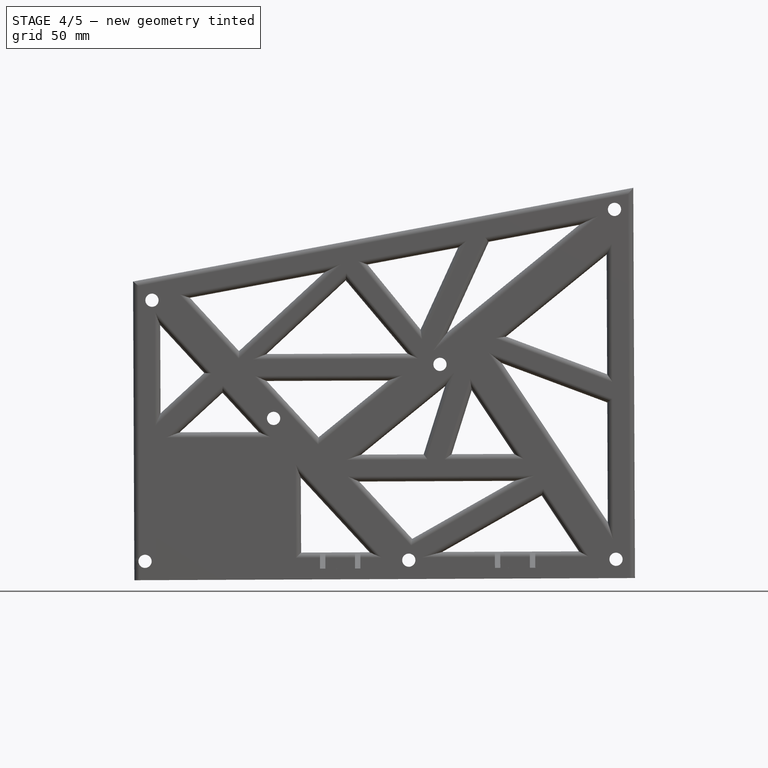
[diagram: stage 4 of 5 — front view after this stage's code; geometry added in this stage tinted green]
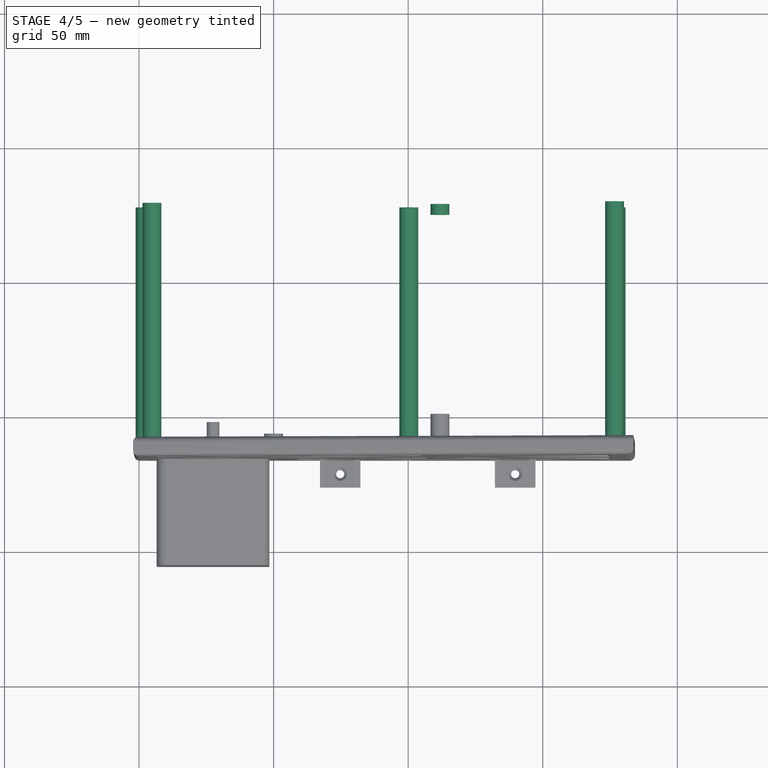
[diagram: stage 4 of 5 — top view after this stage's code; geometry added in this stage tinted green]
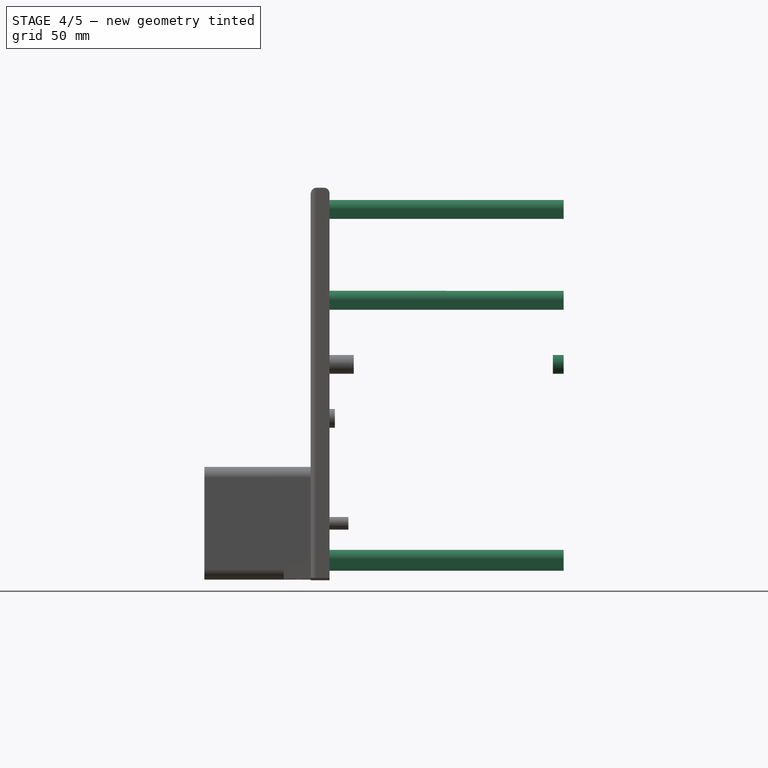
[diagram: stage 4 of 5 — right view after this stage's code; geometry added in this stage tinted green]
FEATURE [Sketcher::SketchObject] Sketch068
  ExternalGeometry = -> [Pad034]
  FullyConstrained = true
  MapMode = 5
  Placement = pos=(0.000511589,0.000520613,16.0005) rot=(0,3.2e-05,1;1.57516rad)
  Support = -> [Pad034]
  sketch-geometry (5):
    g0: Circle CenterX=-127 CenterY=-77.1 CenterZ=0 NormalX=0 NormalY=0 NormalZ=1 AngleXU=0 Radius=3.5
    g1: Circle CenterX=-127 CenterY=52.9 CenterZ=0 NormalX=0 NormalY=0 NormalZ=1 AngleXU=0 Radius=3.5
    g2: Circle CenterX=-50 CenterY=52.9 CenterZ=0 NormalX=0 NormalY=0 NormalZ=1 AngleXU=0 Radius=3.5
    g3: Circle CenterX=48 CenterY=52.9 CenterZ=0 NormalX=0 NormalY=0 NormalZ=1 AngleXU=0 Radius=3.5
    g4: Circle CenterX=45 CenterY=-44.1 CenterZ=0 NormalX=0 NormalY=0 NormalZ=1 AngleXU=0 Radius=3.5
  constraints (10):
    c: Coincident(g0,g-7)
    c: Coincident(g1,g-3)
    c: Coincident(g2,g-4)
    c: Coincident(g3,g-5)
    c: Coincident(g4,g-6)
    c: Equal(g0,g1)
    c: Equal(g1,g2)
    c: Equal(g2,g3)
    c: Equal(g3,g4)
    c: Diameter(g4) = 7
FEATURE [Sketcher::SketchObject] Sketch071
  ExternalGeometry = -> [Pad033]
  FullyConstrained = true
  MapMode = 5
  Placement = pos=(-0.139402,31.9999,6.99942) rot=(-0.001531,0.707117,0.707094;3.1447rad)
  Support = -> [Pad033]
  sketch-geometry (6):
    g0: LineSegment StartX=51.6662 StartY=1 StartZ=0 EndX=54.9 EndY=-4.38968 EndZ=0
    g1: LineSegment StartX=51.6662 StartY=1 StartZ=0 EndX=54.9 EndY=1 EndZ=0
    g2: LineSegment StartX=54.9 StartY=1 StartZ=0 EndX=54.9 EndY=-4.38968 EndZ=0
    g3: LineSegment StartX=54.9 StartY=-4.38968 StartZ=0 EndX=54.0425 EndY=-4.90418 EndZ=0
    g4: LineSegment StartX=54.9 StartY=1 StartZ=0 EndX=55.9 EndY=1 EndZ=0
    g5: LineSegment StartX=51.6662 StartY=1 StartZ=0 EndX=51.6662 EndY=2 EndZ=0
  constraints (18):
    c: Horizontal(g1)
    c: Vertical(g2)
    c: Parallel(g0,g-5)
    c: Coincident(g0,g1)
    c: Coincident(g1,g2)
    c: Coincident(g0,g2)
    c: Coincident(g3,g0)
    c: PointOnObject(g3,g-5)
    c: Coincident(g4,g1)
    c: PointOnObject(g4,g-4)
    c: Horizontal(g4)
    c: Coincident(g5,g0)
    c: PointOnObject(g5,g-3)
    c: Vertical(g5)
    c: DistanceY(g5,g5) = 1
    c: DistanceX(g4,g4) = 1
    c: Perpendicular(g0,g3)
    c: Distance(g3) = 1
FEATURE [PartDesign::Pocket] Pocket030
  BaseFeature = -> Pad034
  Direction = (0.00436331,-0.99999,3.23976e-05)
  Length = 190
  Length2 = 5
  Placement = pos=(0.000223828,0.000227777,7.00046) rot=(0,3.2e-05,1;1.57516rad)
  Profile = -> Sketch071
  ReferenceAxis = -> Sketch071 [N_Axis]
  Type = 0
FEATURE [PartDesign::Pad] Pad035
  BaseFeature = -> Pocket030
  Direction = (3.19734e-05,3.25374e-05,1)
  Length = 87
  Length2 = 10
  Placement = pos=(0.000223828,0.000227777,7.00046) rot=(0,3.2e-05,1;1.57516rad)
  Profile = -> Sketch068
  ReferenceAxis = -> Sketch068 [N_Axis]
  Type = 0
FEATURE [Sketcher::SketchObject] Sketch072
  ExternalGeometry = -> [Pad035]
  FullyConstrained = true
  MapMode = 5
  Placement = pos=(0.00329327,0.00335137,103) rot=(0,3.2e-05,1;1.57516rad)
  Support = -> [Pad035]
  sketch-geometry (25):
    g0: LineSegment StartX=-130.5 StartY=56.4 StartZ=0 EndX=-130.5 EndY=52.9 EndZ=0
    g1: LineSegment StartX=-130.5 StartY=56.4 StartZ=0 EndX=-123.5 EndY=56.4 EndZ=0
    g2: LineSegment StartX=-123.5 StartY=56.4 StartZ=0 EndX=-123.5 EndY=52.9 EndZ=0
    g3: LineSegment StartX=-53.5 StartY=56.4 StartZ=0 EndX=-53.5 EndY=52.9 EndZ=0
    g4: LineSegment StartX=-53.5 StartY=56.4 StartZ=0 EndX=-46.5 EndY=56.4 EndZ=0
    g5: LineSegment StartX=-46.5 StartY=56.4 StartZ=0 EndX=-46.5 EndY=52.9 EndZ=0
    g6: LineSegment StartX=44.5 StartY=56.4 StartZ=0 EndX=44.5 EndY=52.9 EndZ=0
    g7: LineSegment StartX=44.5 StartY=56.4 StartZ=0 EndX=51.5 EndY=56.4 EndZ=0
    g8: LineSegment StartX=51.5 StartY=56.4 StartZ=0 EndX=51.5 EndY=52.9 EndZ=0
    g9: LineSegment StartX=41.5 StartY=-40.6 StartZ=0 EndX=48.5 EndY=-40.6 EndZ=0
    g10: LineSegment StartX=48.5 StartY=-40.6 StartZ=0 EndX=48.5 EndY=-44.1 EndZ=0
    g11: LineSegment StartX=41.5 StartY=-40.6 StartZ=0 EndX=41.5 EndY=-44.1 EndZ=0
    g12: LineSegment StartX=-130.5 StartY=-73.6 StartZ=0 EndX=-123.5 EndY=-73.6 EndZ=0
    g13: LineSegment StartX=-123.5 StartY=-73.6 StartZ=0 EndX=-123.5 EndY=-77.1 EndZ=0
    g14: LineSegment StartX=-130.5 StartY=-73.6 StartZ=0 EndX=-130.5 EndY=-77.1 EndZ=0
    g15: LineSegment StartX=48 StartY=52.9 StartZ=0 EndX=44.5 EndY=52.9 EndZ=0
    g16: LineSegment StartX=48 StartY=52.9 StartZ=0 EndX=51.5 EndY=52.9 EndZ=0
    g17: LineSegment StartX=45 StartY=-44.1 StartZ=0 EndX=41.5 EndY=-44.1 EndZ=0
    g18: LineSegment StartX=45 StartY=-44.1 StartZ=0 EndX=48.5 EndY=-44.1 EndZ=0
    g19: LineSegment StartX=-127 StartY=-77.1 StartZ=0 EndX=-130.5 EndY=-77.1 EndZ=0
    g20: LineSegment StartX=-127 StartY=-77.1 StartZ=0 EndX=-123.5 EndY=-77.1 EndZ=0
    g21: LineSegment StartX=-127 StartY=52.9 StartZ=0 EndX=-130.5 EndY=52.9 EndZ=0
    g22: LineSegment StartX=-127 StartY=52.9 StartZ=0 EndX=-123.5 EndY=52.9 EndZ=0
    g23: LineSegment StartX=-50 StartY=52.9 StartZ=0 EndX=-46.5 EndY=52.9 EndZ=0
    g24: LineSegment StartX=-50 StartY=52.9 StartZ=0 EndX=-53.5 EndY=52.9 EndZ=0
  constraints (70):
    c: Vertical(g0)
    c: Horizontal(g1)
    c: Vertical(g2)
    c: Vertical(g3)
    c: Horizontal(g4)
    c: Vertical(g5)
    c: Vertical(g6)
    c: Horizontal(g7)
    c: Vertical(g8)
    c: Horizontal(g9)
    c: Vertical(g10)
    c: Vertical(g11)
    c: Horizontal(g12)
    c: Vertical(g13)
    c: Vertical(g14)
    c: Coincident(g12,g14)
    c: Coincident(g12,g13)
    c: Coincident(g0,g1)
    c: Coincident(g1,g2)
    c: Coincident(g3,g4)
    c: Coincident(g4,g5)
    c: Coincident(g6,g7)
    c: Coincident(g7,g8)
    c: Coincident(g9,g10)
    c: Coincident(g9,g11)
    c: Tangent(g9,g-6)
    c: Tangent(g12,g-5)
    c: Tangent(g1,g-3)
    c: Tangent(g4,g-4)
    c: Tangent(g7,g-7)
    c: Coincident(g15,g-7)
    c: Horizontal(g15)
    c: Coincident(g16,g15)
    c: Horizontal(g16)
    c: Coincident(g17,g-6)
    c: Horizontal(g17)
    c: Coincident(g18,g17)
    c: Horizontal(g18)
    c: Coincident(g19,g-5)
    c: Horizontal(g19)
    c: Coincident(g20,g19)
    c: Horizontal(g20)
    c: Coincident(g21,g-3)
    c: Horizontal(g21)
    c: Coincident(g22,g21)
    c: Horizontal(g22)
    c: Coincident(g23,g-4)
    c: Horizontal(g23)
    c: Coincident(g24,g23)
    c: Horizontal(g24)
    c: Coincident(g3,g24)
    c: Coincident(g5,g23)
    c: Coincident(g6,g15)
    c: Coincident(g8,g16)
    c: Coincident(g17,g11)
    c: Coincident(g10,g18)
    c: Coincident(g14,g19)
    c: Coincident(g13,g20)
    c: Coincident(g21,g0)
    c: Coincident(g2,g22)
    c: PointOnObject(g0,g-3)
    c: PointOnObject(g2,g-3)
    c: PointOnObject(g3,g-4)
    c: PointOnObject(g5,g-4)
    c: PointOnObject(g6,g-7)
    c: PointOnObject(g8,g-7)
    c: PointOnObject(g10,g-6)
    c: PointOnObject(g11,g-6)
    c: PointOnObject(g13,g-5)
    c: PointOnObject(g14,g-5)
FEATURE [PartDesign::Pad] Pad036
  BaseFeature = -> Pad035
  Direction = (3.19734e-05,3.25374e-05,1)
  Length = 87
  Length2 = 10
  Placement = pos=(0.000223828,0.000227777,7.00046) rot=(0,3.2e-05,1;1.57516rad)
  Profile = -> Sketch072
  ReferenceAxis = -> Sketch072 [N_Axis]
  Reversed = true
  Type = 0
FEATURE [Sketcher::SketchObject] Sketch073
  ExternalGeometry = -> [Pad036]
  FullyConstrained = true
  MapMode = 5
  Placement = pos=(0.00329327,0.00335137,103) rot=(0,3.2e-05,1;1.57516rad)
  Support = -> [Pad036]
  sketch-geometry (5):
    g0: Circle CenterX=-127 CenterY=-77.1 CenterZ=0 NormalX=0 NormalY=0 NormalZ=1 AngleXU=0 Radius=2.45
    g1: Circle CenterX=-127 CenterY=52.9 CenterZ=0 NormalX=0 NormalY=0 NormalZ=1 AngleXU=0 Radius=2.45
    g2: Circle CenterX=-50 CenterY=52.9 CenterZ=0 NormalX=0 NormalY=0 NormalZ=1 AngleXU=0 Radius=2.45
    g3: Circle CenterX=48 CenterY=52.9 CenterZ=0 NormalX=0 NormalY=0 NormalZ=1 AngleXU=0 Radius=2.45
    g4: Circle CenterX=45 CenterY=-44.1 CenterZ=0 NormalX=0 NormalY=0 NormalZ=1 AngleXU=0 Radius=2.45
  constraints (10):
    c: Coincident(g0,g-7)
    c: Coincident(g1,g-3)
    c: Coincident(g2,g-4)
    c: Coincident(g3,g-5)
    c: Coincident(g4,g-6)
    c: Equal(g0,g1)
    c: Equal(g1,g2)
    c: Equal(g2,g3)
    c: Equal(g3,g4)
    c: Diameter(g1) = 4.9
FEATURE [PartDesign::Pocket] Pocket031
  BaseFeature = -> Pad036
  Direction = (-3.19734e-05,-3.25374e-05,-1)
  Length = 90
  Length2 = 5
  Placement = pos=(0.000223828,0.000227777,7.00046) rot=(0,3.2e-05,1;1.57516rad)
  Profile = -> Sketch073
  ReferenceAxis = -> Sketch073 [N_Axis]
  Type = 0
FEATURE [PartDesign::Fillet] Fillet001
  Base = -> Pocket031 [Edge42,Edge43,Edge41,Edge44,Edge46,Edge45,Edge52,Edge53,Edge56,Edge55,Edge54,Edge60,Edge59,Edge58,Edge84,Edge82,Edge83,Edge85,Edge86,Edge88,Edge87,Edge35,Edge34,Edge25,Edge26,Edge24,Edge80,Edge79,Edge81,Edge76,Edge77,Edge75,Edge69,Edge68,Edge67,Edge73,Edge72,Edge71,Edge64,Edge65,+9 more]
  BaseFeature = -> Pocket031
  Placement = pos=(0.000223828,0.000227777,7.00046) rot=(0,3.2e-05,1;1.57516rad)
  Radius = 2
  SupportTransform = false
  UseAllEdges = false
FEATURE [PartDesign::Hole] Hole001
  BaseFeature = -> Fillet001
  CustomThreadClearance = 0
  Depth = 25
  DepthType = 0
  Diameter = 3
  DrillForDepth = false
  DrillPoint = 1
  DrillPointAngle = 118
  HoleCutCountersinkAngle = 90
  HoleCutCustomValues = false
  HoleCutDepth = 1
  HoleCutDiameter = 5
  HoleCutType = 3
  ModelThread = false
  Placement = pos=(0.000223828,0.000227777,7.00046) rot=(0,3.2e-05,1;1.57516rad)
  Profile = -> Sketch074
  Tapered = false
  TaperedAngle = 90
  ThreadClass = 0
  ThreadDepth = 25
  ThreadDepthType = 0
  ThreadDirection = 0
  ThreadFit = 0
  ThreadSize = 0
  ThreadType = 0
  Threaded = false
  UseCustomThreadClearance = false
FEATURE [PartDesign::Fillet] Fillet007
  Base = -> Hole001 [Edge34,Edge36,Edge175,Edge44,Edge42,Edge45,Edge43,Edge167,Edge33,Edge35,Edge21,Edge19,Edge117,Edge14,Edge13]
  BaseFeature = -> Hole001
  Placement = pos=(0.000223828,0.000227777,7.00046) rot=(0,3.2e-05,1;1.57516rad)
  Radius = 2
  SupportTransform = false
  UseAllEdges = false
FEATURE [PartDesign::Plane] DatumPlane002
  Length = 60.2632
  MapMode = 5
  Placement = pos=(0.000511589,0.000520613,16.0005) rot=(0,3.2e-05,1;1.57516rad)
  ResizeMode = 0
  Support = -> [Fillet007]
  Width = 60.2632
FEATURE [PartDesign::Fillet] Fillet008
  Base = -> Fillet007 [Edge11,Edge120,Edge9,Edge118,Edge7]
  BaseFeature = -> Fillet007
  Placement = pos=(0.000223828,0.000227777,7.00046) rot=(0,3.2e-05,1;1.57516rad)
  Radius = 2
  SupportTransform = false
  UseAllEdges = false
FEATURE [PartDesign::Body] Body007  label="Тело006"
  Group = -> [DatumPlane001,ReferencePad003,Sketch017,Pad007,Sketch018,Pad008,Sketch019,Pocket010,Sketch020,Pad009,Sketch021,Pocket011,Sketch024,Sketch034,Pocket016,Pad017,Sketch060,Pad028,Sketch061,Sketch062,Sketch063,Sketch064,Sketch065,Pad029,Pad030,Pad031,Pad032,Pad033,Sketch067,Pad034,Pocket030,Sketch068,Pad035,Sketch071,Sketch072,Pad036,Sketch073,Pocket031,Fillet001,Sketch074,Hole001,Fillet007,+2 more]
  Origin = -> Origin010
  Placement = pos=(0,94,0) rot=(0.57735,-0.57735,0.57735;2.0944rad)
  Tip = -> Fillet008
FEATURE [App::Part] Part002  label="левый бок"
  Group = -> [Body007]
  Origin = -> Origin009
FEATURE [Part::FeaturePython] Slice  # WARN: FeaturePython — macro-defined, semantics opaque (R4)
  Base = -> Fillet008
  Mode = 1
  Tolerance = 0
  Tools = -> [DatumPlane002]
FEATURE [Part::FeaturePython] Slice_child1  label="распорка"  # WARN: FeaturePython — macro-defined, semantics opaque (R4)
  Base = -> Slice
  FilterType = 1
  Invert = false
  OverrideMaxVal = 0
  Placement = pos=(0,94,0) rot=(-0.58,0.58,-0.58;4.18879rad)
  WindowFrom = 80
  WindowTo = 100
  items = 1
FEATURE [Part::FeaturePython] Slice_child2  label="маленькая распорка001"  # WARN: FeaturePython — macro-defined, semantics opaque (R4)
  Base = -> Slice
  FilterType = 1
  Invert = false
  OverrideMaxVal = 0
  Placement = pos=(0,94,0) rot=(-0.58,0.58,-0.58;4.18879rad)
  WindowFrom = 80
  WindowTo = 100
  items = 2
FEATURE [Part::FeaturePython] Slice_child3  label="распорка006"  # WARN: FeaturePython — macro-defined, semantics opaque (R4)
  Base = -> Slice
  FilterType = 1
  Invert = false
  OverrideMaxVal = 0
  Placement = pos=(0,94,0) rot=(-0.58,0.58,-0.58;4.18879rad)
  WindowFrom = 80
  WindowTo = 100
  items = 3
FEATURE [Part::FeaturePython] Slice_child4  label="распорка003"  # WARN: FeaturePython — macro-defined, semantics opaque (R4)
  Base = -> Slice
  FilterType = 1
  Invert = false
  OverrideMaxVal = 0
  Placement = pos=(0,94,0) rot=(-0.58,0.58,-0.58;4.18879rad)
  WindowFrom = 80
  WindowTo = 100
  items = 4
FEATURE [Part::FeaturePython] Slice_child5  label="распорка004"  # WARN: FeaturePython — macro-defined, semantics opaque (R4)
  Base = -> Slice
  FilterType = 1
  Invert = false
  OverrideMaxVal = 0
  Placement = pos=(0,94,0) rot=(-0.58,0.58,-0.58;4.18879rad)
  WindowFrom = 80
  WindowTo = 100
  items = 5
FEATURE [Part::FeaturePython] Slice_child6  label="распорка005"  # WARN: FeaturePython — macro-defined, semantics opaque (R4)
  Base = -> Slice
  FilterType = 1
  Invert = false
  OverrideMaxVal = 0
  Placement = pos=(0,94,0) rot=(-0.58,0.58,-0.58;4.18879rad)
  WindowFrom = 80
  WindowTo = 100
  items = 6
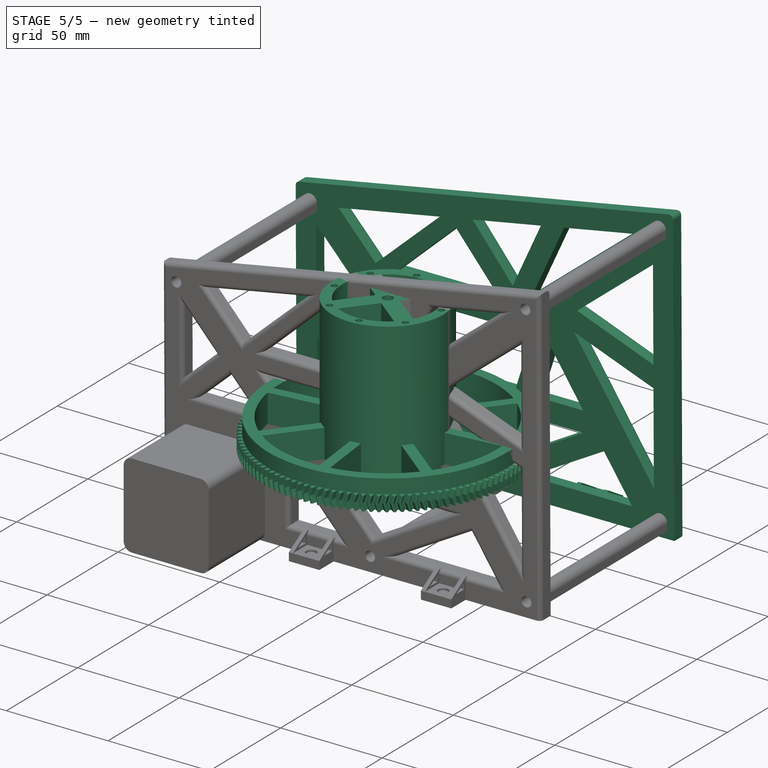
[diagram: stage 5 of 5 — iso view after this stage's code; geometry added in this stage tinted green]
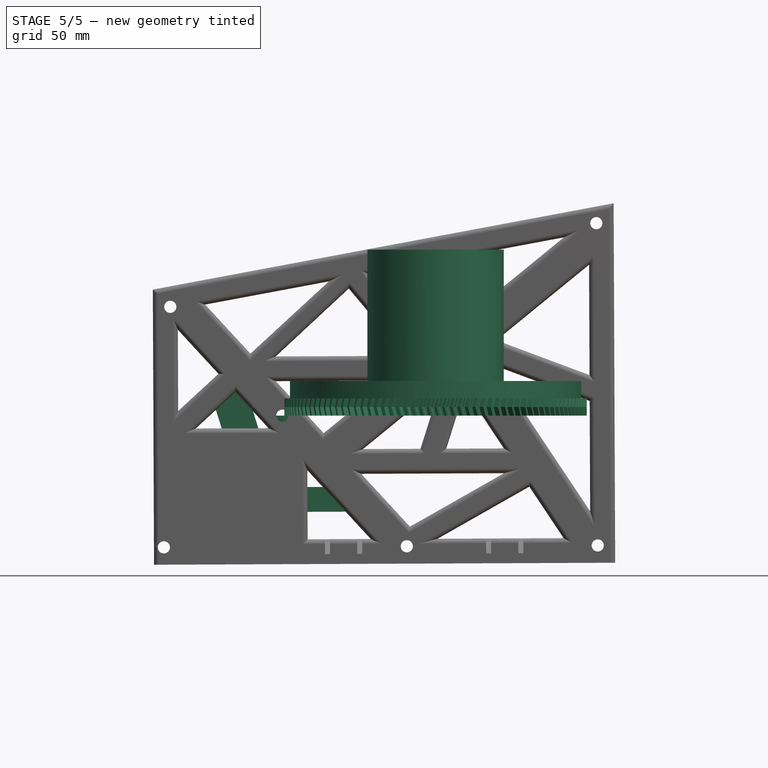
[diagram: stage 5 of 5 — front view after this stage's code; geometry added in this stage tinted green]
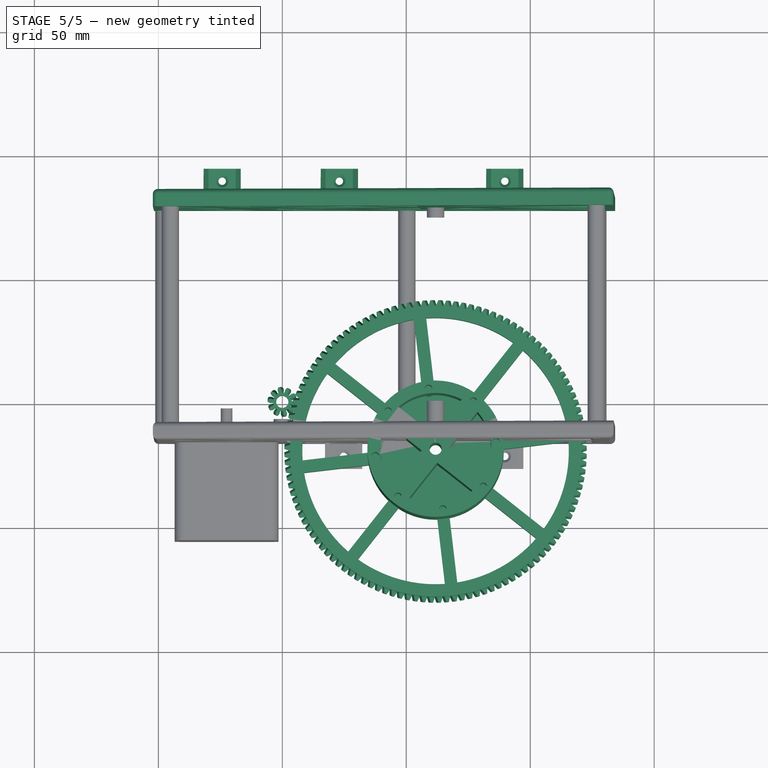
[diagram: stage 5 of 5 — top view after this stage's code; geometry added in this stage tinted green]
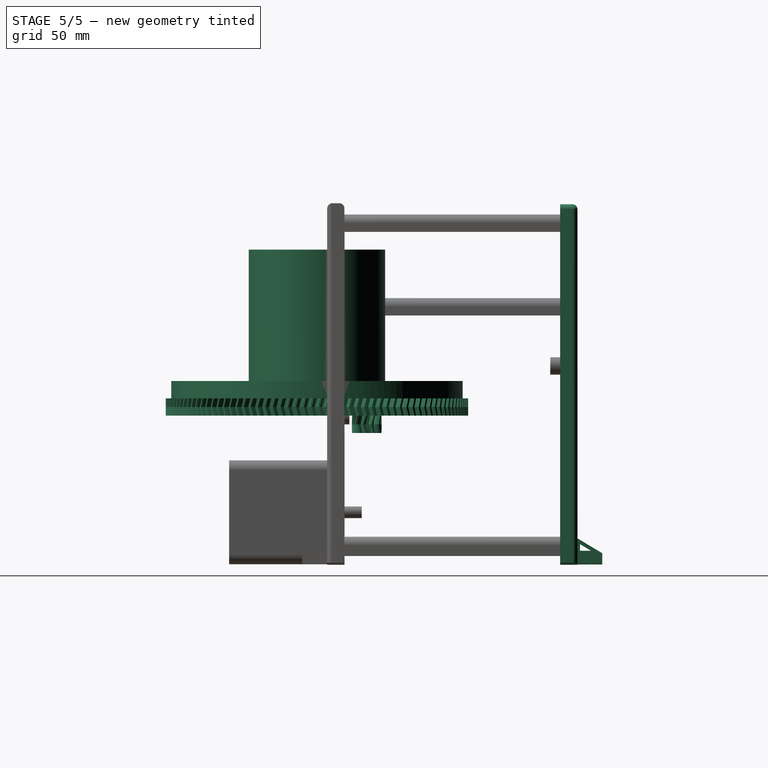
[diagram: stage 5 of 5 — right view after this stage's code; geometry added in this stage tinted green]
FEATURE [PartDesign::FeaturePython] InvoluteGear002  # WARN: FeaturePython — macro-defined, semantics opaque (R4)
  AttacherType = Attacher::AttachEngine3D
  MapMode = 5
  Placement = pos=(0,0,5.72937e-07) rot=(0.881921,0.471397,0;3.14159rad)
  angular_backlash = 0
  backlash = 0
  beta = -15
  clearance = 0.25
  da = 12
  df = 7.5
  double_helix = true
  dw = 10
  head = 0
  head_fillet = 0
  height = 7
  module = 1
  numpoints = 6
  pressure_angle = 20
  properties_from_tool = false
  reversed_backlash = false
  root_fillet = 0
  shift = 0
  simple = false
  teeth = 10
  transverse_pitch = 3.14159
  undercut = false
  version = 0.0.4
  expr: angular_backlash = backlash / dw * 360 ° / pi
  expr: dw = teeth * module
FEATURE [PartDesign::FeaturePython] InvoluteGear003  # WARN: FeaturePython — macro-defined, semantics opaque (R4)
  AttacherType = Attacher::AttachEngine3D
  Placement = pos=(61.8187,-20.0861,5.72937e-07) rot=(0,0,-1;0.668457rad)
  angular_backlash = 0
  backlash = 0
  beta = 15
  clearance = 0.25
  da = 122
  df = 117.5
  double_helix = true
  dw = 120
  head = 0
  head_fillet = 0
  height = 7
  module = 1
  numpoints = 6
  pressure_angle = 20
  properties_from_tool = false
  reversed_backlash = false
  root_fillet = 0
  shift = 0
  simple = false
  teeth = 120
  transverse_pitch = 3.14159
  undercut = false
  version = 0.0.4
  expr: angular_backlash = backlash / dw * 360 ° / pi
  expr: dw = teeth * module
FEATURE [Sketcher::SketchObject] Sketch006
  ExternalGeometry = -> [InvoluteGear003]
  FullyConstrained = true
  MapMode = 5
  Placement = pos=(61.8187,-20.0861,7) rot=(0,0,-1;0.668457rad)
  Support = -> [InvoluteGear003]
  sketch-geometry (59):
    g0: Circle CenterX=0 CenterY=0 CenterZ=0 NormalX=0 NormalY=0 NormalZ=1 AngleXU=0 Radius=27.5
    g1: Circle CenterX=0 CenterY=0 CenterZ=0 NormalX=0 NormalY=0 NormalZ=1 AngleXU=0 Radius=53.75
    g2: LineSegment StartX=9.44553 StartY=57.9857 StartZ=0 EndX=8.64165 EndY=53.0508 EndZ=0
    g3: LineSegment StartX=-2.5 StartY=27.3861 StartZ=0 EndX=-2.5 EndY=53.6918 EndZ=0
    g4: LineSegment StartX=2.5 StartY=53.6918 StartZ=0 EndX=2.5 EndY=27.3861 EndZ=0
    g5: LineSegment StartX=27.3861 StartY=2.5 StartZ=0 EndX=53.6918 EndY=2.5 EndZ=0
    g6: LineSegment StartX=27.3861 StartY=-2.5 StartZ=0 EndX=53.6918 EndY=-2.5 EndZ=0
    g7: LineSegment StartX=2.5 StartY=-27.3861 StartZ=0 EndX=2.5 EndY=-53.6918 EndZ=0
    g8: LineSegment StartX=-2.5 StartY=-53.6918 StartZ=0 EndX=-2.5 EndY=-27.3861 EndZ=0
    g9: LineSegment StartX=-27.3861 StartY=-2.5 StartZ=0 EndX=-53.6918 EndY=-2.5 EndZ=0
    g10: LineSegment StartX=-53.6918 StartY=2.5 StartZ=0 EndX=-27.3861 EndY=2.5 EndZ=0
    g11: LineSegment StartX=-21.1327 StartY=17.5971 StartZ=0 EndX=-39.7336 EndY=36.1981 EndZ=0
    g12: LineSegment StartX=-36.1981 StartY=39.7336 StartZ=0 EndX=-17.5971 EndY=21.1327 EndZ=0
    g13: LineSegment StartX=17.5971 StartY=21.1327 StartZ=0 EndX=36.1981 EndY=39.7336 EndZ=0
    g14: LineSegment StartX=39.7336 StartY=36.1981 StartZ=0 EndX=21.1327 EndY=17.5971 EndZ=0
    g15: LineSegment StartX=21.1327 StartY=-17.5971 StartZ=0 EndX=39.7336 EndY=-36.1981 EndZ=0
    g16: LineSegment StartX=17.5971 StartY=-21.1327 StartZ=0 EndX=36.1981 EndY=-39.7336 EndZ=0
    g17: LineSegment StartX=-17.5971 StartY=-21.1327 StartZ=0 EndX=-36.1981 EndY=-39.7336 EndZ=0
    g18: LineSegment StartX=-21.1327 StartY=-17.5971 StartZ=0 EndX=-39.7336 EndY=-36.1981 EndZ=0
    g19: LineSegment StartX=21.1327 StartY=-17.5971 StartZ=0 EndX=17.5971 EndY=-21.1327 EndZ=0
    g20: LineSegment StartX=-17.5971 StartY=-21.1327 StartZ=0 EndX=-21.1327 EndY=-17.5971 EndZ=0
    g21: LineSegment StartX=-27.3861 StartY=2.5 StartZ=0 EndX=-27.3861 EndY=-2.5 EndZ=0
    g22: LineSegment StartX=-21.1327 StartY=17.5971 StartZ=0 EndX=-17.5971 EndY=21.1327 EndZ=0
    g23: LineSegment StartX=-2.5 StartY=27.3861 StartZ=0 EndX=2.5 EndY=27.3861 EndZ=0
    g24: ArcOfCircle CenterX=0 CenterY=0 CenterZ=0 NormalX=0 NormalY=0 NormalZ=1 AngleXU=0 Radius=27.5 StartAngle=2.44723 EndAngle=3.05056
    g25: ArcOfCircle CenterX=0 CenterY=0 CenterZ=0 NormalX=0 NormalY=0 NormalZ=1 AngleXU=0 Radius=27.5 StartAngle=1.66183 EndAngle=2.26516
    g26: ArcOfCircle CenterX=0 CenterY=0 CenterZ=0 NormalX=0 NormalY=0 NormalZ=1 AngleXU=0 Radius=27.5 StartAngle=0.876433 EndAngle=1.47976
    g27: ArcOfCircle CenterX=0 CenterY=0 CenterZ=0 NormalX=0 NormalY=0 NormalZ=1 AngleXU=0 Radius=27.5 StartAngle=0.0910348 EndAngle=0.694363
    g28: ArcOfCircle CenterX=0 CenterY=0 CenterZ=0 NormalX=0 NormalY=0 NormalZ=1 AngleXU=0 Radius=27.5 StartAngle=5.58882 EndAngle=6.19215
    g29: ArcOfCircle CenterX=0 CenterY=0 CenterZ=0 NormalX=0 NormalY=0 NormalZ=1 AngleXU=0 Radius=27.5 StartAngle=4.80342 EndAngle=5.40675
    g30: ArcOfCircle CenterX=0 CenterY=0 CenterZ=0 NormalX=0 NormalY=0 NormalZ=1 AngleXU=0 Radius=27.5 StartAngle=4.01803 EndAngle=4.62135
    g31: ArcOfCircle CenterX=0 CenterY=0 CenterZ=0 NormalX=0 NormalY=0 NormalZ=1 AngleXU=0 Radius=27.5 StartAngle=3.23263 EndAngle=3.83596
    g32: LineSegment StartX=-39.7336 StartY=-36.1981 StartZ=0 EndX=-36.1981 EndY=-39.7336 EndZ=0
    g33: LineSegment StartX=-53.6918 StartY=2.5 StartZ=0 EndX=-53.6918 EndY=-2.5 EndZ=0
    g34: LineSegment StartX=-39.7336 StartY=36.1981 StartZ=0 EndX=-36.1981 EndY=39.7336 EndZ=0
    g35: LineSegment StartX=-2.5 StartY=53.6918 StartZ=0 EndX=2.5 EndY=53.6918 EndZ=0
    g36: LineSegment StartX=36.1981 StartY=39.7336 StartZ=0 EndX=39.7336 EndY=36.1981 EndZ=0
    g37: LineSegment StartX=53.6918 StartY=2.5 StartZ=0 EndX=53.6918 EndY=-2.5 EndZ=0
    g38: LineSegment StartX=27.3861 StartY=2.5 StartZ=0 EndX=27.3861 EndY=-2.5 EndZ=0
    g39: LineSegment StartX=39.7336 StartY=-36.1981 StartZ=0 EndX=36.1981 EndY=-39.7336 EndZ=0
    g40: LineSegment StartX=2.5 StartY=-53.6918 StartZ=0 EndX=-2.5 EndY=-53.6918 EndZ=0
    g41: LineSegment StartX=-2.5 StartY=-27.3861 StartZ=0 EndX=2.5 EndY=-27.3861 EndZ=0
    g42: LineSegment StartX=17.5971 StartY=21.1327 StartZ=0 EndX=21.1327 EndY=17.5971 EndZ=0
    g43: LineSegment StartX=-27.3861 StartY=2.5 StartZ=0 EndX=-21.1327 EndY=17.5971 EndZ=0
    g44: LineSegment StartX=-17.5971 StartY=21.1327 StartZ=0 EndX=-2.5 EndY=27.3861 EndZ=0
    g45: LineSegment StartX=2.5 StartY=27.3861 StartZ=0 EndX=17.5971 EndY=21.1327 EndZ=0
    g46: LineSegment StartX=21.1327 StartY=17.5971 StartZ=0 EndX=27.3861 EndY=2.5 EndZ=0
    g47: LineSegment StartX=21.1327 StartY=-17.5971 StartZ=0 EndX=27.3861 EndY=-2.5 EndZ=0
    g48: LineSegment StartX=17.5971 StartY=-21.1327 StartZ=0 EndX=2.5 EndY=-27.3861 EndZ=0
    g49: LineSegment StartX=-2.5 StartY=-27.3861 StartZ=0 EndX=-17.5971 EndY=-21.1327 EndZ=0
    g50: LineSegment StartX=-27.3861 StartY=-2.5 StartZ=0 EndX=-21.1327 EndY=-17.5971 EndZ=0
    g51: ArcOfCircle CenterX=0 CenterY=0 CenterZ=0 NormalX=0 NormalY=0 NormalZ=1 AngleXU=0 Radius=53.75 StartAngle=1.61732 EndAngle=2.30967
    g52: ArcOfCircle CenterX=0 CenterY=0 CenterZ=0 NormalX=0 NormalY=0 NormalZ=1 AngleXU=0 Radius=53.75 StartAngle=0.831927 EndAngle=1.52427
    g53: ArcOfCircle CenterX=0 CenterY=0 CenterZ=0 NormalX=0 NormalY=0 NormalZ=1 AngleXU=0 Radius=53.75 StartAngle=0.0465284 EndAngle=0.73887
    g54: ArcOfCircle CenterX=0 CenterY=0 CenterZ=0 NormalX=0 NormalY=0 NormalZ=1 AngleXU=0 Radius=53.75 StartAngle=5.54432 EndAngle=6.23666
    g55: ArcOfCircle CenterX=0 CenterY=0 CenterZ=0 NormalX=0 NormalY=0 NormalZ=1 AngleXU=0 Radius=53.75 StartAngle=4.75892 EndAngle=5.45126
    g56: ArcOfCircle CenterX=0 CenterY=0 CenterZ=0 NormalX=0 NormalY=0 NormalZ=1 AngleXU=0 Radius=53.75 StartAngle=3.97352 EndAngle=4.66586
    g57: ArcOfCircle CenterX=0 CenterY=0 CenterZ=0 NormalX=0 NormalY=0 NormalZ=1 AngleXU=0 Radius=53.75 StartAngle=3.18812 EndAngle=3.88046
    g58: ArcOfCircle CenterX=0 CenterY=0 CenterZ=0 NormalX=0 NormalY=0 NormalZ=1 AngleXU=0 Radius=53.75 StartAngle=2.40272 EndAngle=3.09506
  constraints (151):
    c: Coincident(g0,g-1)
    c: Diameter(g0) = 55
    c: Coincident(g1,g0)
    c: Coincident(g2,g-3)
    c: PointOnObject(g2,g1)
    c: Perpendicular(g1,g2,g2) = 1.5708
    c: Distance(g2) = 5
    c: Vertical(g3)
    c: PointOnObject(g4,g1)
    c: PointOnObject(g4,g0)
    c: Vertical(g4)
    c: Horizontal(g5)
    c: PointOnObject(g6,g0)
    c: PointOnObject(g6,g1)
    c: Horizontal(g6)
    c: Vertical(g7)
    c: PointOnObject(g8,g1)
    c: PointOnObject(g8,g0)
    c: Vertical(g8)
    c: Horizontal(g9)
    c: PointOnObject(g10,g1)
    c: PointOnObject(g10,g0)
    c: Horizontal(g10)
    c: PointOnObject(g12,g1)
    c: PointOnObject(g12,g0)
    c: PointOnObject(g14,g1)
    c: PointOnObject(g14,g0)
    c: PointOnObject(g16,g0)
    c: PointOnObject(g16,g1)
    c: PointOnObject(g18,g0)
    c: PointOnObject(g18,g1)
    c: Parallel(g17,g18)
    c: Parallel(g12,g11)
    c: Parallel(g13,g14)
    c: Parallel(g15,g16)
    c: Coincident(g19,g15)
    c: Coincident(g19,g16)
    c: Coincident(g20,g17)
    c: Coincident(g20,g18)
    c: Coincident(g21,g10)
    c: Coincident(g21,g9)
    c: Vertical(g21)
    c: Coincident(g22,g11)
    c: Coincident(g22,g12)
    c: Coincident(g23,g3)
    c: Coincident(g23,g4)
    c: Horizontal(g23)
    c: Coincident(g24,g0)
    c: Coincident(g24,g10)
    c: Coincident(g24,g11)
    c: Coincident(g25,g24)
    c: Coincident(g25,g12)
    c: Coincident(g25,g3)
    c: Coincident(g26,g24)
    c: Coincident(g26,g4)
    c: Coincident(g26,g13)
    c: Coincident(g27,g24)
    c: Coincident(g27,g14)
    c: Coincident(g27,g5)
    c: Coincident(g28,g24)
    c: Coincident(g28,g6)
    c: Coincident(g28,g15)
    c: Coincident(g29,g24)
    c: Coincident(g29,g16)
    c: Coincident(g29,g7)
    c: Coincident(g30,g24)
    c: Coincident(g30,g8)
    c: Coincident(g30,g17)
    c: Coincident(g31,g24)
    c: Coincident(g31,g18)
    c: Coincident(g31,g9)
    c: Coincident(g32,g18)
    c: Coincident(g32,g17)
    c: Coincident(g33,g10)
    c: Coincident(g33,g9)
    c: Coincident(g34,g11)
    c: Coincident(g34,g12)
    c: Coincident(g35,g3)
    c: Coincident(g35,g4)
    c: Coincident(g36,g13)
    c: Coincident(g36,g14)
    c: Coincident(g37,g5)
    c: Coincident(g37,g6)
    c: Coincident(g38,g5)
    c: Coincident(g38,g6)
    c: Vertical(g38)
    c: Coincident(g39,g15)
    c: Coincident(g39,g16)
    c: Coincident(g40,g7)
    c: Coincident(g40,g8)
    c: Coincident(g41,g8)
    c: Coincident(g41,g7)
    c: Horizontal(g41)
    c: Parallel(g20,g32)
    c: Parallel(g22,g34)
    c: Coincident(g42,g13)
    c: Coincident(g42,g14)
    c: Parallel(g36,g42)
    c: Parallel(g19,g39)
    c: Equal(g22,g23)
    c: Equal(g42,g23)
    c: Equal(g42,g38)
    c: Equal(g19,g38)
    c: Equal(g41,g19)
    c: Equal(g41,g20)
    c: Equal(g20,g21)
    c: Coincident(g43,g10)
    c: Coincident(g43,g11)
    c: Coincident(g44,g12)
    c: Coincident(g44,g3)
    c: Coincident(g45,g4)
    c: Coincident(g45,g13)
    c: Coincident(g46,g14)
    c: Coincident(g46,g5)
    c: Coincident(g47,g15)
    c: Coincident(g47,g6)
    c: Coincident(g48,g16)
    c: Coincident(g48,g7)
    c: Coincident(g49,g8)
    c: Coincident(g49,g17)
    c: Coincident(g50,g9)
    c: Coincident(g50,g18)
    c: DistanceX(g23,g23) = 5
    c: Equal(g43,g44)
    c: Equal(g45,g44)
    c: Equal(g47,g46)
    c: Equal(g49,g48)
    c: Coincident(g51,g24)
    c: Coincident(g51,g12)
    c: Coincident(g51,g3)
    c: Coincident(g52,g24)
    c: Coincident(g52,g4)
    c: Coincident(g52,g13)
    c: Coincident(g53,g24)
    c: Coincident(g53,g14)
    c: Coincident(g53,g5)
    c: Coincident(g54,g24)
    c: Coincident(g54,g6)
    c: Coincident(g54,g15)
    c: Coincident(g55,g24)
    c: Coincident(g55,g16)
    c: Coincident(g55,g7)
    c: Coincident(g56,g24)
    c: Coincident(g56,g8)
    c: Coincident(g56,g17)
    c: Coincident(g57,g24)
    c: Coincident(g57,g18)
    c: Coincident(g57,g9)
    c: Coincident(g58,g24)
    c: Coincident(g58,g10)
    c: Coincident(g58,g11)
FEATURE [PartDesign::Pocket] Pocket005
  BaseFeature = -> InvoluteGear003
  Direction = (9.01302e-09,-6.89202e-09,-1)
  Length = 10
  Length2 = 5
  Placement = pos=(61.8187,-20.0861,5.72937e-07) rot=(0,0,-1;0.668457rad)
  Profile = -> Sketch006
  ReferenceAxis = -> Sketch006 [N_Axis]
  Type = 0
FEATURE [Sketcher::SketchObject] Sketch007
  FullyConstrained = true
  MapMode = 5
  Placement = pos=(61.8187,-20.0861,7) rot=(0,0,-1;0.668457rad)
  Support = -> [Pocket005]
  sketch-geometry (1):
    g0: Circle CenterX=0 CenterY=0 CenterZ=0 NormalX=0 NormalY=0 NormalZ=1 AngleXU=0 Radius=2.45
  constraints (2):
    c: Coincident(g0,g-1)
    c: Diameter(g0) = 4.9
FEATURE [PartDesign::Pocket] Pocket006
  BaseFeature = -> Pocket005
  Direction = (9.01302e-09,-6.89202e-09,-1)
  Length = 10
  Length2 = 5
  Placement = pos=(61.8187,-20.0861,5.72937e-07) rot=(0,0,-1;0.668457rad)
  Profile = -> Sketch007
  ReferenceAxis = -> Sketch007 [N_Axis]
  Type = 0
FEATURE [PartDesign::Body] Body001  label="большая переходная"
  Group = -> [InvoluteGear001,Sketch001,Pocket001,Sketch002,Pocket002,Sketch003,Pocket003,Sketch008,Pad]
  Origin = -> Origin001
  Placement = pos=(0,0,0) rot=(1,0,0;1.5708rad)
  Tip = -> Pad
FEATURE [Part::FeaturePython] GearConnector001  # WARN: FeaturePython — macro-defined, semantics opaque (R4)
  angle1 = -18
  angle2 = 0
  master_gear = -> InvoluteGear002
  slave_gear = -> InvoluteGear003
  version = 0.0.4
FEATURE [Part::FeaturePython] GearConnector  # WARN: FeaturePython — macro-defined, semantics opaque (R4)
  angle1 = 240
  angle2 = 0
  master_gear = -> InvoluteGear001
  slave_gear = -> InvoluteGear
  version = 0.0.4
FEATURE [Sketcher::SketchObject] Sketch009
  FullyConstrained = true
  MapMode = 5
  Placement = pos=(0.000124475,0.000293792,-7.00046) rot=(0.881921,0.471397,1.8e-05;3.14162rad)
  Support = -> [InvoluteGear002]
  sketch-geometry (1):
    g0: Circle CenterX=0 CenterY=0 CenterZ=0 NormalX=0 NormalY=0 NormalZ=1 AngleXU=0 Radius=2.45
  constraints (2):
    c: Coincident(g0,g-1)
    c: Diameter(g0) = 4.9
FEATURE [PartDesign::Pocket] Pocket007
  BaseFeature = -> InvoluteGear002
  Direction = (-1.77809e-05,-4.19676e-05,1)
  Length = 20
  Length2 = 5
  Placement = pos=(0,0,5.72937e-07) rot=(0.881921,0.471397,0;3.14159rad)
  Profile = -> Sketch009
  ReferenceAxis = -> Sketch009 [N_Axis]
  Type = 0
FEATURE [Sketcher::SketchObject] Sketch046
  AttachmentOffset = pos=(0,0,60) rot=(0,0,1;0rad)
  ExternalGeometry = -> [Pocket006]
  FullyConstrained = false
  MapMode = 5
  Placement = pos=(61.8187,-20.0861,67) rot=(0,0,-1;0.668457rad)
  Support = -> [Pocket006]
  sketch-geometry (21):
    g0: LineSegment StartX=-4 StartY=22.1416 StartZ=0 EndX=-4 EndY=-22.1416 EndZ=0
    g1: LineSegment StartX=4 StartY=22.1416 StartZ=0 EndX=4 EndY=-22.1416 EndZ=0
    g2: LineSegment StartX=-4 StartY=0 StartZ=0 EndX=0 EndY=0 EndZ=0
    g3: LineSegment StartX=0 StartY=0 StartZ=0 EndX=4 EndY=0 EndZ=0
    g4: LineSegment StartX=0 StartY=0 StartZ=0 EndX=0 EndY=22.5 EndZ=0
    g5: LineSegment StartX=-22.1416 StartY=4 StartZ=0 EndX=22.1416 EndY=4 EndZ=0
    g6: LineSegment StartX=-22.1416 StartY=-4 StartZ=0 EndX=22.1416 EndY=-4 EndZ=0
    g7: LineSegment StartX=0 StartY=0 StartZ=0 EndX=0 EndY=4 EndZ=0
    g8: LineSegment StartX=0 StartY=0 StartZ=0 EndX=0 EndY=-4 EndZ=0
    g9: LineSegment StartX=-22.1416 StartY=4 StartZ=0 EndX=-4 EndY=4 EndZ=0
    g10: LineSegment StartX=-4 StartY=4 StartZ=0 EndX=-4 EndY=22.1416 EndZ=0
    g11: LineSegment StartX=22.1416 StartY=4 StartZ=0 EndX=4 EndY=4 EndZ=0
    g12: LineSegment StartX=4 StartY=4 StartZ=0 EndX=4 EndY=22.1416 EndZ=0
    g13: LineSegment StartX=22.1416 StartY=-4 StartZ=0 EndX=4 EndY=-4 EndZ=0
    g14: LineSegment StartX=4 StartY=-4 StartZ=0 EndX=4 EndY=-22.1416 EndZ=0
    g15: LineSegment StartX=-22.1416 StartY=-4 StartZ=0 EndX=-4 EndY=-4 EndZ=0
    g16: LineSegment StartX=-4 StartY=-4 StartZ=0 EndX=-4 EndY=-22.1416 EndZ=0
    g17: ArcOfCircle CenterX=0 CenterY=0 CenterZ=0 NormalX=0 NormalY=0 NormalZ=1 AngleXU=0 Radius=22.5 StartAngle=1.74952 EndAngle=2.96286
    g18: ArcOfCircle CenterX=0 CenterY=0 CenterZ=0 NormalX=0 NormalY=0 NormalZ=1 AngleXU=0 Radius=22.5 StartAngle=0.178728 EndAngle=1.39207
    g19: ArcOfCircle CenterX=0 CenterY=0 CenterZ=0 NormalX=0 NormalY=0 NormalZ=1 AngleXU=0 Radius=22.5 StartAngle=4.89112 EndAngle=6.10446
    g20: ArcOfCircle CenterX=0 CenterY=0 CenterZ=0 NormalX=0 NormalY=0 NormalZ=1 AngleXU=0 Radius=22.5 StartAngle=3.32032 EndAngle=4.53366
  constraints (49):
    c: Parallel(g0,g1)
    c: PointOnObject(g2,g0)
    c: PointOnObject(g3,g1)
    c: Parallel(g3,g2)
    c: Equal(g2,g3)
    c: Distance(g3,g2) = 8
    c: Parallel(g4,g0)
    c: PointOnObject(g4,g-2)
    c: Parallel(g2,g-1)
    c: Horizontal(g5)
    c: Horizontal(g6)
    c: PointOnObject(g7,g4)
    c: PointOnObject(g8,g6)
    c: Parallel(g8,g4)
    c: PointOnObject(g7,g5)
    c: Equal(g7,g8)
    c: Distance(g7,g8) = 8
    c: PointOnObject(g9,g5)
    c: PointOnObject(g9,g0)
    c: Coincident(g10,g9)
    c: Coincident(g11,g5)
    c: Horizontal(g11)
    c: PointOnObject(g11,g1)
    c: Coincident(g12,g11)
    c: Coincident(g12,g1)
    c: Coincident(g13,g6)
    c: Horizontal(g13)
    c: PointOnObject(g13,g1)
    c: Coincident(g14,g13)
    c: Coincident(g14,g1)
    c: Coincident(g15,g6)
    c: PointOnObject(g15,g6)
    c: PointOnObject(g15,g0)
    c: Coincident(g16,g15)
    c: Coincident(g16,g0)
    c: Coincident(g17,g9)
    c: Coincident(g17,g10)
    c: Coincident(g18,g12)
    c: Coincident(g18,g11)
    c: Coincident(g19,g13)
    c: Coincident(g19,g14)
    c: Coincident(g20,g16)
    c: Coincident(g20,g15)
    c: Equal(g17,g19)
    c: Equal(g19,g20)
    c: Equal(g20,g18)
    c: Diameter(g17) = 45
    c: Coincident(g5,g9)
    c: Coincident(g10,g0)
FEATURE [Sketcher::SketchObject] Sketch047
  ExternalGeometry = -> [Pocket006]
  FullyConstrained = true
  MapMode = 5
  Placement = pos=(61.8187,-20.0861,7) rot=(0,0,-1;0.668457rad)
  Support = -> [Pocket006]
  sketch-geometry (1):
    g0: Circle CenterX=0 CenterY=0 CenterZ=0 NormalX=0 NormalY=0 NormalZ=1 AngleXU=0 Radius=27.5
  constraints (2):
    c: Coincident(g0,g-3)
    c: PointOnObject(g-3,g0)
FEATURE [PartDesign::Pad] Pad026
  BaseFeature = -> Pocket006
  Direction = (-9.01302e-09,6.89202e-09,1)
  Length = 60
  Length2 = 10
  Placement = pos=(61.8187,-20.0861,5.72937e-07) rot=(0,0,-1;0.668457rad)
  Profile = -> Sketch047
  ReferenceAxis = -> Sketch047 [N_Axis]
  Type = 0
FEATURE [PartDesign::Pocket] Pocket020
  BaseFeature = -> Pad026
  Direction = (9.01302e-09,-6.89202e-09,-1)
  Length = 60
  Length2 = 5
  Placement = pos=(61.8187,-20.0861,5.72937e-07) rot=(0,0,-1;0.668457rad)
  Profile = -> Sketch046
  ReferenceAxis = -> Sketch046 [N_Axis]
  Type = 0
FEATURE [Sketcher::SketchObject] Sketch048
  ExternalGeometry = -> [Pocket020]
  FullyConstrained = true
  MapMode = 5
  Placement = pos=(61.8187,-20.0861,67) rot=(0,0,-1;0.668457rad)
  Support = -> [Pocket020]
  sketch-geometry (1):
    g0: Circle CenterX=0 CenterY=0 CenterZ=0 NormalX=0 NormalY=0 NormalZ=1 AngleXU=0 Radius=2.45
  constraints (2):
    c: Coincident(g0,g-3)
    c: Tangent(g0,g-3)
FEATURE [PartDesign::Pocket] Pocket021
  BaseFeature = -> Pocket020
  Direction = (9.01302e-09,-6.89202e-09,-1)
  Length = 60
  Length2 = 5
  Placement = pos=(61.8187,-20.0861,5.72937e-07) rot=(0,0,-1;0.668457rad)
  Profile = -> Sketch048
  ReferenceAxis = -> Sketch048 [N_Axis]
  Type = 0
FEATURE [PartDesign::ShapeBinder] ReferencePocket021
  Placement = pos=(61.8187,-20.0861,5.72937e-07) rot=(0,0,-1;0.668457rad)
  Support = -> [Pocket021]
  TraceSupport = false
FEATURE [Sketcher::SketchObject] Sketch049
  ExternalGeometry = -> [ReferencePocket021]
  FullyConstrained = true
  MapMode = 5
  Placement = pos=(61.8187,-20.0861,7) rot=(0,0,-1;0.668457rad)
  Support = -> [ReferencePocket021]
  sketch-geometry (1):
    g0: Circle CenterX=0 CenterY=0 CenterZ=0 NormalX=0 NormalY=0 NormalZ=1 AngleXU=0 Radius=58.75
  constraints (2):
    c: Coincident(g0,g-1)
    c: PointOnObject(g-3,g0)
FEATURE [PartDesign::Pad] Pad027
  Direction = (-9.01302e-09,6.89202e-09,1)
  Length = 7
  Length2 = 10
  Placement = pos=(61.8187,-20.0861,5.72937e-07) rot=(0,0,-1;0.668457rad)
  Profile = -> Sketch049
  ReferenceAxis = -> Sketch049 [N_Axis]
  Type = 0
FEATURE [Sketcher::SketchObject] Sketch050
  ExternalGeometry = -> [Pad027]
  FullyConstrained = true
  MapMode = 5
  Placement = pos=(61.8187,-20.0861,14) rot=(0,0,-1;0.668457rad)
  Support = -> [Pad027]
  sketch-geometry (68):
    g0: Circle CenterX=0 CenterY=0 CenterZ=0 NormalX=0 NormalY=0 NormalZ=1 AngleXU=0 Radius=27.5
    g1: Circle CenterX=0 CenterY=0 CenterZ=0 NormalX=0 NormalY=0 NormalZ=1 AngleXU=0 Radius=58.75
    g2: Circle CenterX=0 CenterY=0 CenterZ=0 NormalX=0 NormalY=0 NormalZ=1 AngleXU=0 Radius=53.75
    g3: LineSegment StartX=-8e-16 StartY=53.75 StartZ=0 EndX=0 EndY=58.75 EndZ=0
    g4: LineSegment StartX=-2.5 StartY=27.3861 StartZ=0 EndX=-2.5 EndY=53.6918 EndZ=0
    g5: LineSegment StartX=2.5 StartY=27.3861 StartZ=0 EndX=2.5 EndY=53.6918 EndZ=0
    g6: LineSegment StartX=17.5971 StartY=21.1327 StartZ=0 EndX=36.1981 EndY=39.7336 EndZ=0
    g7: LineSegment StartX=21.1327 StartY=17.5971 StartZ=0 EndX=39.7336 EndY=36.1981 EndZ=0
    g8: LineSegment StartX=27.3861 StartY=2.5 StartZ=0 EndX=53.6918 EndY=2.5 EndZ=0
    g9: LineSegment StartX=27.3861 StartY=-2.5 StartZ=0 EndX=53.6918 EndY=-2.5 EndZ=0
    g10: LineSegment StartX=21.1327 StartY=-17.5971 StartZ=0 EndX=39.7336 EndY=-36.1981 EndZ=0
    g11: LineSegment StartX=17.5971 StartY=-21.1327 StartZ=0 EndX=36.1981 EndY=-39.7336 EndZ=0
    g12: LineSegment StartX=2.5 StartY=-27.3861 StartZ=0 EndX=2.5 EndY=-53.6918 EndZ=0
    g13: LineSegment StartX=-2.5 StartY=-27.3861 StartZ=0 EndX=-2.5 EndY=-53.6918 EndZ=0
    g14: LineSegment StartX=-17.5971 StartY=-21.1327 StartZ=0 EndX=-36.1981 EndY=-39.7336 EndZ=0
    g15: LineSegment StartX=-39.7336 StartY=-36.1981 StartZ=0 EndX=-21.1327 EndY=-17.5971 EndZ=0
    g16: LineSegment StartX=-53.6918 StartY=-2.5 StartZ=0 EndX=-27.3861 EndY=-2.5 EndZ=0
    g17: LineSegment StartX=-53.6918 StartY=2.5 StartZ=0 EndX=-27.3861 EndY=2.5 EndZ=0
    g18: LineSegment StartX=-21.1327 StartY=17.5971 StartZ=0 EndX=-39.7336 EndY=36.1981 EndZ=0
    g19: LineSegment StartX=-36.1981 StartY=39.7336 StartZ=0 EndX=-17.5971 EndY=21.1327 EndZ=0
    g20: LineSegment StartX=-2.5 StartY=27.3861 StartZ=0 EndX=2.5 EndY=27.3861 EndZ=0
    g21: LineSegment StartX=-2.5 StartY=53.6918 StartZ=0 EndX=2.5 EndY=53.6918 EndZ=0
    g22: LineSegment StartX=36.1981 StartY=39.7336 StartZ=0 EndX=39.7336 EndY=36.1981 EndZ=0
    g23: LineSegment StartX=17.5971 StartY=21.1327 StartZ=0 EndX=21.1327 EndY=17.5971 EndZ=0
    g24: LineSegment StartX=27.3861 StartY=2.5 StartZ=0 EndX=27.3861 EndY=-2.5 EndZ=0
    g25: LineSegment StartX=53.6918 StartY=2.5 StartZ=0 EndX=53.6918 EndY=-2.5 EndZ=0
    g26: LineSegment StartX=21.1327 StartY=-17.5971 StartZ=0 EndX=17.5971 EndY=-21.1327 EndZ=0
    g27: LineSegment StartX=39.7336 StartY=-36.1981 StartZ=0 EndX=36.1981 EndY=-39.7336 EndZ=0
    g28: LineSegment StartX=-2.5 StartY=-27.3861 StartZ=0 EndX=2.5 EndY=-27.3861 EndZ=0
    g29: LineSegment StartX=-2.5 StartY=-53.6918 StartZ=0 EndX=2.5 EndY=-53.6918 EndZ=0
    g30: LineSegment StartX=-36.1981 StartY=-39.7336 StartZ=0 EndX=-39.7336 EndY=-36.1981 EndZ=0
    g31: LineSegment StartX=-21.1327 StartY=-17.5971 StartZ=0 EndX=-17.5971 EndY=-21.1327 EndZ=0
    g32: LineSegment StartX=-27.3861 StartY=2.5 StartZ=0 EndX=-27.3861 EndY=-2.5 EndZ=0
    g33: LineSegment StartX=-53.6918 StartY=2.5 StartZ=0 EndX=-53.6918 EndY=-2.5 EndZ=0
    g34: LineSegment StartX=-17.5971 StartY=21.1327 StartZ=0 EndX=-21.1327 EndY=17.5971 EndZ=0
    g35: LineSegment StartX=-36.1981 StartY=39.7336 StartZ=0 EndX=-39.7336 EndY=36.1981 EndZ=0
    g36: LineSegment StartX=-17.5971 StartY=21.1327 StartZ=0 EndX=-2.5 EndY=27.3861 EndZ=0
    g37: LineSegment StartX=2.5 StartY=27.3861 StartZ=0 EndX=17.5971 EndY=21.1327 EndZ=0
    g38: LineSegment StartX=21.1327 StartY=17.5971 StartZ=0 EndX=27.3861 EndY=2.5 EndZ=0
    g39: LineSegment StartX=27.3861 StartY=-2.5 StartZ=0 EndX=21.1327 EndY=-17.5971 EndZ=0
    g40: LineSegment StartX=17.5971 StartY=-21.1327 StartZ=0 EndX=2.5 EndY=-27.3861 EndZ=0
    g41: LineSegment StartX=-2.5 StartY=-27.3861 StartZ=0 EndX=-17.5971 EndY=-21.1327 EndZ=0
    g42: LineSegment StartX=-27.3861 StartY=-2.5 StartZ=0 EndX=-21.1327 EndY=-17.5971 EndZ=0
    g43: LineSegment StartX=-27.3861 StartY=2.5 StartZ=0 EndX=-21.1327 EndY=17.5971 EndZ=0
    g44: LineSegment StartX=-39.7336 StartY=36.1981 StartZ=0 EndX=-53.6918 EndY=2.5 EndZ=0
    g45: LineSegment StartX=-36.1981 StartY=39.7336 StartZ=0 EndX=-2.5 EndY=53.6918 EndZ=0
    g46: LineSegment StartX=2.5 StartY=53.6918 StartZ=0 EndX=36.1981 EndY=39.7336 EndZ=0
    g47: LineSegment StartX=39.7336 StartY=36.1981 StartZ=0 EndX=53.6918 EndY=2.5 EndZ=0
    g48: LineSegment StartX=53.6918 StartY=-2.5 StartZ=0 EndX=39.7336 EndY=-36.1981 EndZ=0
    g49: LineSegment StartX=36.1981 StartY=-39.7336 StartZ=0 EndX=2.5 EndY=-53.6918 EndZ=0
    g50: LineSegment StartX=-2.5 StartY=-53.6918 StartZ=0 EndX=-36.1981 EndY=-39.7336 EndZ=0
    g51: LineSegment StartX=-39.7336 StartY=-36.1981 StartZ=0 EndX=-53.6918 EndY=-2.5 EndZ=0
    g52: ArcOfCircle CenterX=0 CenterY=0 CenterZ=0 NormalX=0 NormalY=0 NormalZ=1 AngleXU=0 Radius=53.75 StartAngle=1.61732 EndAngle=2.30967
    g53: ArcOfCircle CenterX=0 CenterY=0 CenterZ=0 NormalX=0 NormalY=0 NormalZ=1 AngleXU=0 Radius=53.75 StartAngle=0.831927 EndAngle=1.52427
    g54: ArcOfCircle CenterX=0 CenterY=0 CenterZ=0 NormalX=0 NormalY=0 NormalZ=1 AngleXU=0 Radius=53.75 StartAngle=0.0465284 EndAngle=0.73887
    g55: ArcOfCircle CenterX=0 CenterY=0 CenterZ=0 NormalX=0 NormalY=0 NormalZ=1 AngleXU=0 Radius=53.75 StartAngle=5.54432 EndAngle=6.23666
    g56: ArcOfCircle CenterX=0 CenterY=0 CenterZ=0 NormalX=0 NormalY=0 NormalZ=1 AngleXU=0 Radius=53.75 StartAngle=4.75892 EndAngle=5.45126
    g57: ArcOfCircle CenterX=0 CenterY=0 CenterZ=0 NormalX=0 NormalY=0 NormalZ=1 AngleXU=0 Radius=53.75 StartAngle=3.97352 EndAngle=4.66586
    g58: ArcOfCircle CenterX=0 CenterY=0 CenterZ=0 NormalX=0 NormalY=0 NormalZ=1 AngleXU=0 Radius=53.75 StartAngle=3.18812 EndAngle=3.88046
    g59: ArcOfCircle CenterX=0 CenterY=0 CenterZ=0 NormalX=0 NormalY=0 NormalZ=1 AngleXU=0 Radius=53.75 StartAngle=2.40272 EndAngle=3.09506
    g60: ArcOfCircle CenterX=0 CenterY=0 CenterZ=0 NormalX=0 NormalY=0 NormalZ=1 AngleXU=0 Radius=27.5 StartAngle=1.66183 EndAngle=2.26516
    g61: ArcOfCircle CenterX=0 CenterY=0 CenterZ=0 NormalX=0 NormalY=0 NormalZ=1 AngleXU=0 Radius=27.5 StartAngle=0.876433 EndAngle=1.47976
    g62: ArcOfCircle CenterX=0 CenterY=0 CenterZ=0 NormalX=0 NormalY=0 NormalZ=1 AngleXU=0 Radius=27.5 StartAngle=0.0910348 EndAngle=0.694363
    g63: ArcOfCircle CenterX=0 CenterY=0 CenterZ=0 NormalX=0 NormalY=0 NormalZ=1 AngleXU=0 Radius=27.5 StartAngle=5.58882 EndAngle=6.19215
    g64: ArcOfCircle CenterX=0 CenterY=0 CenterZ=0 NormalX=0 NormalY=0 NormalZ=1 AngleXU=0 Radius=27.5 StartAngle=4.80342 EndAngle=5.40675
    g65: ArcOfCircle CenterX=0 CenterY=0 CenterZ=0 NormalX=0 NormalY=0 NormalZ=1 AngleXU=0 Radius=27.5 StartAngle=4.01803 EndAngle=4.62135
    g66: ArcOfCircle CenterX=0 CenterY=0 CenterZ=0 NormalX=0 NormalY=0 NormalZ=1 AngleXU=0 Radius=27.5 StartAngle=3.23263 EndAngle=3.83596
    g67: ArcOfCircle CenterX=0 CenterY=0 CenterZ=0 NormalX=0 NormalY=0 NormalZ=1 AngleXU=0 Radius=27.5 StartAngle=2.44723 EndAngle=3.05056
  constraints (170):
    c: Diameter(g0) = 55
    c: Coincident(g0,g-1)
    c: Coincident(g1,g0)
    c: Coincident(g2,g0)
    c: PointOnObject(g3,g2)
    c: PointOnObject(g3,g1)
    c: Perpendicular(g2,g3,g3) = 4.71239
    c: Distance(g3) = 5
    c: PointOnObject(g3,g-2)
    c: Vertical(g4)
    c: PointOnObject(g5,g0)
    c: PointOnObject(g5,g2)
    c: Vertical(g5)
    c: PointOnObject(g7,g0)
    c: PointOnObject(g7,g2)
    c: Horizontal(g8)
    c: PointOnObject(g9,g0)
    c: PointOnObject(g9,g2)
    c: Horizontal(g9)
    c: PointOnObject(g11,g0)
    c: PointOnObject(g11,g2)
    c: Vertical(g12)
    c: PointOnObject(g13,g0)
    c: PointOnObject(g13,g2)
    c: Vertical(g13)
    c: PointOnObject(g15,g2)
    c: PointOnObject(g15,g0)
    c: Horizontal(g16)
    c: PointOnObject(g17,g2)
    c: PointOnObject(g17,g0)
    c: Horizontal(g17)
    c: PointOnObject(g19,g2)
    c: PointOnObject(g19,g0)
    c: Parallel(g19,g18)
    c: Parallel(g6,g7)
    c: Parallel(g10,g11)
    c: Parallel(g14,g15)
    c: Coincident(g20,g4)
    c: Coincident(g20,g5)
    c: Horizontal(g20)
    c: Coincident(g21,g4)
    c: Coincident(g21,g5)
    c: Coincident(g22,g6)
    c: Coincident(g22,g7)
    c: Coincident(g23,g6)
    c: Coincident(g23,g7)
    c: Coincident(g24,g8)
    c: Coincident(g24,g9)
    c: Vertical(g24)
    c: Coincident(g25,g8)
    c: Coincident(g25,g9)
    c: Coincident(g26,g10)
    c: Coincident(g26,g11)
    c: Coincident(g27,g10)
    c: Coincident(g27,g11)
    c: Coincident(g28,g13)
    c: Coincident(g28,g12)
    c: Horizontal(g28)
    c: Coincident(g29,g13)
    c: Coincident(g29,g12)
    c: Coincident(g30,g14)
    c: Coincident(g30,g15)
    c: Coincident(g31,g15)
    c: Coincident(g31,g14)
    c: Coincident(g32,g17)
    c: Coincident(g32,g16)
    c: Vertical(g32)
    c: Coincident(g33,g17)
    c: Coincident(g33,g16)
    c: Coincident(g34,g19)
    c: Coincident(g34,g18)
    c: Coincident(g35,g19)
    c: Coincident(g35,g18)
    c: Equal(g34,g20)
    c: Equal(g20,g23)
    c: Equal(g23,g24)
    c: Equal(g24,g26)
    c: Equal(g26,g28)
    c: Equal(g28,g31)
    c: Equal(g31,g32)
    c: Coincident(g36,g19)
    c: Coincident(g36,g4)
    c: Coincident(g37,g5)
    c: Coincident(g37,g6)
    c: Coincident(g38,g7)
    c: Coincident(g38,g8)
    c: Coincident(g39,g9)
    c: Coincident(g39,g10)
    c: Coincident(g40,g11)
    c: Coincident(g40,g12)
    c: Coincident(g41,g13)
    c: Coincident(g41,g14)
    c: Coincident(g42,g16)
    c: Coincident(g42,g15)
    c: Coincident(g43,g17)
    c: Coincident(g43,g18)
    c: DistanceX(g20,g20) = 5
    c: Equal(g37,g36)
    c: Equal(g38,g37)
    c: Equal(g39,g38)
    c: Equal(g41,g40)
    c: Coincident(g44,g18)
    c: Coincident(g44,g17)
    c: Coincident(g45,g19)
    c: Coincident(g45,g4)
    c: Coincident(g46,g5)
    c: Coincident(g46,g6)
    c: Coincident(g47,g7)
    c: Coincident(g47,g8)
    c: Coincident(g48,g9)
    c: Coincident(g48,g10)
    c: Coincident(g49,g11)
    c: Coincident(g49,g12)
    c: Coincident(g50,g13)
    c: Coincident(g50,g14)
    c: Coincident(g51,g15)
    c: Coincident(g51,g16)
    c: Equal(g45,g46)
    c: Equal(g46,g47)
    c: Equal(g51,g44)
    c: Equal(g49,g50)
    c: Coincident(g52,g0)
    c: Coincident(g52,g19)
    c: Coincident(g52,g4)
    c: Coincident(g53,g52)
    c: Coincident(g53,g5)
    c: Coincident(g53,g6)
    c: Coincident(g54,g52)
    c: Coincident(g54,g7)
    c: Coincident(g54,g8)
    c: Coincident(g55,g52)
    c: Coincident(g55,g9)
    c: Coincident(g55,g10)
    c: Coincident(g56,g52)
    c: Coincident(g56,g11)
    c: Coincident(g56,g12)
    c: Coincident(g57,g52)
    c: Coincident(g57,g13)
    c: Coincident(g57,g14)
    c: Coincident(g58,g52)
    c: Coincident(g58,g15)
    c: Coincident(g58,g16)
    c: Coincident(g59,g52)
    c: Coincident(g59,g17)
    c: Coincident(g59,g18)
    c: Coincident(g60,g52)
    c: Coincident(g60,g19)
    c: Coincident(g60,g4)
    c: Coincident(g61,g52)
    c: Coincident(g61,g5)
    c: Coincident(g61,g6)
    c: Coincident(g62,g52)
    c: Coincident(g62,g7)
    c: Coincident(g62,g8)
    c: Coincident(g63,g52)
    c: Coincident(g63,g9)
    c: Coincident(g63,g10)
    c: Coincident(g64,g52)
    c: Coincident(g64,g11)
    c: Coincident(g64,g12)
    c: Coincident(g65,g52)
    c: Coincident(g65,g13)
    c: Coincident(g65,g14)
    c: Coincident(g66,g52)
    c: Coincident(g66,g15)
    c: Coincident(g66,g16)
    c: Coincident(g67,g52)
    c: Coincident(g67,g17)
    c: Coincident(g67,g18)
    c: PointOnObject(g3,g-3)
FEATURE [PartDesign::Pocket] Pocket022
  BaseFeature = -> Pad027
  Direction = (9.01302e-09,-6.89202e-09,-1)
  Length = 7
  Length2 = 5
  Placement = pos=(61.8187,-20.0861,5.72937e-07) rot=(0,0,-1;0.668457rad)
  Profile = -> Sketch050
  ReferenceAxis = -> Sketch050 [N_Axis]
  Type = 0
FEATURE [Sketcher::SketchObject] Sketch051
  FullyConstrained = true
  MapMode = 5
  Placement = pos=(61.8187,-20.0861,14) rot=(0,0,-1;0.668457rad)
  Support = -> [Pocket022]
  sketch-geometry (1):
    g0: Circle CenterX=0 CenterY=0 CenterZ=0 NormalX=0 NormalY=0 NormalZ=1 AngleXU=0 Radius=2.45
  constraints (2):
    c: Coincident(g0,g-1)
    c: Diameter(g0) = 4.9
FEATURE [PartDesign::Pocket] Pocket023
  BaseFeature = -> Pocket022
  Direction = (9.01302e-09,-6.89202e-09,-1)
  Length = 7
  Length2 = 5
  Placement = pos=(61.8187,-20.0861,5.72937e-07) rot=(0,0,-1;0.668457rad)
  Profile = -> Sketch051
  ReferenceAxis = -> Sketch051 [N_Axis]
  Type = 0
FEATURE [Sketcher::SketchObject] Sketch052
  ExternalGeometry = -> [Pocket023]
  FullyConstrained = true
  MapMode = 5
  Placement = pos=(61.8187,-20.0861,14) rot=(0,0,-1;0.668457rad)
  Support = -> [Pocket023]
  sketch-geometry (18):
    g0: Circle CenterX=0 CenterY=0 CenterZ=0 NormalX=0 NormalY=0 NormalZ=1 AngleXU=0 Radius=24.5139
    g1: LineSegment StartX=2.5 StartY=27.3861 StartZ=0 EndX=2.5 EndY=24.3861 EndZ=0
    g2: Circle CenterX=0 CenterY=24.5139 CenterZ=0 NormalX=0 NormalY=0 NormalZ=1 AngleXU=0 Radius=1.5
    g3: Circle CenterX=17.334 CenterY=17.334 CenterZ=0 NormalX=0 NormalY=0 NormalZ=1 AngleXU=0 Radius=1.5
    g4: Circle CenterX=24.5139 CenterY=0 CenterZ=0 NormalX=0 NormalY=0 NormalZ=1 AngleXU=0 Radius=1.5
    g5: Circle CenterX=17.334 CenterY=-17.334 CenterZ=0 NormalX=0 NormalY=0 NormalZ=1 AngleXU=0 Radius=1.5
    g6: Circle CenterX=0 CenterY=-24.5139 CenterZ=0 NormalX=0 NormalY=0 NormalZ=1 AngleXU=0 Radius=1.5
    g7: Circle CenterX=-17.334 CenterY=-17.334 CenterZ=0 NormalX=0 NormalY=0 NormalZ=1 AngleXU=0 Radius=1.5
    g8: Circle CenterX=-24.5139 CenterY=0 CenterZ=0 NormalX=0 NormalY=0 NormalZ=1 AngleXU=0 Radius=1.5
    g9: Circle CenterX=-17.334 CenterY=17.334 CenterZ=0 NormalX=0 NormalY=0 NormalZ=1 AngleXU=0 Radius=1.5
    g10: LineSegment StartX=-24.5139 StartY=0 StartZ=0 EndX=-17.334 EndY=17.334 EndZ=0
    g11: LineSegment StartX=-17.334 StartY=17.334 StartZ=0 EndX=0 EndY=24.5139 EndZ=0
    g12: LineSegment StartX=0 StartY=24.5139 StartZ=0 EndX=17.334 EndY=17.334 EndZ=0
    g13: LineSegment StartX=17.334 StartY=17.334 StartZ=0 EndX=24.5139 EndY=0 EndZ=0
    g14: LineSegment StartX=24.5139 StartY=0 StartZ=0 EndX=17.334 EndY=-17.334 EndZ=0
    g15: LineSegment StartX=17.334 StartY=-17.334 StartZ=0 EndX=0 EndY=-24.5139 EndZ=0
    g16: LineSegment StartX=0 StartY=-24.5139 StartZ=0 EndX=-17.334 EndY=-17.334 EndZ=0
    g17: LineSegment StartX=-17.334 StartY=-17.334 StartZ=0 EndX=-24.5139 EndY=0 EndZ=0
  constraints (45):
    c: Coincident(g0,g-1)
    c: Coincident(g1,g-3)
    c: PointOnObject(g1,g0)
    c: Vertical(g1)
    c: DistanceY(g1,g1) = 3
    c: PointOnObject(g2,g-2)
    c: PointOnObject(g2,g0)
    c: Diameter(g2) = 3
    c: PointOnObject(g3,g0)
    c: PointOnObject(g4,g-1)
    c: PointOnObject(g5,g0)
    c: PointOnObject(g6,g-2)
    c: PointOnObject(g7,g0)
    c: PointOnObject(g8,g-1)
    c: PointOnObject(g9,g0)
    c: Equal(g2,g3)
    c: Equal(g3,g4)
    c: Equal(g4,g5)
    c: Equal(g5,g6)
    c: Equal(g6,g7)
    c: Equal(g7,g8)
    c: Equal(g8,g9)
    c: PointOnObject(g8,g0)
    c: PointOnObject(g4,g0)
    c: PointOnObject(g6,g0)
    c: Coincident(g10,g8)
    c: Coincident(g10,g9)
    c: Coincident(g11,g9)
    c: Coincident(g11,g2)
    c: Coincident(g12,g2)
    c: Coincident(g12,g3)
    c: Coincident(g13,g3)
    c: Coincident(g13,g4)
    c: Coincident(g14,g4)
    c: Coincident(g14,g5)
    c: Coincident(g15,g5)
    c: Coincident(g15,g6)
    c: Coincident(g16,g6)
    c: Coincident(g16,g7)
    c: Coincident(g17,g7)
    c: Coincident(g17,g8)
    c: Equal(g10,g17)
    c: Equal(g11,g12)
    c: Equal(g12,g13)
    c: Equal(g14,g13)
FEATURE [Sketcher::SketchObject] Sketch053
  ExternalGeometry = -> [Pocket021]
  FullyConstrained = true
  MapMode = 5
  Placement = pos=(61.8187,-20.0861,67) rot=(0,0,-1;0.668457rad)
  Support = -> [Pocket021]
  sketch-geometry (18):
    g0: Circle CenterX=-7.1e-15 CenterY=-7.1e-15 CenterZ=0 NormalX=0 NormalY=0 NormalZ=1 AngleXU=0 Radius=24.5
    g1: LineSegment StartX=0 StartY=27.5 StartZ=0 EndX=0 EndY=24.5 EndZ=0
    g2: Circle CenterX=0 CenterY=24.5 CenterZ=0 NormalX=0 NormalY=0 NormalZ=1 AngleXU=0 Radius=1.5
    g3: Circle CenterX=17.3241 CenterY=17.3241 CenterZ=0 NormalX=0 NormalY=0 NormalZ=1 AngleXU=0 Radius=1.5
    g4: Circle CenterX=24.5 CenterY=0 CenterZ=0 NormalX=0 NormalY=0 NormalZ=1 AngleXU=0 Radius=1.5
    g5: Circle CenterX=17.3241 CenterY=-17.3241 CenterZ=0 NormalX=0 NormalY=0 NormalZ=1 AngleXU=0 Radius=1.5
    g6: Circle CenterX=0 CenterY=-24.5 CenterZ=0 NormalX=0 NormalY=0 NormalZ=1 AngleXU=0 Radius=1.5
    g7: Circle CenterX=-17.3241 CenterY=-17.3241 CenterZ=0 NormalX=0 NormalY=0 NormalZ=1 AngleXU=0 Radius=1.5
    g8: Circle CenterX=-24.5 CenterY=0 CenterZ=0 NormalX=0 NormalY=0 NormalZ=1 AngleXU=0 Radius=1.5
    g9: Circle CenterX=-17.3241 CenterY=17.3241 CenterZ=0 NormalX=0 NormalY=0 NormalZ=1 AngleXU=0 Radius=1.5
    g10: LineSegment StartX=-17.3241 StartY=17.3241 StartZ=0 EndX=0 EndY=24.5 EndZ=0
    g11: LineSegment StartX=0 StartY=24.5 StartZ=0 EndX=17.3241 EndY=17.3241 EndZ=0
    g12: LineSegment StartX=17.3241 StartY=17.3241 StartZ=0 EndX=24.5 EndY=0 EndZ=0
    g13: LineSegment StartX=24.5 StartY=0 StartZ=0 EndX=17.3241 EndY=-17.3241 EndZ=0
    g14: LineSegment StartX=0 StartY=-24.5 StartZ=0 EndX=17.3241 EndY=-17.3241 EndZ=0
    g15: LineSegment StartX=-17.3241 StartY=-17.3241 StartZ=0 EndX=0 EndY=-24.5 EndZ=0
    g16: LineSegment StartX=-17.3241 StartY=-17.3241 StartZ=0 EndX=-24.5 EndY=0 EndZ=0
    g17: LineSegment StartX=-24.5 StartY=0 StartZ=0 EndX=-17.3241 EndY=17.3241 EndZ=0
  constraints (46):
    c: Coincident(g0,g-3)
    c: PointOnObject(g1,g-3)
    c: PointOnObject(g1,g0)
    c: Vertical(g1)
    c: PointOnObject(g1,g-2)
    c: DistanceY(g1,g1) = 3
    c: PointOnObject(g2,g-2)
    c: PointOnObject(g3,g0)
    c: PointOnObject(g4,g-1)
    c: PointOnObject(g5,g0)
    c: PointOnObject(g6,g-2)
    c: PointOnObject(g7,g0)
    c: PointOnObject(g8,g-1)
    c: PointOnObject(g9,g0)
    c: Equal(g2,g3)
    c: Equal(g3,g4)
    c: Equal(g4,g5)
    c: Equal(g5,g6)
    c: Equal(g6,g7)
    c: Equal(g7,g8)
    c: Equal(g8,g9)
    c: Diameter(g2) = 3
    c: PointOnObject(g2,g0)
    c: PointOnObject(g4,g0)
    c: PointOnObject(g6,g0)
    c: PointOnObject(g8,g0)
    c: Coincident(g10,g9)
    c: Coincident(g10,g2)
    c: Coincident(g11,g2)
    c: Coincident(g11,g3)
    c: Coincident(g12,g3)
    c: Coincident(g12,g4)
    c: Coincident(g13,g4)
    c: Coincident(g13,g5)
    c: Coincident(g14,g6)
    c: Coincident(g14,g5)
    c: Coincident(g15,g7)
    c: Coincident(g15,g6)
    c: Coincident(g16,g7)
    c: Coincident(g16,g8)
    c: Coincident(g17,g8)
    c: Coincident(g17,g9)
    c: Equal(g10,g17)
    c: Equal(g12,g10)
    c: Equal(g12,g13)
    c: Equal(g14,g16)
FEATURE [PartDesign::Pocket] Pocket025
  BaseFeature = -> Pocket021
  Direction = (9.01302e-09,-6.89202e-09,-1)
  Length = 25
  Length2 = 5
  Placement = pos=(61.8187,-20.0861,5.72937e-07) rot=(0,0,-1;0.668457rad)
  Profile = -> Sketch053
  ReferenceAxis = -> Sketch053 [N_Axis]
  Type = 0
FEATURE [PartDesign::Hole] Hole
  BaseFeature = -> Pocket023
  CustomThreadClearance = 0
  Depth = 25
  DepthType = 0
  Diameter = 3
  DrillForDepth = false
  DrillPoint = 1
  DrillPointAngle = 118
  HoleCutCountersinkAngle = 90
  HoleCutCustomValues = false
  HoleCutDepth = 2
  HoleCutDiameter = 5
  HoleCutType = 3
  ModelThread = false
  Placement = pos=(61.8187,-20.0861,5.72937e-07) rot=(0,0,-1;0.668457rad)
  Profile = -> Sketch052
  Tapered = false
  TaperedAngle = 90
  ThreadClass = 0
  ThreadDepth = 25
  ThreadDepthType = 0
  ThreadDirection = 0
  ThreadFit = 0
  ThreadSize = 0
  ThreadType = 0
  Threaded = false
  UseCustomThreadClearance = false
FEATURE [Sketcher::SketchObject] Sketch054
  FullyConstrained = true
  MapMode = 5
  Placement = pos=(61.8187,-20.0861,14) rot=(0,0,-1;0.668457rad)
  Support = -> [Hole]
  sketch-geometry (1):
    g0: Circle CenterX=0 CenterY=0 CenterZ=0 NormalX=0 NormalY=0 NormalZ=1 AngleXU=0 Radius=7.85
  constraints (2):
    c: Coincident(g0,g-1)
    c: Diameter(g0) = 15.7
FEATURE [Sketcher::SketchObject] Sketch055
  FullyConstrained = true
  MapMode = 5
  Placement = pos=(61.8187,-20.0861,6.86395e-07) rot=(0.944664,-0.32804,0;3.14159rad)
  Support = -> [Pocket025]
  sketch-geometry (1):
    g0: Circle CenterX=0 CenterY=0 CenterZ=0 NormalX=0 NormalY=0 NormalZ=1 AngleXU=0 Radius=7.85
  constraints (2):
    c: Coincident(g0,g-1)
    c: Diameter(g0) = 15.7
FEATURE [PartDesign::Pocket] Pocket026
  BaseFeature = -> Pocket025
  Direction = (9.01302e-09,-6.89202e-09,1)
  Length = 5.2
  Length2 = 5
  Placement = pos=(61.8187,-20.0861,5.72937e-07) rot=(0,0,-1;0.668457rad)
  Profile = -> Sketch055
  ReferenceAxis = -> Sketch055 [N_Axis]
  Type = 0
FEATURE [PartDesign::Body] Body003  label="большая ведомая"
  Group = -> [InvoluteGear003,Sketch006,Pocket005,Sketch007,Pocket006,Sketch046,Sketch047,Pad026,Pocket020,Sketch048,Pocket021,Sketch053,Pocket025,Sketch055,Pocket026]
  Origin = -> Origin003
  Placement = pos=(0,0,0) rot=(-1,0,0;1.5708rad)
  Tip = -> Pocket026
FEATURE [PartDesign::Pocket] Pocket027
  BaseFeature = -> Hole
  Direction = (9.01302e-09,-6.89202e-09,-1)
  Length = 5.2
  Length2 = 5
  Placement = pos=(61.8187,-20.0861,5.72937e-07) rot=(0,0,-1;0.668457rad)
  Profile = -> Sketch054
  ReferenceAxis = -> Sketch054 [N_Axis]
  Type = 0
FEATURE [Part::FeaturePython] Slice_child0  label="стенка"  # WARN: FeaturePython — macro-defined, semantics opaque (R4)
  Base = -> Slice
  FilterType = 1
  Invert = false
  OverrideMaxVal = 0
  Placement = pos=(0,94,0) rot=(-0.58,0.58,-0.58;4.18879rad)
  WindowFrom = 80
  WindowTo = 100
  items = 0
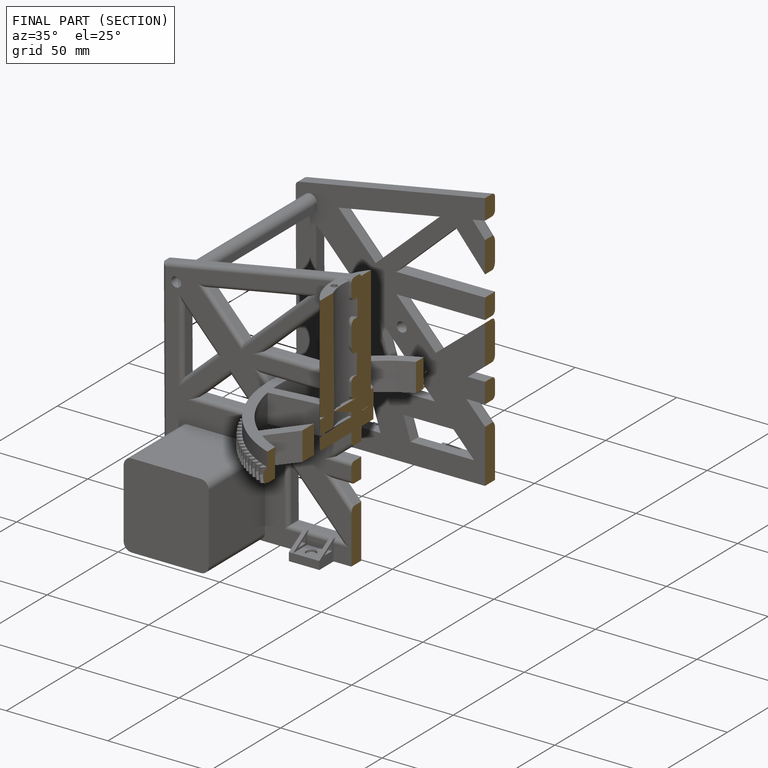
[diagram: finished part — half-section view (interior)]
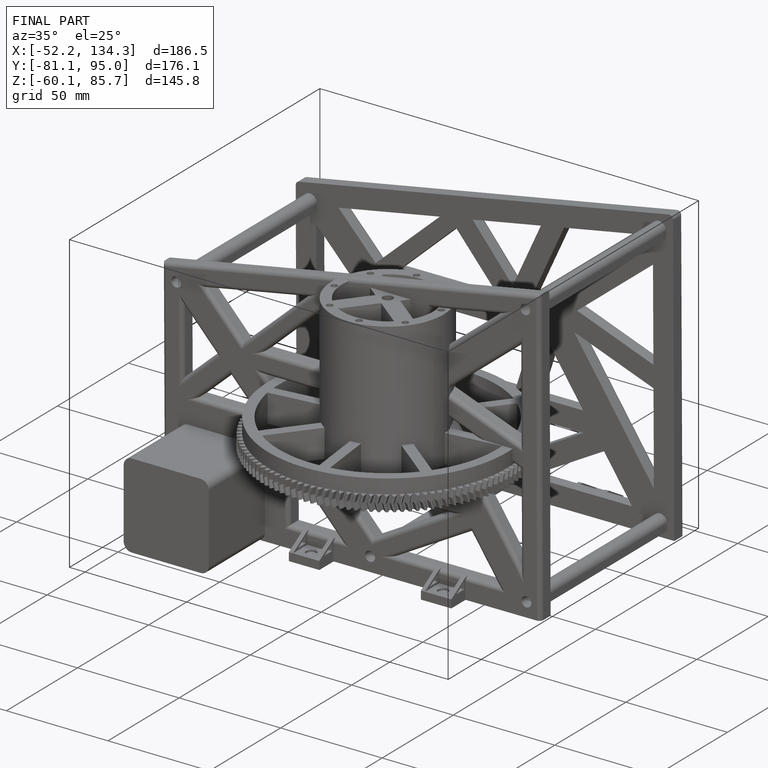
[diagram: finished part — iso view with bounding-box wireframe]
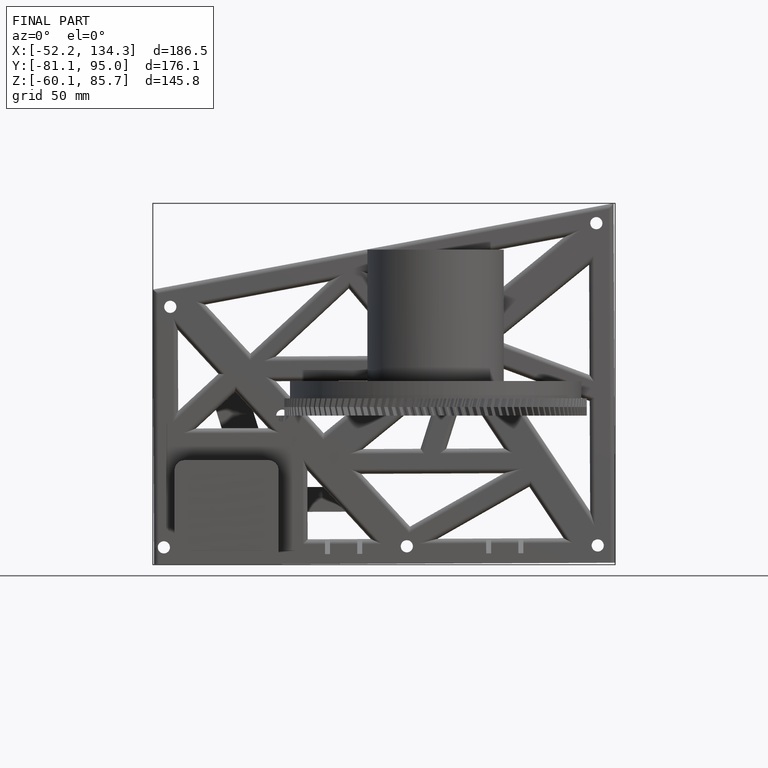
[diagram: finished part — front view with bounding-box wireframe]
